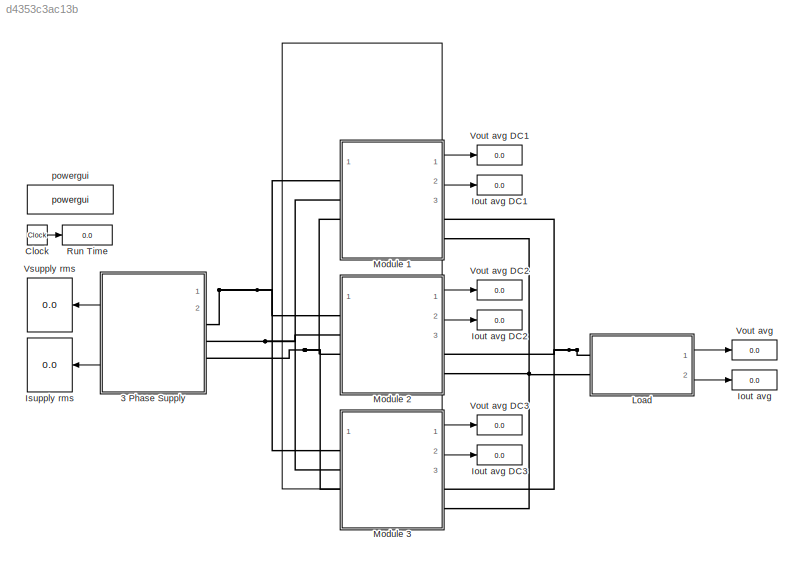
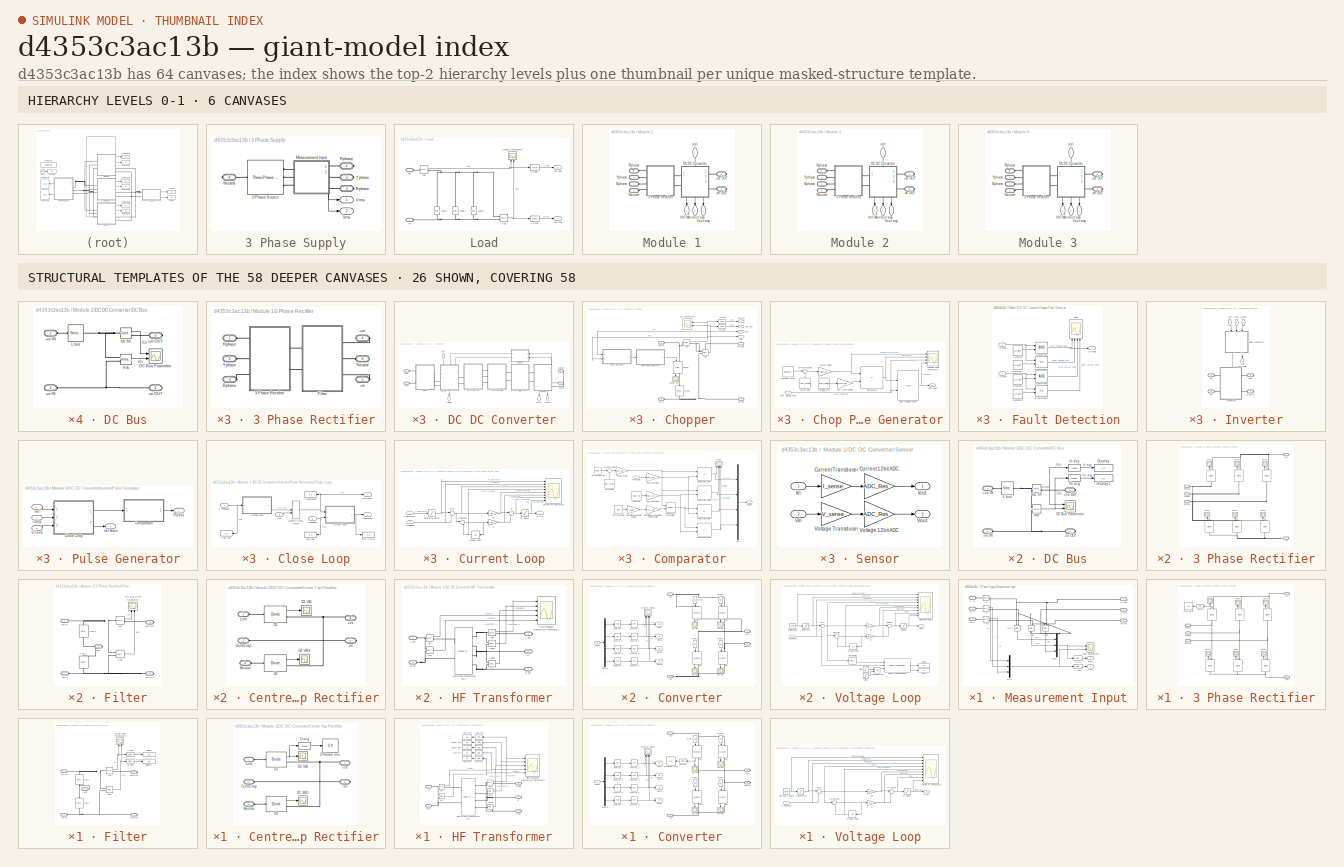
[diagram: thumbnail index - top-2 hierarchy levels (6 canvases) + 26 structural-template representatives of the remaining 58 canvases]
MODEL slx_d4353c3ac13b
KIND model
CONFIG AbsTol = auto
CONFIG EnableMultiTasking = off
CONFIG FixedStep = auto
CONFIG InitFcn = %Supply\nV_supply = 415;\nf_supply = 50;\n\n%DC_Bus\nC_filt = 220e-6\nL_dc = 100e-6;\nC_out = 560e-3;\n\n%Transformer\nP_TX = 10e3;\nV_pri = 36;\nV_sec = 1;\nL_leak = 0;\nR_leak = 0;\nL_mag = inf;\nR_mag = inf;\n\n%Control\nf_sw = 15e3;\ntss_conv = 0.1;\nV_ref = 1480;\nKp_V = 1;\nKi_V = 0.001;\nI_ref = 2920;\nKp_I = 0.025;\nKi_I = 0.000001;\nPS_max = 180;\nCarr_offset = 1;\nCarr_scale = 0.5;\nDuty_scale = 0.01;\nDuty_fix = 50;\n...<+399ch>
CONFIG MaxStep = 1e-5
CONFIG MinStep = 1e-7
CONFIG RelTol = 1e-6
CONFIG SampleTimeConstraint = Unconstrained
CONFIG Solver = ode3
CONFIG SolverName = ode3
CONFIG StartTime = 0.0
CONFIG StopTime = 0.4
BLOCK [SubSystem] 3 Phase Supply
  NameLocation = top
  PortSchema = {"entries":[{"content":{"sides":[{"content":{"connectorIds":["Out1","Out2"]},"type":"ConnectorPlacement.EquallySpacedRectSide","uuid":"0ec2aa27-c625-4e75-9974-9a1c04d8f7d1"},{"content":{"connectorIds":["RConn1","RConn2","RConn3","RConn4"],"side":"RIGHT"},"type":"ConnectorPlacement.EquallySpacedRectSide","uuid":"47308d37-cd5f-48af-b8fb-0231d0d207f3"},{"content":{"connectorIds":[],"side":"TOP"},"typ...<+423ch>
  Ports = [0, 2, 0, 0, 0, 0, 4]
  RequestExecContextInheritance = off
BLOCK [Reference] 3 Phase Supply/3 Phase Source  REF=powerlib/Electrical
Sources/Three-Phase
Programmable
Voltage Source
  NameLocation = top
  Ports = [0, 0, 0, 0, 0, 1, 3]
  SourceBlock = powerlib/Electrical\nSources/Three-Phase\nProgrammable\nVoltage Source
  SourceProductBaseCode = PS
  SourceType = Three-Phase Programmable Voltage Source
BLOCK [PMIOPort] 3 Phase Supply/Bphase
  NameLocation = right
  Port = 3
  Side = Right
BLOCK [Outport] 3 Phase Supply/Irms
  NameLocation = right
  Port = 2
BLOCK [SubSystem] 3 Phase Supply/Measurement Input
  NameLocation = top
  PortSchema = {"entries":[{"content":{"sides":[{"content":{"connectorIds":["LConn1","LConn2","LConn3"]},"type":"ConnectorPlacement.EquallySpacedRectSide","uuid":"3be9e5d9-1b35-404b-9f43-9e3a478b191c"},{"content":{"connectorIds":["RConn1","RConn2","RConn3"],"side":"RIGHT"},"type":"ConnectorPlacement.EquallySpacedRectSide","uuid":"eba31e05-cbe5-4e3c-a514-94f682603724"},{"content":{"connectorIds":[],"side":"TOP"},...<+440ch>
  Ports = [0, 2, 0, 0, 0, 3, 3]
  RequestExecContextInheritance = off
BLOCK [Reference] 3 Phase Supply/Measurement Input/I B  REF=powerlib/Measurements/Current Measurement
  Ports = [0, 1, 0, 0, 0, 1, 1]
  SourceBlock = powerlib/Measurements/Current Measurement
  SourceProductBaseCode = PS
  SourceType = Current Measurement
  UserDataPersistent = on
BLOCK [Reference] 3 Phase Supply/Measurement Input/I R  REF=powerlib/Measurements/Current Measurement
  Ports = [0, 1, 0, 0, 0, 1, 1]
  SourceBlock = powerlib/Measurements/Current Measurement
  SourceProductBaseCode = PS
  SourceType = Current Measurement
  UserDataPersistent = on
BLOCK [Reference] 3 Phase Supply/Measurement Input/I Y  REF=powerlib/Measurements/Current Measurement
  Ports = [0, 1, 0, 0, 0, 1, 1]
  SourceBlock = powerlib/Measurements/Current Measurement
  SourceProductBaseCode = PS
  SourceType = Current Measurement
  UserDataPersistent = on
BLOCK [Reference] 3 Phase Supply/Measurement Input/I rms  REF=powerlib_meascontrol/Measurements/RMS
  Ports = [1, 1]
  SourceBlock = powerlib_meascontrol/Measurements/RMS
  SourceProductBaseCode = PS
  SourceType = RMS
BLOCK [Scope] 3 Phase Supply/Measurement Input/Input Parameters
  Floating = off
  NameLocation = top
  NumInputPorts = 2
  Ports = [2]
  ScopeSpecificationString = Simulink.scopes.TimeScopeBlockCfg('CurrentConfiguration', extmgr.ConfigurationSet(extmgr.Configuration('Core','General UI',true),extmgr.Configuration('Core','Source UI',true),extmgr.Configuration('Sources','WiredSimulink',true,'DataLoggingVariableName','Supply','DataLogging',true,'DataLoggingSaveFormat','StructureWithTime'),extmgr.Configuration('Visuals','Time Domain',true,'SerializedDisplays',{st...<+2935ch>
BLOCK [Outport] 3 Phase Supply/Measurement Input/Irms
BLOCK [Mux] 3 Phase Supply/Measurement Input/Mux1
  DisplayOption = bar
  Inputs = 3
  Ports = [3, 1]
BLOCK [Mux] 3 Phase Supply/Measurement Input/Mux2
  DisplayOption = bar
  Inputs = 3
  Ports = [3, 1]
BLOCK [Reference] 3 Phase Supply/Measurement Input/V BR  REF=powerlib/Measurements/Voltage Measurement
  NameLocation = left
  Ports = [0, 1, 0, 0, 0, 2]
  SourceBlock = powerlib/Measurements/Voltage Measurement
  SourceProductBaseCode = PS
  SourceType = Voltage Measurement
  UserDataPersistent = on
BLOCK [Reference] 3 Phase Supply/Measurement Input/V RY  REF=powerlib/Measurements/Voltage Measurement
  NameLocation = left
  Ports = [0, 1, 0, 0, 0, 2]
  SourceBlock = powerlib/Measurements/Voltage Measurement
  SourceProductBaseCode = PS
  SourceType = Voltage Measurement
  UserDataPersistent = on
BLOCK [Reference] 3 Phase Supply/Measurement Input/V YB  REF=powerlib/Measurements/Voltage Measurement
  NameLocation = left
  Ports = [0, 1, 0, 0, 0, 2]
  SourceBlock = powerlib/Measurements/Voltage Measurement
  SourceProductBaseCode = PS
  SourceType = Voltage Measurement
  UserDataPersistent = on
BLOCK [Reference] 3 Phase Supply/Measurement Input/V rms  REF=powerlib_meascontrol/Measurements/RMS
  NameLocation = top
  Ports = [1, 1]
  SourceBlock = powerlib_meascontrol/Measurements/RMS
  SourceProductBaseCode = PS
  SourceType = RMS
BLOCK [PMIOPort] 3 Phase Supply/Measurement Input/Vb In
  Port = 3
  Side = Left
BLOCK [PMIOPort] 3 Phase Supply/Measurement Input/Vb Out
  Port = 6
  Side = Right
BLOCK [PMIOPort] 3 Phase Supply/Measurement Input/Vr In
  Side = Left
BLOCK [PMIOPort] 3 Phase Supply/Measurement Input/Vr Out
  Port = 4
  Side = Right
BLOCK [Outport] 3 Phase Supply/Measurement Input/Vrms
  Port = 2
BLOCK [PMIOPort] 3 Phase Supply/Measurement Input/Vy In
  Port = 2
  Side = Left
BLOCK [PMIOPort] 3 Phase Supply/Measurement Input/Vy Out
  Port = 5
  Side = Right
BLOCK [PMIOPort] 3 Phase Supply/Neutral
  Port = 4
  Side = Right
BLOCK [PMIOPort] 3 Phase Supply/Rphase
  NameLocation = right
  Side = Right
BLOCK [Outport] 3 Phase Supply/Vrms
  NameLocation = right
BLOCK [PMIOPort] 3 Phase Supply/Yphase
  NameLocation = right
  Port = 2
  Side = Right
BLOCK [Clock] Clock
BLOCK [Display] Iout avg
  Decimation = 1
  Ports = [1]
BLOCK [Display] Iout avg DC1
  Decimation = 1
  Ports = [1]
BLOCK [Display] Iout avg DC2
  Decimation = 1
  Ports = [1]
BLOCK [Display] Iout avg DC3
  Decimation = 1
  Ports = [1]
BLOCK [Display] Isupply rms
  Decimation = 1
  Ports = [1]
BLOCK [SubSystem] Load
  NameLocation = top
  Ports = [0, 2, 0, 0, 0, 2]
  RequestExecContextInheritance = off
BLOCK [PMIOPort] Load/+ve
  Side = Left
BLOCK [PMIOPort] Load/-ve
  Port = 2
  Side = Left
BLOCK [Reference] Load/Io avg  REF=powerlib_meascontrol/Measurements/Mean
  NameLocation = top
  Ports = [1, 1]
  SourceBlock = powerlib_meascontrol/Measurements/Mean
  SourceProductBaseCode = PS
  SourceType = Mean
BLOCK [Reference] Load/Iout  REF=powerlib/Measurements/Current Measurement
  NameLocation = top
  Ports = [0, 1, 0, 0, 0, 1, 1]
  SourceBlock = powerlib/Measurements/Current Measurement
  SourceProductBaseCode = PS
  SourceType = Current Measurement
  UserDataPersistent = on
BLOCK [Outport] Load/Iout avg
  Port = 2
BLOCK [Reference] Load/Load 1  REF=powerlib/Elements/Series RLC Branch
  NameLocation = right
  Ports = [0, 0, 0, 0, 0, 1, 1]
  SourceBlock = powerlib/Elements/Series RLC Branch
  SourceProductBaseCode = PS
  SourceType = Series RLC Branch
BLOCK [Reference] Load/Load 2  REF=powerlib/Elements/Series RLC Branch
  NameLocation = right
  Ports = [0, 0, 0, 0, 0, 1, 1]
  SourceBlock = powerlib/Elements/Series RLC Branch
  SourceProductBaseCode = PS
  SourceType = Series RLC Branch
BLOCK [Reference] Load/Load 3  REF=powerlib/Elements/Series RLC Branch
  NameLocation = right
  Ports = [0, 0, 0, 0, 0, 1, 1]
  SourceBlock = powerlib/Elements/Series RLC Branch
  SourceProductBaseCode = PS
  SourceType = Series RLC Branch
BLOCK [Scope] Load/Output Parameters
  Floating = off
  NameLocation = top
  NumInputPorts = 2
  Ports = [2]
  ScopeSpecificationString = Simulink.scopes.TimeScopeBlockCfg('CurrentConfiguration', extmgr.ConfigurationSet(extmgr.Configuration('Core','General UI',true),extmgr.Configuration('Core','Source UI',true),extmgr.Configuration('Sources','WiredSimulink',true,'DataLoggingVariableName','ScopeData1','DataLoggingSaveFormat','StructureWithTime'),extmgr.Configuration('Visuals','Time Domain',true,'SerializedDisplays',{struct('MinYLimRe...<+2388ch>
BLOCK [Reference] Load/Vo avg  REF=powerlib_meascontrol/Measurements/Mean
  NameLocation = top
  Ports = [1, 1]
  SourceBlock = powerlib_meascontrol/Measurements/Mean
  SourceProductBaseCode = PS
  SourceType = Mean
BLOCK [Reference] Load/Vout  REF=powerlib/Measurements/Voltage Measurement
  Ports = [0, 1, 0, 0, 0, 2]
  SourceBlock = powerlib/Measurements/Voltage Measurement
  SourceProductBaseCode = PS
  SourceType = Voltage Measurement
  UserDataPersistent = on
BLOCK [Outport] Load/Vout avg
BLOCK [SubSystem] Module 1
  NameLocation = top
  PortSchema = {"entries":[{"content":{"sides":[{"content":{"connectorIds":["LConn1","LConn2","LConn3","LConn4"]},"type":"ConnectorPlacement.EquallySpacedRectSide","uuid":"6cae0e2c-353b-4935-ad30-0e7f8192a6e9"},{"content":{"connectorIds":["Out1","Out2","RConn1","RConn2"],"side":"RIGHT"},"type":"ConnectorPlacement.EquallySpacedRectSide","uuid":"f189d0b5-f9e6-4211-8a45-ed2746b7bcfd"},{"content":{"connectorIds":["I...<+452ch>  <repeated x3 — deduplicated; at blocks: Module 1, Module 2, Module 3>
  Ports = [1, 3, 0, 0, 0, 4, 2]
  RequestExecContextInheritance = off
BLOCK [PMIOPort] Module 1/+ve OUT
  NameLocation = right
  Port = 4
  Side = Right
BLOCK [PMIOPort] Module 1/-ve OUT
  NameLocation = right
  Port = 5
  Side = Right
BLOCK [SubSystem] Module 1/3 Phase Rectifier
  NameLocation = top
  Ports = [0, 0, 0, 0, 0, 4, 2]
  RequestExecContextInheritance = off
BLOCK [PMIOPort] Module 1/3 Phase Rectifier/+ve
  Port = 4
  Side = Right
BLOCK [PMIOPort] Module 1/3 Phase Rectifier/-ve
  Port = 5
  Side = Right
BLOCK [SubSystem] Module 1/3 Phase Rectifier/3 Phase Rectifier
  NameLocation = top
  Ports = [0, 0, 0, 0, 0, 3, 2]
  RequestExecContextInheritance = off
BLOCK [PMIOPort] Module 1/3 Phase Rectifier/3 Phase Rectifier/+ve
  Port = 4
  Side = Right
BLOCK [PMIOPort] Module 1/3 Phase Rectifier/3 Phase Rectifier/-ve
  Port = 5
  Side = Right
BLOCK [PMIOPort] Module 1/3 Phase Rectifier/3 Phase Rectifier/B Phase
  Port = 3
  Side = Left
BLOCK [Reference] Module 1/3 Phase Rectifier/3 Phase Rectifier/D1  REF=powerlib/Power
Electronics/Diode
  NameLocation = right
  Ports = [0, 1, 0, 0, 0, 1, 1]
  SourceBlock = powerlib/Power\nElectronics/Diode
  SourceProductBaseCode = PS
  SourceType = Diode
BLOCK [Display] Module 1/3 Phase Rectifier/3 Phase Rectifier/D1 Param rms
  Decimation = 1
  NameLocation = top
  Ports = [1]
BLOCK [Scope] Module 1/3 Phase Rectifier/3 Phase Rectifier/D1 V&I
  Floating = off
  NameLocation = top
  NumInputPorts = 1
  Ports = [1]
  ScopeSpecificationString = Simulink.scopes.TimeScopeBlockCfg('CurrentConfiguration', extmgr.ConfigurationSet(extmgr.Configuration('Core','General UI',true),extmgr.Configuration('Core','Source UI',true),extmgr.Configuration('Sources','WiredSimulink',true,'DataLoggingVariableName','ScopeData7'),extmgr.Configuration('Visuals','Time Domain',true,'SerializedDisplays',{struct('MinYLimReal','-661.13918','MaxYLimReal','89.39128','Y...<+1406ch>  <repeated x3 — deduplicated; at blocks: D1 V&I>
BLOCK [Reference] Module 1/3 Phase Rectifier/3 Phase Rectifier/D1 rms  REF=powerlib_meascontrol/Measurements/RMS
  NameLocation = top
  Ports = [1, 1]
  SourceBlock = powerlib_meascontrol/Measurements/RMS
  SourceProductBaseCode = PS
  SourceType = RMS
BLOCK [Reference] Module 1/3 Phase Rectifier/3 Phase Rectifier/D2  REF=powerlib/Power
Electronics/Diode
  NameLocation = right
  Ports = [0, 1, 0, 0, 0, 1, 1]
  SourceBlock = powerlib/Power\nElectronics/Diode
  SourceProductBaseCode = PS
  SourceType = Diode
BLOCK [Scope] Module 1/3 Phase Rectifier/3 Phase Rectifier/D2 V&I
  Commented = on
  Floating = off
  NameLocation = top
  NumInputPorts = 1
  Ports = [1]
  ScopeSpecificationString = Simulink.scopes.TimeScopeBlockCfg('CurrentConfiguration', extmgr.ConfigurationSet(extmgr.Configuration('Core','General UI',true),extmgr.Configuration('Core','Source UI',true),extmgr.Configuration('Sources','WiredSimulink',true,'DataLoggingVariableName','ScopeData8'),extmgr.Configuration('Visuals','Time Domain',true,'SerializedDisplays',{struct('MinYLimReal','-661.15129','MaxYLimReal','89.39264','Y...<+1406ch>  <repeated x3 — deduplicated; at blocks: D2 V&I>
BLOCK [Reference] Module 1/3 Phase Rectifier/3 Phase Rectifier/D3  REF=powerlib/Power
Electronics/Diode
  NameLocation = right
  Ports = [0, 1, 0, 0, 0, 1, 1]
  SourceBlock = powerlib/Power\nElectronics/Diode
  SourceProductBaseCode = PS
  SourceType = Diode
BLOCK [Scope] Module 1/3 Phase Rectifier/3 Phase Rectifier/D3 V&I
  Commented = on
  Floating = off
  NameLocation = top
  NumInputPorts = 1
  Ports = [1]
  ScopeSpecificationString = Simulink.scopes.TimeScopeBlockCfg('CurrentConfiguration', extmgr.ConfigurationSet(extmgr.Configuration('Core','General UI',true),extmgr.Configuration('Core','Source UI',true),extmgr.Configuration('Sources','WiredSimulink',true,'DataLoggingVariableName','ScopeData9'),extmgr.Configuration('Visuals','Time Domain',true,'SerializedDisplays',{struct('MinYLimReal','-661.1513','MaxYLimReal','89.39265','YL...<+1402ch>  <repeated x3 — deduplicated; at blocks: D3 V&I>
BLOCK [Reference] Module 1/3 Phase Rectifier/3 Phase Rectifier/D4  REF=powerlib/Power
Electronics/Diode
  NameLocation = right
  Ports = [0, 1, 0, 0, 0, 1, 1]
  SourceBlock = powerlib/Power\nElectronics/Diode
  SourceProductBaseCode = PS
  SourceType = Diode
BLOCK [Scope] Module 1/3 Phase Rectifier/3 Phase Rectifier/D4 V&I
  Commented = on
  Floating = off
  NameLocation = top
  NumInputPorts = 1
  Ports = [1]
  ScopeSpecificationString = Simulink.scopes.TimeScopeBlockCfg('CurrentConfiguration', extmgr.ConfigurationSet(extmgr.Configuration('Core','General UI',true),extmgr.Configuration('Core','Source UI',true),extmgr.Configuration('Sources','WiredSimulink',true,'DataLoggingVariableName','ScopeData10'),extmgr.Configuration('Visuals','Time Domain',true),extmgr.Configuration('Tools','Plot Navigation',true),extmgr.Configuration('Tools'...<+41ch>  <repeated x3 — deduplicated; at blocks: D4 V&I>
BLOCK [Reference] Module 1/3 Phase Rectifier/3 Phase Rectifier/D5  REF=powerlib/Power
Electronics/Diode
  NameLocation = right
  Ports = [0, 1, 0, 0, 0, 1, 1]
  SourceBlock = powerlib/Power\nElectronics/Diode
  SourceProductBaseCode = PS
  SourceType = Diode
BLOCK [Scope] Module 1/3 Phase Rectifier/3 Phase Rectifier/D5 V&I
  Commented = on
  Floating = off
  NameLocation = top
  NumInputPorts = 1
  Ports = [1]
  ScopeSpecificationString = Simulink.scopes.TimeScopeBlockCfg('CurrentConfiguration', extmgr.ConfigurationSet(extmgr.Configuration('Core','General UI',true),extmgr.Configuration('Core','Source UI',true),extmgr.Configuration('Sources','WiredSimulink',true,'DataLoggingVariableName','ScopeData11'),extmgr.Configuration('Visuals','Time Domain',true,'SerializedDisplays',{struct('MinYLimReal','-661.13866','MaxYLimReal','89.39123','...<+1407ch>  <repeated x3 — deduplicated; at blocks: D5 V&I>
BLOCK [Reference] Module 1/3 Phase Rectifier/3 Phase Rectifier/D6  REF=powerlib/Power
Electronics/Diode
  NameLocation = right
  Ports = [0, 1, 0, 0, 0, 1, 1]
  SourceBlock = powerlib/Power\nElectronics/Diode
  SourceProductBaseCode = PS
  SourceType = Diode
BLOCK [Scope] Module 1/3 Phase Rectifier/3 Phase Rectifier/D6 V&I
  Commented = on
  Floating = off
  NameLocation = top
  NumInputPorts = 1
  Ports = [1]
  ScopeSpecificationString = Simulink.scopes.TimeScopeBlockCfg('CurrentConfiguration', extmgr.ConfigurationSet(extmgr.Configuration('Core','General UI',true),extmgr.Configuration('Core','Source UI',true),extmgr.Configuration('Sources','WiredSimulink',true,'DataLoggingVariableName','ScopeData12'),extmgr.Configuration('Visuals','Time Domain',true),extmgr.Configuration('Tools','Plot Navigation',true),extmgr.Configuration('Tools'...<+41ch>  <repeated x3 — deduplicated; at blocks: D6 V&I>
BLOCK [PMIOPort] Module 1/3 Phase Rectifier/3 Phase Rectifier/R Phase
  Side = Left
BLOCK [PMIOPort] Module 1/3 Phase Rectifier/3 Phase Rectifier/Y Phase
  Port = 2
  Side = Left
BLOCK [PMIOPort] Module 1/3 Phase Rectifier/Bphase
  Port = 3
  Side = Left
BLOCK [SubSystem] Module 1/3 Phase Rectifier/Filter
  NameLocation = top
  Ports = [0, 0, 0, 0, 0, 2, 3]
  RequestExecContextInheritance = off
BLOCK [PMIOPort] Module 1/3 Phase Rectifier/Filter/+ve IN
  Side = Left
BLOCK [PMIOPort] Module 1/3 Phase Rectifier/Filter/+ve OUT
  Port = 3
  Side = Right
BLOCK [PMIOPort] Module 1/3 Phase Rectifier/Filter/-ve In
  Port = 2
  Side = Left
BLOCK [PMIOPort] Module 1/3 Phase Rectifier/Filter/-ve OUT
  Port = 5
  Side = Right
BLOCK [Reference] Module 1/3 Phase Rectifier/Filter/Cdc 1  REF=powerlib/Elements/Series RLC Branch
  NameLocation = left
  Ports = [0, 0, 0, 0, 0, 1, 1]
  SourceBlock = powerlib/Elements/Series RLC Branch
  SourceProductBaseCode = PS
  SourceType = Series RLC Branch
BLOCK [Reference] Module 1/3 Phase Rectifier/Filter/Cdc 2  REF=powerlib/Elements/Series RLC Branch
  NameLocation = left
  Ports = [0, 0, 0, 0, 0, 1, 1]
  SourceBlock = powerlib/Elements/Series RLC Branch
  SourceProductBaseCode = PS
  SourceType = Series RLC Branch
BLOCK [Scope] Module 1/3 Phase Rectifier/Filter/DC Bus Filter Parameters
  Floating = off
  NameLocation = top
  NumInputPorts = 2
  Ports = [2]
  ScopeSpecificationString = Simulink.scopes.TimeScopeBlockCfg('CurrentConfiguration', extmgr.ConfigurationSet(extmgr.Configuration('Core','General UI',true),extmgr.Configuration('Core','Source UI',true),extmgr.Configuration('Sources','WiredSimulink',true,'DataLoggingVariableName','Output','DataLoggingSaveFormat','StructureWithTime'),extmgr.Configuration('Visuals','Time Domain',true,'SerializedDisplays',{struct('MinYLimReal',...<+2440ch>
BLOCK [Display] Module 1/3 Phase Rectifier/Filter/Display
  Decimation = 1
  NameLocation = top
  Ports = [1]
BLOCK [Display] Module 1/3 Phase Rectifier/Filter/Display1
  Decimation = 1
  Ports = [1]
BLOCK [Reference] Module 1/3 Phase Rectifier/Filter/Io avg  REF=powerlib_meascontrol/Measurements/Mean
  NameLocation = top
  Ports = [1, 1]
  SourceBlock = powerlib_meascontrol/Measurements/Mean
  SourceProductBaseCode = PS
  SourceType = Mean
BLOCK [Reference] Module 1/3 Phase Rectifier/Filter/Iout  REF=powerlib/Measurements/Current Measurement
  Ports = [0, 1, 0, 0, 0, 1, 1]
  SourceBlock = powerlib/Measurements/Current Measurement
  SourceProductBaseCode = PS
  SourceType = Current Measurement
  UserDataPersistent = on
BLOCK [PMIOPort] Module 1/3 Phase Rectifier/Filter/Mid
  Port = 4
  Side = Right
BLOCK [Reference] Module 1/3 Phase Rectifier/Filter/Vo avg  REF=powerlib_meascontrol/Measurements/Mean
  Ports = [1, 1]
  SourceBlock = powerlib_meascontrol/Measurements/Mean
  SourceProductBaseCode = PS
  SourceType = Mean
BLOCK [Reference] Module 1/3 Phase Rectifier/Filter/Vout  REF=powerlib/Measurements/Voltage Measurement
  Ports = [0, 1, 0, 0, 0, 2]
  SourceBlock = powerlib/Measurements/Voltage Measurement
  SourceProductBaseCode = PS
  SourceType = Voltage Measurement
  UserDataPersistent = on
BLOCK [PMIOPort] Module 1/3 Phase Rectifier/Neutral
  Port = 6
  Side = Left
BLOCK [PMIOPort] Module 1/3 Phase Rectifier/Rphase
  Side = Left
BLOCK [PMIOPort] Module 1/3 Phase Rectifier/Yphase
  Port = 2
  Side = Left
BLOCK [PMIOPort] Module 1/Bphase
  NameLocation = left
  Port = 3
  Side = Left
BLOCK [SubSystem] Module 1/DC DC Converter
  NameLocation = top
  PortSchema = {"entries":[{"content":{"sides":[{"content":{"connectorIds":["LConn1","LConn2"]},"type":"ConnectorPlacement.EquallySpacedRectSide","uuid":"37f51f67-5e78-4255-afaf-84866755c3fb"},{"content":{"connectorIds":["RConn1","RConn2"],"side":"RIGHT"},"type":"ConnectorPlacement.EquallySpacedRectSide","uuid":"2b53282d-d294-4b9e-9ae3-da15b818eb82"},{"content":{"connectorIds":["In1"],"side":"TOP"},"type":"Conne...<+434ch>  <repeated x3 — deduplicated; at blocks: DC DC Converter>
  Ports = [1, 3, 0, 0, 0, 2, 2]
  RequestExecContextInheritance = off
BLOCK [PMIOPort] Module 1/DC DC Converter/+ve IN
  NameLocation = top
  Side = Left
BLOCK [PMIOPort] Module 1/DC DC Converter/+ve OUT
  NameLocation = top
  Port = 3
  Side = Right
BLOCK [PMIOPort] Module 1/DC DC Converter/-ve IN
  NameLocation = top
  Port = 2
  Side = Left
BLOCK [PMIOPort] Module 1/DC DC Converter/-ve OUT
  NameLocation = top
  Port = 4
  Side = Right
BLOCK [SubSystem] Module 1/DC DC Converter/Centre Tap Rectifier
  Ports = [0, 0, 0, 0, 0, 3, 2]
  RequestExecContextInheritance = off
BLOCK [PMIOPort] Module 1/DC DC Converter/Centre Tap Rectifier/+ve
  Port = 4
  Side = Right
BLOCK [PMIOPort] Module 1/DC DC Converter/Centre Tap Rectifier/-ve
  Port = 5
  Side = Right
BLOCK [PMIOPort] Module 1/DC DC Converter/Centre Tap Rectifier/Centre-tap
  Port = 2
  Side = Left
BLOCK [Display] Module 1/DC DC Converter/Centre Tap Rectifier/D Param rms
  Decimation = 1
  NameLocation = top
  Ports = [1]
BLOCK [Reference] Module 1/DC DC Converter/Centre Tap Rectifier/D avg  REF=powerlib_meascontrol/Measurements/Mean
  NameLocation = top
  Ports = [1, 1]
  SourceBlock = powerlib_meascontrol/Measurements/Mean
  SourceProductBaseCode = PS
  SourceType = Mean
BLOCK [Reference] Module 1/DC DC Converter/Centre Tap Rectifier/D1  REF=powerlib/Power
Electronics/Diode
  Ports = [0, 1, 0, 0, 0, 1, 1]
  SourceBlock = powerlib/Power\nElectronics/Diode
  SourceProductBaseCode = PS
  SourceType = Diode
BLOCK [Scope] Module 1/DC DC Converter/Centre Tap Rectifier/D1 V&I
  Floating = off
  NameLocation = right
  NumInputPorts = 1
  Ports = [1]
  ScopeSpecificationString = Simulink.scopes.TimeScopeBlockCfg('CurrentConfiguration', extmgr.ConfigurationSet(extmgr.Configuration('Core','General UI',true),extmgr.Configuration('Core','Source UI',true),extmgr.Configuration('Sources','WiredSimulink',true,'DataLoggingVariableName','ScopeData5'),extmgr.Configuration('Visuals','Time Domain',true,'SerializedDisplays',{struct('MinYLimReal','-273.94697','MaxYLimReal','372.07361','...<+1414ch>  <repeated x3 — deduplicated; at blocks: D1 V&I>
BLOCK [Reference] Module 1/DC DC Converter/Centre Tap Rectifier/D2  REF=powerlib/Power
Electronics/Diode
  Ports = [0, 1, 0, 0, 0, 1, 1]
  SourceBlock = powerlib/Power\nElectronics/Diode
  SourceProductBaseCode = PS
  SourceType = Diode
BLOCK [Scope] Module 1/DC DC Converter/Centre Tap Rectifier/D2 V&I1
  Commented = on
  Floating = off
  NameLocation = right
  NumInputPorts = 1
  Ports = [1]
  ScopeSpecificationString = Simulink.scopes.TimeScopeBlockCfg('CurrentConfiguration', extmgr.ConfigurationSet(extmgr.Configuration('Core','General UI',true),extmgr.Configuration('Core','Source UI',true),extmgr.Configuration('Sources','WiredSimulink',true,'DataLoggingVariableName','ScopeData6'),extmgr.Configuration('Visuals','Time Domain',true,'SerializedDisplays',{struct('MinYLimReal','-273.94659','MaxYLimReal','372.07421','...<+1416ch>  <repeated x3 — deduplicated; at blocks: D2 V&I1>
BLOCK [PMIOPort] Module 1/DC DC Converter/Centre Tap Rectifier/Line
  Side = Left
BLOCK [PMIOPort] Module 1/DC DC Converter/Centre Tap Rectifier/Neutral
  Port = 3
  Side = Left
BLOCK [SubSystem] Module 1/DC DC Converter/Chopper
  PortSchema = {"entries":[{"content":{"sides":[{"content":{"connectorIds":["LConn1","LConn2"]},"type":"ConnectorPlacement.EquallySpacedRectSide","uuid":"27b0ffc8-d442-4d0b-b35b-d90ae246715a"},{"content":{"connectorIds":["RConn1","RConn2"],"side":"RIGHT"},"type":"ConnectorPlacement.EquallySpacedRectSide","uuid":"032ddb76-2114-4733-a261-6d5dce4f9c1e"},{"content":{"connectorIds":["Out3","Out4"],"side":"TOP"},"type...<+435ch>  <repeated x3 — deduplicated; at blocks: Chopper>
  Ports = [0, 4, 0, 0, 0, 2, 2]
  RequestExecContextInheritance = off
BLOCK [Outport] Module 1/DC DC Converter/Chopper/ Idc
  NameLocation = right
  Port = 4
BLOCK [PMIOPort] Module 1/DC DC Converter/Chopper/+ve IN
  Side = Left
BLOCK [PMIOPort] Module 1/DC DC Converter/Chopper/+ve OUT
  NameLocation = top
  Port = 3
  Side = Right
BLOCK [PMIOPort] Module 1/DC DC Converter/Chopper/-ve IN
  Port = 2
  Side = Left
BLOCK [PMIOPort] Module 1/DC DC Converter/Chopper/-ve OUT
  NameLocation = top
  Port = 4
  Side = Right
BLOCK [SubSystem] Module 1/DC DC Converter/Chopper/Chop Pulse Generator
  Ports = [1, 1]
  RequestExecContextInheritance = off
BLOCK [Constant] Module 1/DC DC Converter/Chopper/Chop Pulse Generator/Carrier Bias
  Value = Carr_offset
BLOCK [Gain] Module 1/DC DC Converter/Chopper/Chop Pulse Generator/Carrier Scaling
  Gain = Carr_scale
  NameLocation = top
BLOCK [Outport] Module 1/DC DC Converter/Chopper/Chop Pulse Generator/Chop Pulse
  NameLocation = top
BLOCK [Reference] Module 1/DC DC Converter/Chopper/Chop Pulse Generator/Chopping Carrier  REF=powerlib_meascontrol/Pulse & Signal
Generators/Sawtooth
Generator
  NameLocation = top
  Ports = [0, 1]
  SourceBlock = powerlib_meascontrol/Pulse & Signal\nGenerators/Sawtooth\nGenerator
  SourceProductBaseCode = PS
  SourceType = Sawtooth Generator
BLOCK [Constant] Module 1/DC DC Converter/Chopper/Chop Pulse Generator/Chopping Duty Cycle
  Value = Duty_chop
BLOCK [Scope] Module 1/DC DC Converter/Chopper/Chop Pulse Generator/Chopping Pulse Parameters
  Commented = on
  Floating = off
  NameLocation = top
  NumInputPorts = 4
  Ports = [4]
  ScopeSpecificationString = Simulink.scopes.TimeScopeBlockCfg('CurrentConfiguration', extmgr.ConfigurationSet(extmgr.Configuration('Core','General UI',true),extmgr.Configuration('Core','Source UI',true),extmgr.Configuration('Sources','WiredSimulink',true,'DataLoggingVariableName','ScopeData4'),extmgr.Configuration('Visuals','Time Domain',true,'SerializedDisplays',{struct('MinYLimReal','-0.125','MaxYLimReal','1.125','YLabelRe...<+3444ch>  <repeated x3 — deduplicated; at blocks: Chopping Pulse Parameters>
BLOCK [RelationalOperator] Module 1/DC DC Converter/Chopper/Chop Pulse Generator/Comparator
  InputSameDT = off
  NameLocation = top
  Operator = <=
  OutDataTypeStr = boolean
  Ports = [2, 1]
  RndMeth = Simplest
BLOCK [Gain] Module 1/DC DC Converter/Chopper/Chop Pulse Generator/Duty Cycle Scaling
  Gain = Duty_scale
BLOCK [Logic] Module 1/DC DC Converter/Chopper/Chop Pulse Generator/Fault Condition Check
  AllPortsSameDT = off
  IconShape = distinctive
  NameLocation = top
  OutDataTypeStr = boolean
  Ports = [2, 1]
BLOCK [Sum] Module 1/DC DC Converter/Chopper/Chop Pulse Generator/Level Correction
  Inputs = |++
  NameLocation = top
  Ports = [2, 1]
BLOCK [Inport] Module 1/DC DC Converter/Chopper/Chop Pulse Generator/Over Voltage Fault
  NameLocation = top
BLOCK [SubSystem] Module 1/DC DC Converter/Chopper/Fault Detection
  Ports = [2, 1]
  RequestExecContextInheritance = off
BLOCK [Constant] Module 1/DC DC Converter/Chopper/Fault Detection/Constant
  Value = OV_limit
BLOCK [Constant] Module 1/DC DC Converter/Chopper/Fault Detection/Constant1
  Value = UV_limit
BLOCK [Constant] Module 1/DC DC Converter/Chopper/Fault Detection/Constant2
  Value = OC_limit
BLOCK [Constant] Module 1/DC DC Converter/Chopper/Fault Detection/Constant3
  Value = UC_limit
BLOCK [Scope] Module 1/DC DC Converter/Chopper/Fault Detection/Faults
  Commented = on
  Floating = off
  NameLocation = top
  NumInputPorts = 4
  Ports = [4]
  ScopeSpecificationString = Simulink.scopes.TimeScopeBlockCfg('CurrentConfiguration', extmgr.ConfigurationSet(extmgr.Configuration('Core','General UI',true),extmgr.Configuration('Core','Source UI',true),extmgr.Configuration('Sources','WiredSimulink',true,'DataLoggingVariableName','ScopeData2'),extmgr.Configuration('Visuals','Time Domain',true,'SerializedDisplays',{struct('MinYLimReal','-1.00000','MaxYLimReal','1.00000','YLab...<+3662ch>  <repeated x3 — deduplicated; at blocks: Faults>
BLOCK [RelationalOperator] Module 1/DC DC Converter/Chopper/Fault Detection/GreaterThan
  InputSameDT = off
  OutDataTypeStr = boolean
  Ports = [2, 1]
  RndMeth = Simplest
BLOCK [RelationalOperator] Module 1/DC DC Converter/Chopper/Fault Detection/GreaterThan1
  InputSameDT = off
  Operator = <=
  OutDataTypeStr = boolean
  Ports = [2, 1]
  RndMeth = Simplest
BLOCK [RelationalOperator] Module 1/DC DC Converter/Chopper/Fault Detection/GreaterThan2
  InputSameDT = off
  OutDataTypeStr = boolean
  Ports = [2, 1]
  RndMeth = Simplest
BLOCK [RelationalOperator] Module 1/DC DC Converter/Chopper/Fault Detection/GreaterThan3
  InputSameDT = off
  Operator = <=
  OutDataTypeStr = boolean
  Ports = [2, 1]
  RndMeth = Simplest
BLOCK [Inport] Module 1/DC DC Converter/Chopper/Fault Detection/I Output
  Port = 2
BLOCK [Outport] Module 1/DC DC Converter/Chopper/Fault Detection/OV Fault
BLOCK [Inport] Module 1/DC DC Converter/Chopper/Fault Detection/V Output
BLOCK [Outport] Module 1/DC DC Converter/Chopper/Idc avg
  NameLocation = right
BLOCK [Reference] Module 1/DC DC Converter/Chopper/Io avg  REF=powerlib_meascontrol/Measurements/Mean
  NameLocation = top
  Ports = [1, 1]
  SourceBlock = powerlib_meascontrol/Measurements/Mean
  SourceProductBaseCode = PS
  SourceType = Mean
BLOCK [Reference] Module 1/DC DC Converter/Chopper/Iout  REF=powerlib/Measurements/Current Measurement
  Ports = [0, 1, 0, 0, 0, 1, 1]
  SourceBlock = powerlib/Measurements/Current Measurement
  SourceProductBaseCode = PS
  SourceType = Current Measurement
  UserDataPersistent = on
BLOCK [Scope] Module 1/DC DC Converter/Chopper/Out Parameters
  Floating = off
  NameLocation = top
  NumInputPorts = 2
  Ports = [2]
  ScopeSpecificationString = Simulink.scopes.TimeScopeBlockCfg('CurrentConfiguration', extmgr.ConfigurationSet(extmgr.Configuration('Core','General UI',true),extmgr.Configuration('Core','Source UI',true),extmgr.Configuration('Sources','WiredSimulink',true,'DataLoggingVariableName','Output','DataLoggingSaveFormat','StructureWithTime'),extmgr.Configuration('Visuals','Time Domain',true,'SerializedDisplays',{struct('MinYLimReal',...<+2414ch>
BLOCK [Reference] Module 1/DC DC Converter/Chopper/Qchop  REF=powerlib/Power
Electronics/IGBT
  NameLocation = left
  Ports = [1, 1, 0, 0, 0, 1, 1]
  SourceBlock = powerlib/Power\nElectronics/IGBT
  SourceProductBaseCode = PS
  SourceType = IGBT
BLOCK [Scope] Module 1/DC DC Converter/Chopper/Qchop V&I
  Commented = on
  Floating = off
  NumInputPorts = 1
  Ports = [1]
  ScopeSpecificationString = Simulink.scopes.TimeScopeBlockCfg('CurrentConfiguration', extmgr.ConfigurationSet(extmgr.Configuration('Core','General UI',true),extmgr.Configuration('Core','Source UI',true),extmgr.Configuration('Sources','WiredSimulink',true,'DataLoggingVariableName','ScopeData3'),extmgr.Configuration('Visuals','Time Domain',true,'SerializedDisplays',{struct('MinYLimReal','-21.70339','MaxYLimReal','195.33055','Y...<+1510ch>  <repeated x3 — deduplicated; at blocks: Qchop V&I>
BLOCK [Reference] Module 1/DC DC Converter/Chopper/Rchop  REF=powerlib/Elements/Series RLC Branch
  NameLocation = left
  Ports = [0, 0, 0, 0, 0, 1, 1]
  SourceBlock = powerlib/Elements/Series RLC Branch
  SourceProductBaseCode = PS
  SourceType = Series RLC Branch
BLOCK [Outport] Module 1/DC DC Converter/Chopper/Vdc
  NameLocation = right
  Port = 3
BLOCK [Outport] Module 1/DC DC Converter/Chopper/Vdc avg
  NameLocation = right
  Port = 2
BLOCK [Reference] Module 1/DC DC Converter/Chopper/Vo avg  REF=powerlib_meascontrol/Measurements/Mean
  Ports = [1, 1]
  SourceBlock = powerlib_meascontrol/Measurements/Mean
  SourceProductBaseCode = PS
  SourceType = Mean
BLOCK [Reference] Module 1/DC DC Converter/Chopper/Vout  REF=powerlib/Measurements/Voltage Measurement
  Ports = [0, 1, 0, 0, 0, 2]
  SourceBlock = powerlib/Measurements/Voltage Measurement
  SourceProductBaseCode = PS
  SourceType = Voltage Measurement
  UserDataPersistent = on
BLOCK [SubSystem] Module 1/DC DC Converter/DC Bus
  Ports = [0, 0, 0, 0, 0, 2, 2]
  RequestExecContextInheritance = off
BLOCK [PMIOPort] Module 1/DC DC Converter/DC Bus/+ve IN
  Side = Left
BLOCK [PMIOPort] Module 1/DC DC Converter/DC Bus/+ve OUT
  Port = 3
  Side = Right
BLOCK [PMIOPort] Module 1/DC DC Converter/DC Bus/-ve IN
  Port = 2
  Side = Left
BLOCK [PMIOPort] Module 1/DC DC Converter/DC Bus/-ve OUT
  Port = 4
  Side = Right
BLOCK [Scope] Module 1/DC DC Converter/DC Bus/DC Bus Parameter
  Floating = off
  NumInputPorts = 2
  Ports = [2]
  ScopeSpecificationString = Simulink.scopes.TimeScopeBlockCfg('CurrentConfiguration', extmgr.ConfigurationSet(extmgr.Configuration('Core','General UI',true),extmgr.Configuration('Core','Source UI',true),extmgr.Configuration('Sources','WiredSimulink',true,'DataLoggingVariableName','ScopeData2'),extmgr.Configuration('Visuals','Time Domain',true,'SerializedDisplays',{struct('MinYLimReal','-463.93129','MaxYLimReal','4175.38441',...<+1532ch>  <repeated x3 — deduplicated; at blocks: DC Bus Parameter>
BLOCK [Display] Module 1/DC DC Converter/DC Bus/Display
  Decimation = 1
  NameLocation = top
  Ports = [1]
BLOCK [Display] Module 1/DC DC Converter/DC Bus/Display1
  Decimation = 1
  Ports = [1]
BLOCK [Reference] Module 1/DC DC Converter/DC Bus/Idc filt  REF=powerlib/Measurements/Current Measurement
  NameLocation = top
  Ports = [0, 1, 0, 0, 0, 1, 1]
  SourceBlock = powerlib/Measurements/Current Measurement
  SourceProductBaseCode = PS
  SourceType = Current Measurement
  UserDataPersistent = on
BLOCK [Reference] Module 1/DC DC Converter/DC Bus/Io avg  REF=powerlib_meascontrol/Measurements/Mean
  NameLocation = top
  Ports = [1, 1]
  SourceBlock = powerlib_meascontrol/Measurements/Mean
  SourceProductBaseCode = PS
  SourceType = Mean
BLOCK [Reference] Module 1/DC DC Converter/DC Bus/L bus  REF=powerlib/Elements/Series RLC Branch
  Ports = [0, 0, 0, 0, 0, 1, 1]
  SourceBlock = powerlib/Elements/Series RLC Branch
  SourceProductBaseCode = PS
  SourceType = Series RLC Branch
BLOCK [Reference] Module 1/DC DC Converter/DC Bus/Vdc  REF=powerlib/Measurements/Voltage Measurement
  Ports = [0, 1, 0, 0, 0, 2]
  SourceBlock = powerlib/Measurements/Voltage Measurement
  SourceProductBaseCode = PS
  SourceType = Voltage Measurement
  UserDataPersistent = on
BLOCK [Reference] Module 1/DC DC Converter/DC Bus/Vo avg  REF=powerlib_meascontrol/Measurements/Mean
  Ports = [1, 1]
  SourceBlock = powerlib_meascontrol/Measurements/Mean
  SourceProductBaseCode = PS
  SourceType = Mean
BLOCK [SubSystem] Module 1/DC DC Converter/Filter
  Ports = [0, 0, 0, 0, 0, 2, 2]
  RequestExecContextInheritance = off
BLOCK [PMIOPort] Module 1/DC DC Converter/Filter/+ve IN
  Side = Left
BLOCK [PMIOPort] Module 1/DC DC Converter/Filter/+ve OUT
  Port = 3
  Side = Right
BLOCK [PMIOPort] Module 1/DC DC Converter/Filter/-ve IN
  Port = 2
  Side = Left
BLOCK [PMIOPort] Module 1/DC DC Converter/Filter/-ve OUT
  Port = 4
  Side = Right
BLOCK [Reference] Module 1/DC DC Converter/Filter/C out  REF=powerlib/Elements/Series RLC Branch
  NameLocation = right
  Ports = [0, 0, 0, 0, 0, 1, 1]
  SourceBlock = powerlib/Elements/Series RLC Branch
  SourceProductBaseCode = PS
  SourceType = Series RLC Branch
BLOCK [Display] Module 1/DC DC Converter/Filter/Display
  Decimation = 1
  NameLocation = top
  Ports = [1]
BLOCK [Display] Module 1/DC DC Converter/Filter/Display1
  Decimation = 1
  Ports = [1]
BLOCK [Reference] Module 1/DC DC Converter/Filter/I C Filter  REF=powerlib/Measurements/Current Measurement
  NameLocation = left
  Ports = [0, 1, 0, 0, 0, 1, 1]
  SourceBlock = powerlib/Measurements/Current Measurement
  SourceProductBaseCode = PS
  SourceType = Current Measurement
  UserDataPersistent = on
BLOCK [Reference] Module 1/DC DC Converter/Filter/I out  REF=powerlib/Measurements/Current Measurement
  Ports = [0, 1, 0, 0, 0, 1, 1]
  SourceBlock = powerlib/Measurements/Current Measurement
  SourceProductBaseCode = PS
  SourceType = Current Measurement
  UserDataPersistent = on
BLOCK [Reference] Module 1/DC DC Converter/Filter/Io avg  REF=powerlib_meascontrol/Measurements/Mean
  Ports = [1, 1]
  SourceBlock = powerlib_meascontrol/Measurements/Mean
  SourceProductBaseCode = PS
  SourceType = Mean
BLOCK [Scope] Module 1/DC DC Converter/Filter/Output Filter Parameters
  Floating = off
  NumInputPorts = 2
  Ports = [2]
  ScopeSpecificationString = Simulink.scopes.TimeScopeBlockCfg('CurrentConfiguration', extmgr.ConfigurationSet(extmgr.Configuration('Core','General UI',true),extmgr.Configuration('Core','Source UI',true),extmgr.Configuration('Sources','WiredSimulink',true,'DataLoggingVariableName','ScopeData1'),extmgr.Configuration('Visuals','Time Domain',true,'SerializedDisplays',{struct('MinYLimReal','-62.98774','MaxYLimReal','566.8897','YL...<+1980ch>
BLOCK [Reference] Module 1/DC DC Converter/Filter/Vo avg  REF=powerlib_meascontrol/Measurements/Mean
  NameLocation = top
  Ports = [1, 1]
  SourceBlock = powerlib_meascontrol/Measurements/Mean
  SourceProductBaseCode = PS
  SourceType = Mean
BLOCK [SubSystem] Module 1/DC DC Converter/HF Transformer
  Ports = [0, 0, 0, 0, 0, 2, 3]
  RequestExecContextInheritance = off
BLOCK [PMIOPort] Module 1/DC DC Converter/HF Transformer/CT
  Port = 4
  Side = Right
BLOCK [Reference] Module 1/DC DC Converter/HF Transformer/Centre-Tap Transformer 40:1  REF=powerlib/Elements/Linear Transformer
  Ports = [0, 0, 0, 0, 0, 2, 4]
  SourceBlock = powerlib/Elements/Linear Transformer
  SourceProductBaseCode = PS
  SourceType = Linear Transformer
BLOCK [Scope] Module 1/DC DC Converter/HF Transformer/High Frequency Transformer Parameters
  Floating = off
  NumInputPorts = 5
  Ports = [5]
  ScopeSpecificationString = Simulink.scopes.TimeScopeBlockCfg('CurrentConfiguration', extmgr.ConfigurationSet(extmgr.Configuration('Core','General UI',true),extmgr.Configuration('Core','Source UI',true),extmgr.Configuration('Sources','WiredSimulink',true,'DataLoggingVariableName','ScopeData1'),extmgr.Configuration('Visuals','Time Domain',true),extmgr.Configuration('Tools','Plot Navigation',true),extmgr.Configuration('Tools',...<+40ch>  <repeated x3 — deduplicated; at blocks: High Frequency Transformer Parameters>
BLOCK [Reference] Module 1/DC DC Converter/HF Transformer/I pri rms  REF=powerlib_meascontrol/Measurements/RMS
  NameLocation = right
  Ports = [1, 1]
  SourceBlock = powerlib_meascontrol/Measurements/RMS
  SourceProductBaseCode = PS
  SourceType = RMS
BLOCK [Reference] Module 1/DC DC Converter/HF Transformer/I sec rms  REF=powerlib_meascontrol/Measurements/RMS
  NameLocation = right
  Ports = [1, 1]
  SourceBlock = powerlib_meascontrol/Measurements/RMS
  SourceProductBaseCode = PS
  SourceType = RMS
BLOCK [Reference] Module 1/DC DC Converter/HF Transformer/Ipri  REF=powerlib/Measurements/Current Measurement
  NameLocation = top
  Ports = [0, 1, 0, 0, 0, 1, 1]
  SourceBlock = powerlib/Measurements/Current Measurement
  SourceProductBaseCode = PS
  SourceType = Current Measurement
  UserDataPersistent = on
BLOCK [Display] Module 1/DC DC Converter/HF Transformer/Ipri rms
  Decimation = 1
  NameLocation = left
  Ports = [1]
BLOCK [Reference] Module 1/DC DC Converter/HF Transformer/Isec  REF=powerlib/Measurements/Current Measurement
  NameLocation = top
  Ports = [0, 1, 0, 0, 0, 1, 1]
  SourceBlock = powerlib/Measurements/Current Measurement
  SourceProductBaseCode = PS
  SourceType = Current Measurement
  UserDataPersistent = on
BLOCK [Display] Module 1/DC DC Converter/HF Transformer/Isec rms
  Decimation = 1
  NameLocation = left
  Ports = [1]
BLOCK [PMIOPort] Module 1/DC DC Converter/HF Transformer/L pri
  Side = Left
BLOCK [PMIOPort] Module 1/DC DC Converter/HF Transformer/L sec
  Port = 3
  Side = Right
BLOCK [PMIOPort] Module 1/DC DC Converter/HF Transformer/N pri
  Port = 2
  Side = Left
BLOCK [PMIOPort] Module 1/DC DC Converter/HF Transformer/N sec
  Port = 5
  Side = Right
BLOCK [Reference] Module 1/DC DC Converter/HF Transformer/V pri rms  REF=powerlib_meascontrol/Measurements/RMS
  NameLocation = right
  Ports = [1, 1]
  SourceBlock = powerlib_meascontrol/Measurements/RMS
  SourceProductBaseCode = PS
  SourceType = RMS
BLOCK [Reference] Module 1/DC DC Converter/HF Transformer/V sec1 rms  REF=powerlib_meascontrol/Measurements/RMS
  NameLocation = right
  Ports = [1, 1]
  SourceBlock = powerlib_meascontrol/Measurements/RMS
  SourceProductBaseCode = PS
  SourceType = RMS
BLOCK [Reference] Module 1/DC DC Converter/HF Transformer/V sec2 rms  REF=powerlib_meascontrol/Measurements/RMS
  NameLocation = right
  Ports = [1, 1]
  SourceBlock = powerlib_meascontrol/Measurements/RMS
  SourceProductBaseCode = PS
  SourceType = RMS
BLOCK [Reference] Module 1/DC DC Converter/HF Transformer/Vpri  REF=powerlib/Measurements/Voltage Measurement
  NameLocation = top
  Ports = [0, 1, 0, 0, 0, 2]
  SourceBlock = powerlib/Measurements/Voltage Measurement
  SourceProductBaseCode = PS
  SourceType = Voltage Measurement
  UserDataPersistent = on
BLOCK [Display] Module 1/DC DC Converter/HF Transformer/Vpri rms
  Decimation = 1
  NameLocation = left
  Ports = [1]
BLOCK [Reference] Module 1/DC DC Converter/HF Transformer/Vsec1  REF=powerlib/Measurements/Voltage Measurement
  NameLocation = top
  Ports = [0, 1, 0, 0, 0, 2]
  SourceBlock = powerlib/Measurements/Voltage Measurement
  SourceProductBaseCode = PS
  SourceType = Voltage Measurement
  UserDataPersistent = on
BLOCK [Display] Module 1/DC DC Converter/HF Transformer/Vsec1 rms
  Decimation = 1
  NameLocation = left
  Ports = [1]
BLOCK [Reference] Module 1/DC DC Converter/HF Transformer/Vsec2  REF=powerlib/Measurements/Voltage Measurement
  NameLocation = top
  Ports = [0, 1, 0, 0, 0, 2]
  SourceBlock = powerlib/Measurements/Voltage Measurement
  SourceProductBaseCode = PS
  SourceType = Voltage Measurement
  UserDataPersistent = on
BLOCK [Display] Module 1/DC DC Converter/HF Transformer/Vsec2 rms
  Decimation = 1
  NameLocation = left
  Ports = [1]
BLOCK [Outport] Module 1/DC DC Converter/Idc avg
  Port = 2
BLOCK [SubSystem] Module 1/DC DC Converter/Inverter
  PortSchema = {"entries":[{"content":{"sides":[{"content":{"connectorIds":["LConn1","LConn2"]},"type":"ConnectorPlacement.EquallySpacedRectSide","uuid":"f6e7bef4-cb5f-453b-95e0-57d178fdcdab"},{"content":{"connectorIds":["RConn1","RConn2"],"side":"RIGHT"},"type":"ConnectorPlacement.EquallySpacedRectSide","uuid":"145c04da-1f90-4c9a-a0a3-45235f26f3c1"},{"content":{"connectorIds":["In1","In2","In3"],"side":"TOP"},"...<+432ch>  <repeated x3 — deduplicated; at blocks: Inverter>
  Ports = [3, 1, 0, 0, 0, 2, 2]
  RequestExecContextInheritance = off
BLOCK [PMIOPort] Module 1/DC DC Converter/Inverter/+ve
  NameLocation = top
  Side = Left
BLOCK [PMIOPort] Module 1/DC DC Converter/Inverter/-ve
  NameLocation = top
  Port = 2
  Side = Left
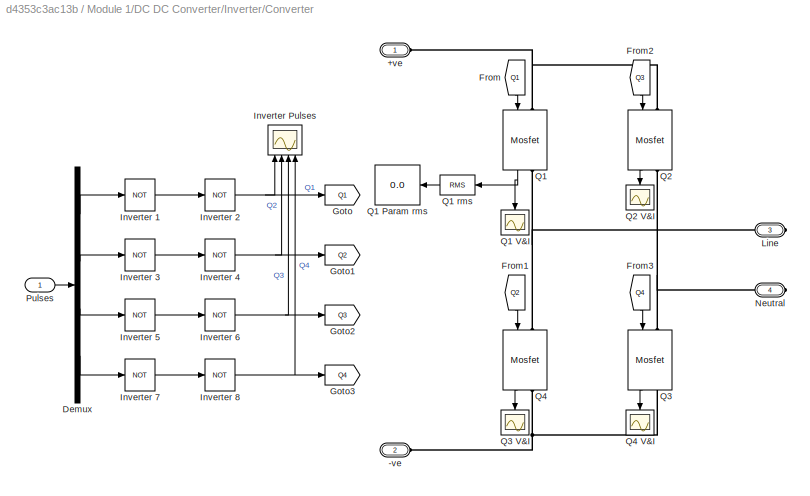
BLOCK [SubSystem] Module 1/DC DC Converter/Inverter/Converter
  PortSchema = {"entries":[{"content":{"sides":[{"content":{"connectorIds":["LConn1","LConn2"]},"type":"ConnectorPlacement.EquallySpacedRectSide","uuid":"0645cdc9-e655-49ab-a1d8-1293a5a1d66e"},{"content":{"connectorIds":["RConn1","RConn2"],"side":"RIGHT"},"type":"ConnectorPlacement.EquallySpacedRectSide","uuid":"2ef7d2b0-2c84-4192-a188-141ae61cdfda"},{"content":{"connectorIds":["In1"],"side":"TOP"},"type":"Conne...<+270ch>  <repeated x3 — deduplicated; at blocks: Converter>
  Ports = [1, 0, 0, 0, 0, 2, 2]
  RequestExecContextInheritance = off
BLOCK [PMIOPort] Module 1/DC DC Converter/Inverter/Converter/+ve
  Side = Left
BLOCK [PMIOPort] Module 1/DC DC Converter/Inverter/Converter/-ve
  Port = 2
  Side = Left
BLOCK [Demux] Module 1/DC DC Converter/Inverter/Converter/Demux
  Ports = [1, 4]
BLOCK [From] Module 1/DC DC Converter/Inverter/Converter/From
  GotoTag = Q1
  NameLocation = left
BLOCK [From] Module 1/DC DC Converter/Inverter/Converter/From1
  GotoTag = Q2
  NameLocation = left
BLOCK [From] Module 1/DC DC Converter/Inverter/Converter/From2
  GotoTag = Q3
  NameLocation = left
BLOCK [From] Module 1/DC DC Converter/Inverter/Converter/From3
  GotoTag = Q4
  NameLocation = left
BLOCK [Goto] Module 1/DC DC Converter/Inverter/Converter/Goto
  GotoTag = Q1
BLOCK [Goto] Module 1/DC DC Converter/Inverter/Converter/Goto1
  GotoTag = Q2
BLOCK [Goto] Module 1/DC DC Converter/Inverter/Converter/Goto2
  GotoTag = Q3
BLOCK [Goto] Module 1/DC DC Converter/Inverter/Converter/Goto3
  GotoTag = Q4
BLOCK [Logic] Module 1/DC DC Converter/Inverter/Converter/Inverter 1
  AllPortsSameDT = off
  IconShape = distinctive
  NameLocation = top
  Operator = NOT
  OutDataTypeStr = boolean
  Ports = [1, 1]
BLOCK [Logic] Module 1/DC DC Converter/Inverter/Converter/Inverter 2
  AllPortsSameDT = off
  IconShape = distinctive
  NameLocation = top
  Operator = NOT
  OutDataTypeStr = boolean
  Ports = [1, 1]
BLOCK [Logic] Module 1/DC DC Converter/Inverter/Converter/Inverter 3
  AllPortsSameDT = off
  IconShape = distinctive
  NameLocation = top
  Operator = NOT
  OutDataTypeStr = boolean
  Ports = [1, 1]
BLOCK [Logic] Module 1/DC DC Converter/Inverter/Converter/Inverter 4
  AllPortsSameDT = off
  IconShape = distinctive
  NameLocation = top
  Operator = NOT
  OutDataTypeStr = boolean
  Ports = [1, 1]
BLOCK [Logic] Module 1/DC DC Converter/Inverter/Converter/Inverter 5
  AllPortsSameDT = off
  IconShape = distinctive
  NameLocation = top
  Operator = NOT
  OutDataTypeStr = boolean
  Ports = [1, 1]
BLOCK [Logic] Module 1/DC DC Converter/Inverter/Converter/Inverter 6
  AllPortsSameDT = off
  IconShape = distinctive
  NameLocation = top
  Operator = NOT
  OutDataTypeStr = boolean
  Ports = [1, 1]
BLOCK [Logic] Module 1/DC DC Converter/Inverter/Converter/Inverter 7
  AllPortsSameDT = off
  IconShape = distinctive
  NameLocation = top
  Operator = NOT
  OutDataTypeStr = boolean
  Ports = [1, 1]
BLOCK [Logic] Module 1/DC DC Converter/Inverter/Converter/Inverter 8
  AllPortsSameDT = off
  IconShape = distinctive
  NameLocation = top
  Operator = NOT
  OutDataTypeStr = boolean
  Ports = [1, 1]
BLOCK [Scope] Module 1/DC DC Converter/Inverter/Converter/Inverter Pulses
  Floating = off
  NameLocation = top
  NumInputPorts = 4
  Ports = [4]
  ScopeSpecificationString = Simulink.scopes.TimeScopeBlockCfg('CurrentConfiguration', extmgr.ConfigurationSet(extmgr.Configuration('Core','General UI',true),extmgr.Configuration('Core','Source UI',true),extmgr.Configuration('Sources','WiredSimulink',true,'DataLoggingVariableName','ScopeData14'),extmgr.Configuration('Visuals','Time Domain',true,'SerializedDisplays',{struct('MinYLimReal','-0.125','MaxYLimReal','1.125','YLabelR...<+3405ch>  <repeated x3 — deduplicated; at blocks: Inverter Pulses>
BLOCK [PMIOPort] Module 1/DC DC Converter/Inverter/Converter/Line
  Port = 3
  Side = Right
BLOCK [PMIOPort] Module 1/DC DC Converter/Inverter/Converter/Neutral
  Port = 4
  Side = Right
BLOCK [Inport] Module 1/DC DC Converter/Inverter/Converter/Pulses
BLOCK [Reference] Module 1/DC DC Converter/Inverter/Converter/Q1  REF=powerlib/Power
Electronics/Mosfet
  NameLocation = left
  Ports = [1, 1, 0, 0, 0, 1, 1]
  SourceBlock = powerlib/Power\nElectronics/Mosfet
  SourceProductBaseCode = PS
  SourceType = Mosfet
BLOCK [Display] Module 1/DC DC Converter/Inverter/Converter/Q1 Param rms
  Decimation = 1
  NameLocation = top
  Ports = [1]
BLOCK [Scope] Module 1/DC DC Converter/Inverter/Converter/Q1 V&I
  Floating = off
  NameLocation = left
  NumInputPorts = 1
  Ports = [1]
  ScopeSpecificationString = Simulink.scopes.TimeScopeBlockCfg('CurrentConfiguration', extmgr.ConfigurationSet(extmgr.Configuration('Core','General UI',true),extmgr.Configuration('Core','Source UI',true),extmgr.Configuration('Sources','WiredSimulink',true,'DataLoggingVariableName','ScopeData1'),extmgr.Configuration('Visuals','Time Domain',true,'SerializedDisplays',{struct('MinYLimReal','-73.14054','MaxYLimReal','1164.89388','...<+1525ch>  <repeated x3 — deduplicated; at blocks: Q1 V&I>
BLOCK [Reference] Module 1/DC DC Converter/Inverter/Converter/Q1 rms  REF=powerlib_meascontrol/Measurements/RMS
  NameLocation = top
  Ports = [1, 1]
  SourceBlock = powerlib_meascontrol/Measurements/RMS
  SourceProductBaseCode = PS
  SourceType = RMS
BLOCK [Reference] Module 1/DC DC Converter/Inverter/Converter/Q2  REF=powerlib/Power
Electronics/Mosfet
  NameLocation = left
  Ports = [1, 1, 0, 0, 0, 1, 1]
  SourceBlock = powerlib/Power\nElectronics/Mosfet
  SourceProductBaseCode = PS
  SourceType = Mosfet
BLOCK [Scope] Module 1/DC DC Converter/Inverter/Converter/Q2 V&I
  Commented = on
  Floating = off
  NameLocation = left
  NumInputPorts = 1
  Ports = [1]
  ScopeSpecificationString = Simulink.scopes.TimeScopeBlockCfg('CurrentConfiguration', extmgr.ConfigurationSet(extmgr.Configuration('Core','General UI',true),extmgr.Configuration('Core','Source UI',true),extmgr.Configuration('Sources','WiredSimulink',true,'DataLoggingVariableName','ScopeData2'),extmgr.Configuration('Visuals','Time Domain',true),extmgr.Configuration('Tools','Plot Navigation',true),extmgr.Configuration('Tools',...<+40ch>  <repeated x3 — deduplicated; at blocks: Q2 V&I>
BLOCK [Reference] Module 1/DC DC Converter/Inverter/Converter/Q3  REF=powerlib/Power
Electronics/Mosfet
  NameLocation = left
  Ports = [1, 1, 0, 0, 0, 1, 1]
  SourceBlock = powerlib/Power\nElectronics/Mosfet
  SourceProductBaseCode = PS
  SourceType = Mosfet
BLOCK [Scope] Module 1/DC DC Converter/Inverter/Converter/Q3 V&I
  Commented = on
  Floating = off
  NameLocation = left
  NumInputPorts = 1
  Ports = [1]
  ScopeSpecificationString = Simulink.scopes.TimeScopeBlockCfg('CurrentConfiguration', extmgr.ConfigurationSet(extmgr.Configuration('Core','General UI',true),extmgr.Configuration('Core','Source UI',true),extmgr.Configuration('Sources','WiredSimulink',true,'DataLoggingVariableName','ScopeData4'),extmgr.Configuration('Visuals','Time Domain',true),extmgr.Configuration('Tools','Plot Navigation',true),extmgr.Configuration('Tools',...<+40ch>  <repeated x3 — deduplicated; at blocks: Q3 V&I>
BLOCK [Reference] Module 1/DC DC Converter/Inverter/Converter/Q4  REF=powerlib/Power
Electronics/Mosfet
  NameLocation = left
  Ports = [1, 1, 0, 0, 0, 1, 1]
  SourceBlock = powerlib/Power\nElectronics/Mosfet
  SourceProductBaseCode = PS
  SourceType = Mosfet
BLOCK [Scope] Module 1/DC DC Converter/Inverter/Converter/Q4 V&I
  Commented = on
  Floating = off
  NameLocation = left
  NumInputPorts = 1
  Ports = [1]
  ScopeSpecificationString = Simulink.scopes.TimeScopeBlockCfg('CurrentConfiguration', extmgr.ConfigurationSet(extmgr.Configuration('Core','General UI',true),extmgr.Configuration('Core','Source UI',true),extmgr.Configuration('Sources','WiredSimulink',true,'DataLoggingVariableName','ScopeData3'),extmgr.Configuration('Visuals','Time Domain',true),extmgr.Configuration('Tools','Plot Navigation',true),extmgr.Configuration('Tools',...<+40ch>  <repeated x3 — deduplicated; at blocks: Q4 V&I>
BLOCK [Inport] Module 1/DC DC Converter/Inverter/Ifeed
  NameLocation = top
  Port = 2
BLOCK [Inport] Module 1/DC DC Converter/Inverter/Iref
  NameLocation = top
BLOCK [Outport] Module 1/DC DC Converter/Inverter/Iref Main
  NameLocation = right
BLOCK [PMIOPort] Module 1/DC DC Converter/Inverter/Line
  NameLocation = top
  Port = 3
  Side = Right
BLOCK [PMIOPort] Module 1/DC DC Converter/Inverter/Neutral
  NameLocation = top
  Port = 4
  Side = Right
BLOCK [SubSystem] Module 1/DC DC Converter/Inverter/Pulse Generator
  NameLocation = right
  Ports = [3, 2]
  RequestExecContextInheritance = off
BLOCK [SubSystem] Module 1/DC DC Converter/Inverter/Pulse Generator/Close Loop
  NameLocation = top
  Ports = [3, 2]
  RequestExecContextInheritance = off
BLOCK [SubSystem] Module 1/DC DC Converter/Inverter/Pulse Generator/Close Loop/Current Loop
  NameLocation = top
  Ports = [2, 1]
  RequestExecContextInheritance = off
BLOCK [Scope] Module 1/DC DC Converter/Inverter/Pulse Generator/Close Loop/Current Loop/Current PI Parmaters
  Floating = off
  NumInputPorts = 8
  Ports = [8]
  ScopeSpecificationString = Simulink.scopes.TimeScopeBlockCfg('CurrentConfiguration', extmgr.ConfigurationSet(extmgr.Configuration('Core','General UI',true),extmgr.Configuration('Core','Source UI',true),extmgr.Configuration('Sources','WiredSimulink',true),extmgr.Configuration('Visuals','Time Domain',true,'SerializedDisplays',{struct('MinYLimReal','-62.5','MaxYLimReal','562.5','YLabelReal','','MinYLimMag','0.00000','MaxYLimMa...<+6906ch>  <repeated x3 — deduplicated; at blocks: Current PI Parmaters>
BLOCK [Sum] Module 1/DC DC Converter/Inverter/Pulse Generator/Close Loop/Current Loop/Error
  Inputs = |+-
  NameLocation = top
  Ports = [2, 1]
BLOCK [Inport] Module 1/DC DC Converter/Inverter/Pulse Generator/Close Loop/Current Loop/I Feedback
  NameLocation = top
  Port = 2
BLOCK [Inport] Module 1/DC DC Converter/Inverter/Pulse Generator/Close Loop/Current Loop/I Reference
  NameLocation = top
BLOCK [Sum] Module 1/DC DC Converter/Inverter/Pulse Generator/Close Loop/Current Loop/Integrate
  Inputs = |++
  NameLocation = top
  Ports = [2, 1]
BLOCK [Gain] Module 1/DC DC Converter/Inverter/Pulse Generator/Close Loop/Current Loop/Ki
  Gain = Ki_I
  NameLocation = top
BLOCK [Gain] Module 1/DC DC Converter/Inverter/Pulse Generator/Close Loop/Current Loop/Kp
  Gain = Kp_I
  NameLocation = top
BLOCK [Sum] Module 1/DC DC Converter/Inverter/Pulse Generator/Close Loop/Current Loop/PI
  Inputs = |++
  NameLocation = top
  Ports = [2, 1]
BLOCK [Saturate] Module 1/DC DC Converter/Inverter/Pulse Generator/Close Loop/Current Loop/PI Clamp
  LowerLimit = Duty_min
  NameLocation = top
  UpperLimit = Duty_max
BLOCK [Outport] Module 1/DC DC Converter/Inverter/Pulse Generator/Close Loop/Current Loop/PI Out
  NameLocation = top
BLOCK [UnitDelay] Module 1/DC DC Converter/Inverter/Pulse Generator/Close Loop/Current Loop/Previous Value
  HasFrameUpgradeWarning = on
  NameLocation = top
  SampleTime = -1
BLOCK [Saturate] Module 1/DC DC Converter/Inverter/Pulse Generator/Close Loop/Current Loop/Reference Clamp
  LowerLimit = 0
  NameLocation = top
  UpperLimit = I_ref
BLOCK [Display] Module 1/DC DC Converter/Inverter/Pulse Generator/Close Loop/Duty Cycle
  Decimation = 1
  NameLocation = top
  Ports = [1]
BLOCK [Inport] Module 1/DC DC Converter/Inverter/Pulse Generator/Close Loop/I Feedback
  Port = 2
BLOCK [Display] Module 1/DC DC Converter/Inverter/Pulse Generator/Close Loop/I Reference
  Decimation = 1
  Ports = [1]
BLOCK [Display] Module 1/DC DC Converter/Inverter/Pulse Generator/Close Loop/Iout avg
  Decimation = 1
  NameLocation = top
  Ports = [1]
BLOCK [Inport] Module 1/DC DC Converter/Inverter/Pulse Generator/Close Loop/Iref
  NameLocation = top
BLOCK [Outport] Module 1/DC DC Converter/Inverter/Pulse Generator/Close Loop/Iref Main
  Port = 2
BLOCK [ManualSwitch] Module 1/DC DC Converter/Inverter/Pulse Generator/Close Loop/Master//Slave Select
BLOCK [Outport] Module 1/DC DC Converter/Inverter/Pulse Generator/Close Loop/Phaseshift
  NameLocation = top
BLOCK [Inport] Module 1/DC DC Converter/Inverter/Pulse Generator/Close Loop/V Feedback
  NameLocation = top
  Port = 3
BLOCK [SubSystem] Module 1/DC DC Converter/Inverter/Pulse Generator/Close Loop/Voltage Loop
  NameLocation = top
  Ports = [1, 1]
  RequestExecContextInheritance = off
BLOCK [Sum] Module 1/DC DC Converter/Inverter/Pulse Generator/Close Loop/Voltage Loop/Error
  Inputs = |+-
  NameLocation = top
  Ports = [2, 1]
BLOCK [Sum] Module 1/DC DC Converter/Inverter/Pulse Generator/Close Loop/Voltage Loop/Integration
  Inputs = |++
  NameLocation = top
  Ports = [2, 1]
BLOCK [Gain] Module 1/DC DC Converter/Inverter/Pulse Generator/Close Loop/Voltage Loop/Ki
  Gain = Ki_V
  NameLocation = top
BLOCK [Gain] Module 1/DC DC Converter/Inverter/Pulse Generator/Close Loop/Voltage Loop/Kp
  Gain = Kp_V
  NameLocation = top
BLOCK [Saturate] Module 1/DC DC Converter/Inverter/Pulse Generator/Close Loop/Voltage Loop/PI Clamp
  LowerLimit = 0
  NameLocation = top
  UpperLimit = I_ref
BLOCK [Outport] Module 1/DC DC Converter/Inverter/Pulse Generator/Close Loop/Voltage Loop/PI Out
  NameLocation = top
BLOCK [Sum] Module 1/DC DC Converter/Inverter/Pulse Generator/Close Loop/Voltage Loop/PI Output
  Inputs = |++
  NameLocation = top
  Ports = [2, 1]
BLOCK [UnitDelay] Module 1/DC DC Converter/Inverter/Pulse Generator/Close Loop/Voltage Loop/Previous Value
  HasFrameUpgradeWarning = on
  NameLocation = top
  SampleTime = -1
BLOCK [Reference] Module 1/DC DC Converter/Inverter/Pulse Generator/Close Loop/Voltage Loop/SoftStart Ramp  REF=simulink/Sources/Ramp
  NameLocation = top
  Ports = [0, 1]
  SourceBlock = simulink/Sources/Ramp
  SourceProductBaseCode = SL
  SourceType = Ramp
BLOCK [Inport] Module 1/DC DC Converter/Inverter/Pulse Generator/Close Loop/Voltage Loop/V Feedback
BLOCK [Saturate] Module 1/DC DC Converter/Inverter/Pulse Generator/Close Loop/Voltage Loop/V Reference
  LowerLimit = 0
  NameLocation = top
  UpperLimit = V_ref
BLOCK [Scope] Module 1/DC DC Converter/Inverter/Pulse Generator/Close Loop/Voltage Loop/Voltage PI Parmaters
  Floating = off
  NumInputPorts = 9
  Ports = [9]
  ScopeSpecificationString = Simulink.scopes.TimeScopeBlockCfg('CurrentConfiguration', extmgr.ConfigurationSet(extmgr.Configuration('Core','General UI',true),extmgr.Configuration('Core','Source UI',true),extmgr.Configuration('Sources','WiredSimulink',true,'DataLoggingVariableName','ScopeData3'),extmgr.Configuration('Visuals','Time Domain',true,'SerializedDisplays',{struct('MinYLimReal','-216.1392','MaxYLimReal','1945.2528','Y...<+7304ch>  <repeated x3 — deduplicated; at blocks: Voltage PI Parmaters>
BLOCK [Display] Module 1/DC DC Converter/Inverter/Pulse Generator/Close Loop/Vout avg
  Decimation = 1
  NameLocation = top
  Ports = [1]
BLOCK [SubSystem] Module 1/DC DC Converter/Inverter/Pulse Generator/Comparator
  NameLocation = top
  Ports = [1, 1]
  RequestExecContextInheritance = off
BLOCK [Constant] Module 1/DC DC Converter/Inverter/Pulse Generator/Comparator/180* Phaseshift
  Value = 180
BLOCK [Constant] Module 1/DC DC Converter/Inverter/Pulse Generator/Comparator/Carrier Bias
  Value = Carr_offset
BLOCK [Reference] Module 1/DC DC Converter/Inverter/Pulse Generator/Comparator/Carrier Generate  REF=powerlib_meascontrol/Pulse & Signal
Generators/Sawtooth
Generator
  Ports = [0, 1]
  SourceBlock = powerlib_meascontrol/Pulse & Signal\nGenerators/Sawtooth\nGenerator
  SourceProductBaseCode = PS
  SourceType = Sawtooth Generator
BLOCK [Gain] Module 1/DC DC Converter/Inverter/Pulse Generator/Comparator/Carrier Scaling
  Gain = Carr_scale
BLOCK [RelationalOperator] Module 1/DC DC Converter/Inverter/Pulse Generator/Comparator/Comparator 1 CMPA
  InputSameDT = off
  Operator = <=
  OutDataTypeStr = boolean
  Ports = [2, 1]
  RndMeth = Simplest
BLOCK [RelationalOperator] Module 1/DC DC Converter/Inverter/Pulse Generator/Comparator/Comparator 1 CMPB
  InputSameDT = off
  Operator = >
  OutDataTypeStr = boolean
  Ports = [2, 1]
  RndMeth = Simplest
BLOCK [RelationalOperator] Module 1/DC DC Converter/Inverter/Pulse Generator/Comparator/Comparator 2 CMPA
  InputSameDT = off
  Operator = <=
  OutDataTypeStr = boolean
  Ports = [2, 1]
  RndMeth = Simplest
BLOCK [RelationalOperator] Module 1/DC DC Converter/Inverter/Pulse Generator/Comparator/Comparator 2 CMPB
  InputSameDT = off
  Operator = >
  OutDataTypeStr = boolean
  Ports = [2, 1]
  RndMeth = Simplest
BLOCK [Constant] Module 1/DC DC Converter/Inverter/Pulse Generator/Comparator/Duty Cycle
  Value = Duty_fix
BLOCK [Gain] Module 1/DC DC Converter/Inverter/Pulse Generator/Comparator/Duty Cycle Scaling 1
  Gain = Duty_scale
BLOCK [Gain] Module 1/DC DC Converter/Inverter/Pulse Generator/Comparator/Duty Cycle Scaling 2
  Gain = Duty_scale
BLOCK [Sum] Module 1/DC DC Converter/Inverter/Pulse Generator/Comparator/Level Correction
  Inputs = |++
  NameLocation = top
  Ports = [2, 1]
BLOCK [Gain] Module 1/DC DC Converter/Inverter/Pulse Generator/Comparator/Modulating Wave Switching Period Scaling
  Gain = 1/f_sw
BLOCK [Gain] Module 1/DC DC Converter/Inverter/Pulse Generator/Comparator/Modulating Wave Unity Scaling
  Gain = 1/360
BLOCK [Mux] Module 1/DC DC Converter/Inverter/Pulse Generator/Comparator/Mux
  DisplayOption = bar
  Ports = [4, 1]
BLOCK [VariableTransportDelay] Module 1/DC DC Converter/Inverter/Pulse Generator/Comparator/Ninety Degree Phase Offset
  MaximumDelay = (PS_max/360)*(1/f_sw)
  MaximumPoints = 131072
  Ports = [2, 1]
BLOCK [Inport] Module 1/DC DC Converter/Inverter/Pulse Generator/Comparator/Phaseshift
BLOCK [Scope] Module 1/DC DC Converter/Inverter/Pulse Generator/Comparator/Pulse
  Floating = off
  NameLocation = top
  NumInputPorts = 4
  Ports = [4]
  ScopeSpecificationString = Simulink.scopes.TimeScopeBlockCfg('CurrentConfiguration', extmgr.ConfigurationSet(extmgr.Configuration('Core','General UI',true),extmgr.Configuration('Core','Source UI',true),extmgr.Configuration('Sources','WiredSimulink',true,'DataLoggingVariableName','ScopeData13'),extmgr.Configuration('Visuals','Time Domain',true,'SerializedDisplays',{struct('MinYLimReal','-0.125','MaxYLimReal','1.125','YLabelR...<+3439ch>  <repeated x3 — deduplicated; at blocks: Pulse>
BLOCK [Outport] Module 1/DC DC Converter/Inverter/Pulse Generator/Comparator/Pulses
BLOCK [Inport] Module 1/DC DC Converter/Inverter/Pulse Generator/I feed
  NameLocation = top
  Port = 2
BLOCK [Inport] Module 1/DC DC Converter/Inverter/Pulse Generator/Iref
  NameLocation = top
BLOCK [Outport] Module 1/DC DC Converter/Inverter/Pulse Generator/Iref Main
  Port = 2
BLOCK [Outport] Module 1/DC DC Converter/Inverter/Pulse Generator/Pulses
  NameLocation = top
BLOCK [Inport] Module 1/DC DC Converter/Inverter/Pulse Generator/V Feed
  NameLocation = top
  Port = 3
BLOCK [Inport] Module 1/DC DC Converter/Inverter/Vfeed
  NameLocation = top
  Port = 3
BLOCK [Inport] Module 1/DC DC Converter/Iref
  NameLocation = top
BLOCK [Outport] Module 1/DC DC Converter/Iref Main
BLOCK [SubSystem] Module 1/DC DC Converter/Sensor
  NameLocation = top
  Ports = [2, 2]
  RequestExecContextInheritance = off
BLOCK [Gain] Module 1/DC DC Converter/Sensor/Current 12bit ADC
  Gain = ADC_Res
  NameLocation = top
BLOCK [Gain] Module 1/DC DC Converter/Sensor/Current Transducer
  Gain = I_sense
  NameLocation = top
BLOCK [Inport] Module 1/DC DC Converter/Sensor/Iin
BLOCK [Outport] Module 1/DC DC Converter/Sensor/Iout
BLOCK [Inport] Module 1/DC DC Converter/Sensor/Vin
  Port = 2
BLOCK [Gain] Module 1/DC DC Converter/Sensor/Voltage 12bit ADC
  Gain = ADC_Res
BLOCK [Gain] Module 1/DC DC Converter/Sensor/Voltage Transducer
  Gain = V_sense
BLOCK [Outport] Module 1/DC DC Converter/Sensor/Vout
  Port = 2
BLOCK [Outport] Module 1/DC DC Converter/Vdc avg
  Port = 3
BLOCK [Outport] Module 1/Iout avg
  Port = 2
BLOCK [Inport] Module 1/Iref
  NameLocation = top
BLOCK [Outport] Module 1/Iref Main
  Port = 3
BLOCK [PMIOPort] Module 1/Neutral
  NameLocation = left
  Port = 6
  Side = Left
BLOCK [PMIOPort] Module 1/Rphase
  NameLocation = left
  Side = Left
BLOCK [Outport] Module 1/Vout avg
BLOCK [PMIOPort] Module 1/Yphase
  NameLocation = left
  Port = 2
  Side = Left
BLOCK [SubSystem] Module 2
  NameLocation = top
  Ports = [1, 3, 0, 0, 0, 4, 2]
  RequestExecContextInheritance = off
BLOCK [PMIOPort] Module 2/+ve OUT
  NameLocation = right
  Port = 4
  Side = Right
BLOCK [PMIOPort] Module 2/-ve OUT
  NameLocation = right
  Port = 5
  Side = Right
BLOCK [SubSystem] Module 2/3 Phase Rectifier
  NameLocation = top
  Ports = [0, 0, 0, 0, 0, 4, 2]
  RequestExecContextInheritance = off
BLOCK [PMIOPort] Module 2/3 Phase Rectifier/+ve
  Port = 4
  Side = Right
BLOCK [PMIOPort] Module 2/3 Phase Rectifier/-ve
  Port = 5
  Side = Right
BLOCK [SubSystem] Module 2/3 Phase Rectifier/3 Phase Rectifier
  NameLocation = top
  Ports = [0, 0, 0, 0, 0, 3, 2]
  RequestExecContextInheritance = off
BLOCK [PMIOPort] Module 2/3 Phase Rectifier/3 Phase Rectifier/+ve
  Port = 4
  Side = Right
BLOCK [PMIOPort] Module 2/3 Phase Rectifier/3 Phase Rectifier/-ve
  Port = 5
  Side = Right
BLOCK [PMIOPort] Module 2/3 Phase Rectifier/3 Phase Rectifier/B Phase
  Port = 3
  Side = Left
BLOCK [Reference] Module 2/3 Phase Rectifier/3 Phase Rectifier/D1  REF=powerlib/Power
Electronics/Diode
  NameLocation = right
  Ports = [0, 1, 0, 0, 0, 1, 1]
  SourceBlock = powerlib/Power\nElectronics/Diode
  SourceProductBaseCode = PS
  SourceType = Diode
BLOCK [Scope] Module 2/3 Phase Rectifier/3 Phase Rectifier/D1 V&I
  Commented = on
  Floating = off
  NameLocation = top
  NumInputPorts = 1
  Ports = [1]
BLOCK [Reference] Module 2/3 Phase Rectifier/3 Phase Rectifier/D2  REF=powerlib/Power
Electronics/Diode
  NameLocation = right
  Ports = [0, 1, 0, 0, 0, 1, 1]
  SourceBlock = powerlib/Power\nElectronics/Diode
  SourceProductBaseCode = PS
  SourceType = Diode
BLOCK [Scope] Module 2/3 Phase Rectifier/3 Phase Rectifier/D2 V&I
  Commented = on
  Floating = off
  NameLocation = top
  NumInputPorts = 1
  Ports = [1]
BLOCK [Reference] Module 2/3 Phase Rectifier/3 Phase Rectifier/D3  REF=powerlib/Power
Electronics/Diode
  NameLocation = right
  Ports = [0, 1, 0, 0, 0, 1, 1]
  SourceBlock = powerlib/Power\nElectronics/Diode
  SourceProductBaseCode = PS
  SourceType = Diode
BLOCK [Scope] Module 2/3 Phase Rectifier/3 Phase Rectifier/D3 V&I
  Commented = on
  Floating = off
  NameLocation = top
  NumInputPorts = 1
  Ports = [1]
BLOCK [Reference] Module 2/3 Phase Rectifier/3 Phase Rectifier/D4  REF=powerlib/Power
Electronics/Diode
  NameLocation = right
  Ports = [0, 1, 0, 0, 0, 1, 1]
  SourceBlock = powerlib/Power\nElectronics/Diode
  SourceProductBaseCode = PS
  SourceType = Diode
BLOCK [Scope] Module 2/3 Phase Rectifier/3 Phase Rectifier/D4 V&I
  Commented = on
  Floating = off
  NameLocation = top
  NumInputPorts = 1
  Ports = [1]
BLOCK [Reference] Module 2/3 Phase Rectifier/3 Phase Rectifier/D5  REF=powerlib/Power
Electronics/Diode
  NameLocation = right
  Ports = [0, 1, 0, 0, 0, 1, 1]
  SourceBlock = powerlib/Power\nElectronics/Diode
  SourceProductBaseCode = PS
  SourceType = Diode
BLOCK [Scope] Module 2/3 Phase Rectifier/3 Phase Rectifier/D5 V&I
  Commented = on
  Floating = off
  NameLocation = top
  NumInputPorts = 1
  Ports = [1]
BLOCK [Reference] Module 2/3 Phase Rectifier/3 Phase Rectifier/D6  REF=powerlib/Power
Electronics/Diode
  NameLocation = right
  Ports = [0, 1, 0, 0, 0, 1, 1]
  SourceBlock = powerlib/Power\nElectronics/Diode
  SourceProductBaseCode = PS
  SourceType = Diode
BLOCK [Scope] Module 2/3 Phase Rectifier/3 Phase Rectifier/D6 V&I
  Commented = on
  Floating = off
  NameLocation = top
  NumInputPorts = 1
  Ports = [1]
BLOCK [PMIOPort] Module 2/3 Phase Rectifier/3 Phase Rectifier/R Phase
  Side = Left
BLOCK [PMIOPort] Module 2/3 Phase Rectifier/3 Phase Rectifier/Y Phase
  Port = 2
  Side = Left
BLOCK [PMIOPort] Module 2/3 Phase Rectifier/Bphase
  Port = 3
  Side = Left
BLOCK [SubSystem] Module 2/3 Phase Rectifier/Filter
  NameLocation = top
  Ports = [0, 0, 0, 0, 0, 2, 3]
  RequestExecContextInheritance = off
BLOCK [PMIOPort] Module 2/3 Phase Rectifier/Filter/+ve IN
  Side = Left
BLOCK [PMIOPort] Module 2/3 Phase Rectifier/Filter/+ve OUT
  Port = 3
  Side = Right
BLOCK [PMIOPort] Module 2/3 Phase Rectifier/Filter/-ve In
  Port = 2
  Side = Left
BLOCK [PMIOPort] Module 2/3 Phase Rectifier/Filter/-ve OUT
  Port = 5
  Side = Right
BLOCK [Reference] Module 2/3 Phase Rectifier/Filter/Cdc 1  REF=powerlib/Elements/Series RLC Branch
  NameLocation = left
  Ports = [0, 0, 0, 0, 0, 1, 1]
  SourceBlock = powerlib/Elements/Series RLC Branch
  SourceProductBaseCode = PS
  SourceType = Series RLC Branch
BLOCK [Reference] Module 2/3 Phase Rectifier/Filter/Cdc 2  REF=powerlib/Elements/Series RLC Branch
  NameLocation = left
  Ports = [0, 0, 0, 0, 0, 1, 1]
  SourceBlock = powerlib/Elements/Series RLC Branch
  SourceProductBaseCode = PS
  SourceType = Series RLC Branch
BLOCK [Scope] Module 2/3 Phase Rectifier/Filter/DC Bus Filter Parameters
  Floating = off
  NameLocation = top
  NumInputPorts = 2
  Ports = [2]
  ScopeSpecificationString = Simulink.scopes.TimeScopeBlockCfg('CurrentConfiguration', extmgr.ConfigurationSet(extmgr.Configuration('Core','General UI',true),extmgr.Configuration('Core','Source UI',true),extmgr.Configuration('Sources','WiredSimulink',true,'DataLoggingVariableName','Output','DataLoggingSaveFormat','StructureWithTime'),extmgr.Configuration('Visuals','Time Domain',true,'SerializedDisplays',{struct('MinYLimReal',...<+2076ch>
BLOCK [Reference] Module 2/3 Phase Rectifier/Filter/Iout  REF=powerlib/Measurements/Current Measurement
  Ports = [0, 1, 0, 0, 0, 1, 1]
  SourceBlock = powerlib/Measurements/Current Measurement
  SourceProductBaseCode = PS
  SourceType = Current Measurement
  UserDataPersistent = on
BLOCK [PMIOPort] Module 2/3 Phase Rectifier/Filter/Mid
  Port = 4
  Side = Right
BLOCK [Reference] Module 2/3 Phase Rectifier/Filter/Vout  REF=powerlib/Measurements/Voltage Measurement
  Ports = [0, 1, 0, 0, 0, 2]
  SourceBlock = powerlib/Measurements/Voltage Measurement
  SourceProductBaseCode = PS
  SourceType = Voltage Measurement
  UserDataPersistent = on
BLOCK [PMIOPort] Module 2/3 Phase Rectifier/Neutral
  Port = 6
  Side = Left
BLOCK [PMIOPort] Module 2/3 Phase Rectifier/Rphase
  Side = Left
BLOCK [PMIOPort] Module 2/3 Phase Rectifier/Yphase
  Port = 2
  Side = Left
BLOCK [PMIOPort] Module 2/Bphase
  NameLocation = left
  Port = 3
  Side = Left
BLOCK [SubSystem] Module 2/DC DC Converter
  NameLocation = top
  Ports = [1, 3, 0, 0, 0, 2, 2]
  RequestExecContextInheritance = off
BLOCK [PMIOPort] Module 2/DC DC Converter/+ve IN
  NameLocation = top
  Side = Left
BLOCK [PMIOPort] Module 2/DC DC Converter/+ve OUT
  NameLocation = top
  Port = 3
  Side = Right
BLOCK [PMIOPort] Module 2/DC DC Converter/-ve IN
  NameLocation = top
  Port = 2
  Side = Left
BLOCK [PMIOPort] Module 2/DC DC Converter/-ve OUT
  NameLocation = top
  Port = 4
  Side = Right
BLOCK [SubSystem] Module 2/DC DC Converter/Centre Tap Rectifier
  Ports = [0, 0, 0, 0, 0, 3, 2]
  RequestExecContextInheritance = off
BLOCK [PMIOPort] Module 2/DC DC Converter/Centre Tap Rectifier/+ve
  Port = 4
  Side = Right
BLOCK [PMIOPort] Module 2/DC DC Converter/Centre Tap Rectifier/-ve
  Port = 5
  Side = Right
BLOCK [PMIOPort] Module 2/DC DC Converter/Centre Tap Rectifier/Centre-tap
  Port = 2
  Side = Left
BLOCK [Reference] Module 2/DC DC Converter/Centre Tap Rectifier/D1  REF=powerlib/Power
Electronics/Diode
  Ports = [0, 1, 0, 0, 0, 1, 1]
  SourceBlock = powerlib/Power\nElectronics/Diode
  SourceProductBaseCode = PS
  SourceType = Diode
BLOCK [Scope] Module 2/DC DC Converter/Centre Tap Rectifier/D1 V&I
  Commented = on
  Floating = off
  NameLocation = right
  NumInputPorts = 1
  Ports = [1]
BLOCK [Reference] Module 2/DC DC Converter/Centre Tap Rectifier/D2  REF=powerlib/Power
Electronics/Diode
  Ports = [0, 1, 0, 0, 0, 1, 1]
  SourceBlock = powerlib/Power\nElectronics/Diode
  SourceProductBaseCode = PS
  SourceType = Diode
BLOCK [Scope] Module 2/DC DC Converter/Centre Tap Rectifier/D2 V&I1
  Commented = on
  Floating = off
  NameLocation = right
  NumInputPorts = 1
  Ports = [1]
BLOCK [PMIOPort] Module 2/DC DC Converter/Centre Tap Rectifier/Line
  Side = Left
BLOCK [PMIOPort] Module 2/DC DC Converter/Centre Tap Rectifier/Neutral
  Port = 3
  Side = Left
BLOCK [SubSystem] Module 2/DC DC Converter/Chopper
  Ports = [0, 4, 0, 0, 0, 2, 2]
  RequestExecContextInheritance = off
BLOCK [Outport] Module 2/DC DC Converter/Chopper/ Idc
  NameLocation = right
  Port = 4
BLOCK [PMIOPort] Module 2/DC DC Converter/Chopper/+ve IN
  Side = Left
BLOCK [PMIOPort] Module 2/DC DC Converter/Chopper/+ve OUT
  NameLocation = top
  Port = 3
  Side = Right
BLOCK [PMIOPort] Module 2/DC DC Converter/Chopper/-ve IN
  Port = 2
  Side = Left
BLOCK [PMIOPort] Module 2/DC DC Converter/Chopper/-ve OUT
  NameLocation = top
  Port = 4
  Side = Right
BLOCK [SubSystem] Module 2/DC DC Converter/Chopper/Chop Pulse Generator
  Ports = [1, 1]
  RequestExecContextInheritance = off
BLOCK [Constant] Module 2/DC DC Converter/Chopper/Chop Pulse Generator/Carrier Bias
  Value = Carr_offset
BLOCK [Gain] Module 2/DC DC Converter/Chopper/Chop Pulse Generator/Carrier Scaling
  Gain = Carr_scale
  NameLocation = top
BLOCK [Outport] Module 2/DC DC Converter/Chopper/Chop Pulse Generator/Chop Pulse
  NameLocation = top
BLOCK [Reference] Module 2/DC DC Converter/Chopper/Chop Pulse Generator/Chopping Carrier  REF=powerlib_meascontrol/Pulse & Signal
Generators/Sawtooth
Generator
  NameLocation = top
  Ports = [0, 1]
  SourceBlock = powerlib_meascontrol/Pulse & Signal\nGenerators/Sawtooth\nGenerator
  SourceProductBaseCode = PS
  SourceType = Sawtooth Generator
BLOCK [Constant] Module 2/DC DC Converter/Chopper/Chop Pulse Generator/Chopping Duty Cycle
  Value = Duty_chop
BLOCK [Scope] Module 2/DC DC Converter/Chopper/Chop Pulse Generator/Chopping Pulse Parameters
  Commented = on
  Floating = off
  NameLocation = top
  NumInputPorts = 4
  Ports = [4]
BLOCK [RelationalOperator] Module 2/DC DC Converter/Chopper/Chop Pulse Generator/Comparator
  InputSameDT = off
  NameLocation = top
  Operator = <=
  OutDataTypeStr = boolean
  Ports = [2, 1]
  RndMeth = Simplest
BLOCK [Gain] Module 2/DC DC Converter/Chopper/Chop Pulse Generator/Duty Cycle Scaling
  Gain = Duty_scale
BLOCK [Logic] Module 2/DC DC Converter/Chopper/Chop Pulse Generator/Fault Condition Check
  AllPortsSameDT = off
  IconShape = distinctive
  NameLocation = top
  OutDataTypeStr = boolean
  Ports = [2, 1]
BLOCK [Sum] Module 2/DC DC Converter/Chopper/Chop Pulse Generator/Level Correction
  Inputs = |++
  NameLocation = top
  Ports = [2, 1]
BLOCK [Inport] Module 2/DC DC Converter/Chopper/Chop Pulse Generator/Over Voltage Fault
  NameLocation = top
BLOCK [SubSystem] Module 2/DC DC Converter/Chopper/Fault Detection
  Ports = [2, 1]
  RequestExecContextInheritance = off
BLOCK [Constant] Module 2/DC DC Converter/Chopper/Fault Detection/Constant
  Value = OV_limit
BLOCK [Constant] Module 2/DC DC Converter/Chopper/Fault Detection/Constant1
  Value = UV_limit
BLOCK [Constant] Module 2/DC DC Converter/Chopper/Fault Detection/Constant2
  Value = OC_limit
BLOCK [Constant] Module 2/DC DC Converter/Chopper/Fault Detection/Constant3
  Value = UC_limit
BLOCK [Scope] Module 2/DC DC Converter/Chopper/Fault Detection/Faults
  Commented = on
  Floating = off
  NameLocation = top
  NumInputPorts = 4
  Ports = [4]
BLOCK [RelationalOperator] Module 2/DC DC Converter/Chopper/Fault Detection/GreaterThan
  InputSameDT = off
  OutDataTypeStr = boolean
  Ports = [2, 1]
  RndMeth = Simplest
BLOCK [RelationalOperator] Module 2/DC DC Converter/Chopper/Fault Detection/GreaterThan1
  InputSameDT = off
  Operator = <=
  OutDataTypeStr = boolean
  Ports = [2, 1]
  RndMeth = Simplest
BLOCK [RelationalOperator] Module 2/DC DC Converter/Chopper/Fault Detection/GreaterThan2
  InputSameDT = off
  OutDataTypeStr = boolean
  Ports = [2, 1]
  RndMeth = Simplest
BLOCK [RelationalOperator] Module 2/DC DC Converter/Chopper/Fault Detection/GreaterThan3
  InputSameDT = off
  Operator = <=
  OutDataTypeStr = boolean
  Ports = [2, 1]
  RndMeth = Simplest
BLOCK [Inport] Module 2/DC DC Converter/Chopper/Fault Detection/I Output
  Port = 2
BLOCK [Outport] Module 2/DC DC Converter/Chopper/Fault Detection/OV Fault
BLOCK [Inport] Module 2/DC DC Converter/Chopper/Fault Detection/V Output
BLOCK [Outport] Module 2/DC DC Converter/Chopper/Idc avg
  NameLocation = right
BLOCK [Reference] Module 2/DC DC Converter/Chopper/Io avg  REF=powerlib_meascontrol/Measurements/Mean
  NameLocation = top
  Ports = [1, 1]
  SourceBlock = powerlib_meascontrol/Measurements/Mean
  SourceProductBaseCode = PS
  SourceType = Mean
BLOCK [Reference] Module 2/DC DC Converter/Chopper/Iout  REF=powerlib/Measurements/Current Measurement
  Ports = [0, 1, 0, 0, 0, 1, 1]
  SourceBlock = powerlib/Measurements/Current Measurement
  SourceProductBaseCode = PS
  SourceType = Current Measurement
  UserDataPersistent = on
BLOCK [Scope] Module 2/DC DC Converter/Chopper/Out Parameters
  Floating = off
  NameLocation = top
  NumInputPorts = 2
  Ports = [2]
  ScopeSpecificationString = Simulink.scopes.TimeScopeBlockCfg('CurrentConfiguration', extmgr.ConfigurationSet(extmgr.Configuration('Core','General UI',true),extmgr.Configuration('Core','Source UI',true),extmgr.Configuration('Sources','WiredSimulink',true,'DataLoggingVariableName','Output','DataLoggingSaveFormat','StructureWithTime'),extmgr.Configuration('Visuals','Time Domain',true,'SerializedDisplays',{struct('MinYLimReal',...<+2081ch>
BLOCK [Reference] Module 2/DC DC Converter/Chopper/Qchop  REF=powerlib/Power
Electronics/IGBT
  NameLocation = left
  Ports = [1, 1, 0, 0, 0, 1, 1]
  SourceBlock = powerlib/Power\nElectronics/IGBT
  SourceProductBaseCode = PS
  SourceType = IGBT
BLOCK [Scope] Module 2/DC DC Converter/Chopper/Qchop V&I
  Commented = on
  Floating = off
  NumInputPorts = 1
  Ports = [1]
BLOCK [Reference] Module 2/DC DC Converter/Chopper/Rchop  REF=powerlib/Elements/Series RLC Branch
  NameLocation = left
  Ports = [0, 0, 0, 0, 0, 1, 1]
  SourceBlock = powerlib/Elements/Series RLC Branch
  SourceProductBaseCode = PS
  SourceType = Series RLC Branch
BLOCK [Outport] Module 2/DC DC Converter/Chopper/Vdc
  NameLocation = right
  Port = 3
BLOCK [Outport] Module 2/DC DC Converter/Chopper/Vdc avg
  NameLocation = right
  Port = 2
BLOCK [Reference] Module 2/DC DC Converter/Chopper/Vo avg  REF=powerlib_meascontrol/Measurements/Mean
  Ports = [1, 1]
  SourceBlock = powerlib_meascontrol/Measurements/Mean
  SourceProductBaseCode = PS
  SourceType = Mean
BLOCK [Reference] Module 2/DC DC Converter/Chopper/Vout  REF=powerlib/Measurements/Voltage Measurement
  Ports = [0, 1, 0, 0, 0, 2]
  SourceBlock = powerlib/Measurements/Voltage Measurement
  SourceProductBaseCode = PS
  SourceType = Voltage Measurement
  UserDataPersistent = on
BLOCK [SubSystem] Module 2/DC DC Converter/DC Bus
  Ports = [0, 0, 0, 0, 0, 2, 2]
  RequestExecContextInheritance = off
BLOCK [PMIOPort] Module 2/DC DC Converter/DC Bus/+ve IN
  Side = Left
BLOCK [PMIOPort] Module 2/DC DC Converter/DC Bus/+ve OUT
  Port = 3
  Side = Right
BLOCK [PMIOPort] Module 2/DC DC Converter/DC Bus/-ve IN
  Port = 2
  Side = Left
BLOCK [PMIOPort] Module 2/DC DC Converter/DC Bus/-ve OUT
  Port = 4
  Side = Right
BLOCK [Scope] Module 2/DC DC Converter/DC Bus/DC Bus Parameter
  Commented = on
  Floating = off
  NumInputPorts = 2
  Ports = [2]
BLOCK [Reference] Module 2/DC DC Converter/DC Bus/Idc filt  REF=powerlib/Measurements/Current Measurement
  NameLocation = top
  Ports = [0, 1, 0, 0, 0, 1, 1]
  SourceBlock = powerlib/Measurements/Current Measurement
  SourceProductBaseCode = PS
  SourceType = Current Measurement
  UserDataPersistent = on
BLOCK [Reference] Module 2/DC DC Converter/DC Bus/L bus  REF=powerlib/Elements/Series RLC Branch
  Ports = [0, 0, 0, 0, 0, 1, 1]
  SourceBlock = powerlib/Elements/Series RLC Branch
  SourceProductBaseCode = PS
  SourceType = Series RLC Branch
BLOCK [Reference] Module 2/DC DC Converter/DC Bus/Vdc  REF=powerlib/Measurements/Voltage Measurement
  Ports = [0, 1, 0, 0, 0, 2]
  SourceBlock = powerlib/Measurements/Voltage Measurement
  SourceProductBaseCode = PS
  SourceType = Voltage Measurement
  UserDataPersistent = on
BLOCK [SubSystem] Module 2/DC DC Converter/Filter
  Ports = [0, 0, 0, 0, 0, 2, 2]
  RequestExecContextInheritance = off
BLOCK [PMIOPort] Module 2/DC DC Converter/Filter/+ve IN
  Side = Left
BLOCK [PMIOPort] Module 2/DC DC Converter/Filter/+ve OUT
  Port = 3
  Side = Right
BLOCK [PMIOPort] Module 2/DC DC Converter/Filter/-ve IN
  Port = 2
  Side = Left
BLOCK [PMIOPort] Module 2/DC DC Converter/Filter/-ve OUT
  Port = 4
  Side = Right
BLOCK [Reference] Module 2/DC DC Converter/Filter/C out  REF=powerlib/Elements/Series RLC Branch
  NameLocation = right
  Ports = [0, 0, 0, 0, 0, 1, 1]
  SourceBlock = powerlib/Elements/Series RLC Branch
  SourceProductBaseCode = PS
  SourceType = Series RLC Branch
BLOCK [Reference] Module 2/DC DC Converter/Filter/I C Filter  REF=powerlib/Measurements/Current Measurement
  NameLocation = left
  Ports = [0, 1, 0, 0, 0, 1, 1]
  SourceBlock = powerlib/Measurements/Current Measurement
  SourceProductBaseCode = PS
  SourceType = Current Measurement
  UserDataPersistent = on
BLOCK [Reference] Module 2/DC DC Converter/Filter/I out  REF=powerlib/Measurements/Current Measurement
  Ports = [0, 1, 0, 0, 0, 1, 1]
  SourceBlock = powerlib/Measurements/Current Measurement
  SourceProductBaseCode = PS
  SourceType = Current Measurement
  UserDataPersistent = on
BLOCK [Scope] Module 2/DC DC Converter/Filter/Output Filter Parameters
  Commented = on
  Floating = off
  NumInputPorts = 2
  Ports = [2]
  ScopeSpecificationString = Simulink.scopes.TimeScopeBlockCfg('CurrentConfiguration', extmgr.ConfigurationSet(extmgr.Configuration('Core','General UI',true),extmgr.Configuration('Core','Source UI',true),extmgr.Configuration('Sources','WiredSimulink',true,'DataLoggingVariableName','ScopeData1'),extmgr.Configuration('Visuals','Time Domain',true,'SerializedDisplays',{struct('MinYLimReal','-275.03133','MaxYLimReal','737.14072','...<+1416ch>
BLOCK [SubSystem] Module 2/DC DC Converter/HF Transformer
  Ports = [0, 0, 0, 0, 0, 2, 3]
  RequestExecContextInheritance = off
BLOCK [PMIOPort] Module 2/DC DC Converter/HF Transformer/CT
  Port = 4
  Side = Right
BLOCK [Reference] Module 2/DC DC Converter/HF Transformer/Centre-Tap Transformer 40:1  REF=powerlib/Elements/Linear Transformer
  Ports = [0, 0, 0, 0, 0, 2, 4]
  SourceBlock = powerlib/Elements/Linear Transformer
  SourceProductBaseCode = PS
  SourceType = Linear Transformer
BLOCK [Scope] Module 2/DC DC Converter/HF Transformer/High Frequency Transformer Parameters
  Commented = on
  Floating = off
  NumInputPorts = 5
  Ports = [5]
BLOCK [Reference] Module 2/DC DC Converter/HF Transformer/Ipri  REF=powerlib/Measurements/Current Measurement
  NameLocation = top
  Ports = [0, 1, 0, 0, 0, 1, 1]
  SourceBlock = powerlib/Measurements/Current Measurement
  SourceProductBaseCode = PS
  SourceType = Current Measurement
  UserDataPersistent = on
BLOCK [Reference] Module 2/DC DC Converter/HF Transformer/Isec  REF=powerlib/Measurements/Current Measurement
  NameLocation = top
  Ports = [0, 1, 0, 0, 0, 1, 1]
  SourceBlock = powerlib/Measurements/Current Measurement
  SourceProductBaseCode = PS
  SourceType = Current Measurement
  UserDataPersistent = on
BLOCK [PMIOPort] Module 2/DC DC Converter/HF Transformer/L pri
  Side = Left
BLOCK [PMIOPort] Module 2/DC DC Converter/HF Transformer/L sec
  Port = 3
  Side = Right
BLOCK [PMIOPort] Module 2/DC DC Converter/HF Transformer/N pri
  Port = 2
  Side = Left
BLOCK [PMIOPort] Module 2/DC DC Converter/HF Transformer/N sec
  Port = 5
  Side = Right
BLOCK [Reference] Module 2/DC DC Converter/HF Transformer/Vpri  REF=powerlib/Measurements/Voltage Measurement
  NameLocation = top
  Ports = [0, 1, 0, 0, 0, 2]
  SourceBlock = powerlib/Measurements/Voltage Measurement
  SourceProductBaseCode = PS
  SourceType = Voltage Measurement
  UserDataPersistent = on
BLOCK [Reference] Module 2/DC DC Converter/HF Transformer/Vsec1  REF=powerlib/Measurements/Voltage Measurement
  NameLocation = top
  Ports = [0, 1, 0, 0, 0, 2]
  SourceBlock = powerlib/Measurements/Voltage Measurement
  SourceProductBaseCode = PS
  SourceType = Voltage Measurement
  UserDataPersistent = on
BLOCK [Reference] Module 2/DC DC Converter/HF Transformer/Vsec2  REF=powerlib/Measurements/Voltage Measurement
  NameLocation = top
  Ports = [0, 1, 0, 0, 0, 2]
  SourceBlock = powerlib/Measurements/Voltage Measurement
  SourceProductBaseCode = PS
  SourceType = Voltage Measurement
  UserDataPersistent = on
BLOCK [Outport] Module 2/DC DC Converter/Idc avg
  Port = 2
BLOCK [SubSystem] Module 2/DC DC Converter/Inverter
  Ports = [3, 1, 0, 0, 0, 2, 2]
  RequestExecContextInheritance = off
BLOCK [PMIOPort] Module 2/DC DC Converter/Inverter/+ve
  NameLocation = top
  Side = Left
BLOCK [PMIOPort] Module 2/DC DC Converter/Inverter/-ve
  NameLocation = top
  Port = 2
  Side = Left
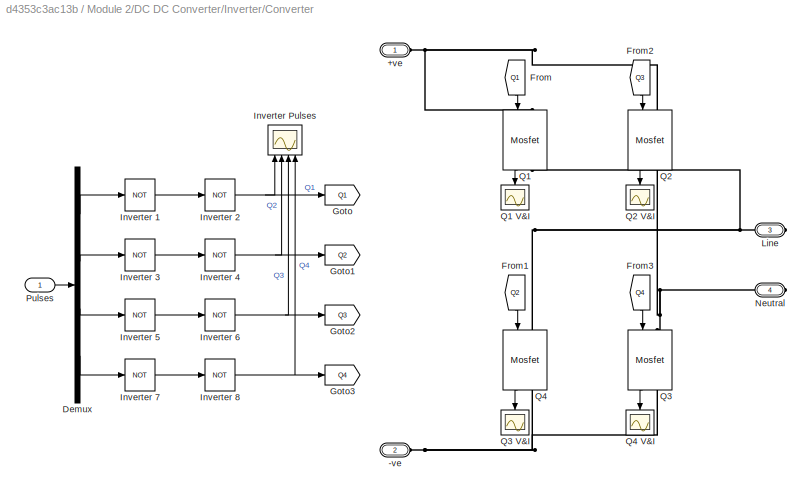
BLOCK [SubSystem] Module 2/DC DC Converter/Inverter/Converter
  Ports = [1, 0, 0, 0, 0, 2, 2]
  RequestExecContextInheritance = off
BLOCK [PMIOPort] Module 2/DC DC Converter/Inverter/Converter/+ve
  Side = Left
BLOCK [PMIOPort] Module 2/DC DC Converter/Inverter/Converter/-ve
  Port = 2
  Side = Left
BLOCK [Demux] Module 2/DC DC Converter/Inverter/Converter/Demux
  Ports = [1, 4]
BLOCK [From] Module 2/DC DC Converter/Inverter/Converter/From
  GotoTag = Q1
  NameLocation = left
BLOCK [From] Module 2/DC DC Converter/Inverter/Converter/From1
  GotoTag = Q2
  NameLocation = left
BLOCK [From] Module 2/DC DC Converter/Inverter/Converter/From2
  GotoTag = Q3
  NameLocation = left
BLOCK [From] Module 2/DC DC Converter/Inverter/Converter/From3
  GotoTag = Q4
  NameLocation = left
BLOCK [Goto] Module 2/DC DC Converter/Inverter/Converter/Goto
  GotoTag = Q1
BLOCK [Goto] Module 2/DC DC Converter/Inverter/Converter/Goto1
  GotoTag = Q2
BLOCK [Goto] Module 2/DC DC Converter/Inverter/Converter/Goto2
  GotoTag = Q3
BLOCK [Goto] Module 2/DC DC Converter/Inverter/Converter/Goto3
  GotoTag = Q4
BLOCK [Logic] Module 2/DC DC Converter/Inverter/Converter/Inverter 1
  AllPortsSameDT = off
  IconShape = distinctive
  NameLocation = top
  Operator = NOT
  OutDataTypeStr = boolean
  Ports = [1, 1]
BLOCK [Logic] Module 2/DC DC Converter/Inverter/Converter/Inverter 2
  AllPortsSameDT = off
  IconShape = distinctive
  NameLocation = top
  Operator = NOT
  OutDataTypeStr = boolean
  Ports = [1, 1]
BLOCK [Logic] Module 2/DC DC Converter/Inverter/Converter/Inverter 3
  AllPortsSameDT = off
  IconShape = distinctive
  NameLocation = top
  Operator = NOT
  OutDataTypeStr = boolean
  Ports = [1, 1]
BLOCK [Logic] Module 2/DC DC Converter/Inverter/Converter/Inverter 4
  AllPortsSameDT = off
  IconShape = distinctive
  NameLocation = top
  Operator = NOT
  OutDataTypeStr = boolean
  Ports = [1, 1]
BLOCK [Logic] Module 2/DC DC Converter/Inverter/Converter/Inverter 5
  AllPortsSameDT = off
  IconShape = distinctive
  NameLocation = top
  Operator = NOT
  OutDataTypeStr = boolean
  Ports = [1, 1]
BLOCK [Logic] Module 2/DC DC Converter/Inverter/Converter/Inverter 6
  AllPortsSameDT = off
  IconShape = distinctive
  NameLocation = top
  Operator = NOT
  OutDataTypeStr = boolean
  Ports = [1, 1]
BLOCK [Logic] Module 2/DC DC Converter/Inverter/Converter/Inverter 7
  AllPortsSameDT = off
  IconShape = distinctive
  NameLocation = top
  Operator = NOT
  OutDataTypeStr = boolean
  Ports = [1, 1]
BLOCK [Logic] Module 2/DC DC Converter/Inverter/Converter/Inverter 8
  AllPortsSameDT = off
  IconShape = distinctive
  NameLocation = top
  Operator = NOT
  OutDataTypeStr = boolean
  Ports = [1, 1]
BLOCK [Scope] Module 2/DC DC Converter/Inverter/Converter/Inverter Pulses
  Floating = off
  NameLocation = top
  NumInputPorts = 4
  Ports = [4]
BLOCK [PMIOPort] Module 2/DC DC Converter/Inverter/Converter/Line
  Port = 3
  Side = Right
BLOCK [PMIOPort] Module 2/DC DC Converter/Inverter/Converter/Neutral
  Port = 4
  Side = Right
BLOCK [Inport] Module 2/DC DC Converter/Inverter/Converter/Pulses
BLOCK [Reference] Module 2/DC DC Converter/Inverter/Converter/Q1  REF=powerlib/Power
Electronics/Mosfet
  NameLocation = left
  Ports = [1, 1, 0, 0, 0, 1, 1]
  SourceBlock = powerlib/Power\nElectronics/Mosfet
  SourceProductBaseCode = PS
  SourceType = Mosfet
BLOCK [Scope] Module 2/DC DC Converter/Inverter/Converter/Q1 V&I
  Commented = on
  Floating = off
  NameLocation = left
  NumInputPorts = 1
  Ports = [1]
BLOCK [Reference] Module 2/DC DC Converter/Inverter/Converter/Q2  REF=powerlib/Power
Electronics/Mosfet
  NameLocation = left
  Ports = [1, 1, 0, 0, 0, 1, 1]
  SourceBlock = powerlib/Power\nElectronics/Mosfet
  SourceProductBaseCode = PS
  SourceType = Mosfet
BLOCK [Scope] Module 2/DC DC Converter/Inverter/Converter/Q2 V&I
  Commented = on
  Floating = off
  NameLocation = left
  NumInputPorts = 1
  Ports = [1]
BLOCK [Reference] Module 2/DC DC Converter/Inverter/Converter/Q3  REF=powerlib/Power
Electronics/Mosfet
  NameLocation = left
  Ports = [1, 1, 0, 0, 0, 1, 1]
  SourceBlock = powerlib/Power\nElectronics/Mosfet
  SourceProductBaseCode = PS
  SourceType = Mosfet
BLOCK [Scope] Module 2/DC DC Converter/Inverter/Converter/Q3 V&I
  Commented = on
  Floating = off
  NameLocation = left
  NumInputPorts = 1
  Ports = [1]
BLOCK [Reference] Module 2/DC DC Converter/Inverter/Converter/Q4  REF=powerlib/Power
Electronics/Mosfet
  NameLocation = left
  Ports = [1, 1, 0, 0, 0, 1, 1]
  SourceBlock = powerlib/Power\nElectronics/Mosfet
  SourceProductBaseCode = PS
  SourceType = Mosfet
BLOCK [Scope] Module 2/DC DC Converter/Inverter/Converter/Q4 V&I
  Commented = on
  Floating = off
  NameLocation = left
  NumInputPorts = 1
  Ports = [1]
BLOCK [Inport] Module 2/DC DC Converter/Inverter/Ifeed
  NameLocation = top
  Port = 2
BLOCK [Inport] Module 2/DC DC Converter/Inverter/Iref
  NameLocation = top
BLOCK [Outport] Module 2/DC DC Converter/Inverter/Iref Main
  NameLocation = right
BLOCK [PMIOPort] Module 2/DC DC Converter/Inverter/Line
  NameLocation = top
  Port = 3
  Side = Right
BLOCK [PMIOPort] Module 2/DC DC Converter/Inverter/Neutral
  NameLocation = top
  Port = 4
  Side = Right
BLOCK [SubSystem] Module 2/DC DC Converter/Inverter/Pulse Generator
  NameLocation = right
  Ports = [3, 2]
  RequestExecContextInheritance = off
BLOCK [SubSystem] Module 2/DC DC Converter/Inverter/Pulse Generator/Close Loop
  NameLocation = top
  Ports = [3, 2]
  RequestExecContextInheritance = off
BLOCK [SubSystem] Module 2/DC DC Converter/Inverter/Pulse Generator/Close Loop/Current Loop
  NameLocation = top
  Ports = [2, 1]
  RequestExecContextInheritance = off
BLOCK [Scope] Module 2/DC DC Converter/Inverter/Pulse Generator/Close Loop/Current Loop/Current PI Parmaters
  Floating = off
  NumInputPorts = 8
  Ports = [8]
BLOCK [Sum] Module 2/DC DC Converter/Inverter/Pulse Generator/Close Loop/Current Loop/Error
  Inputs = |+-
  NameLocation = top
  Ports = [2, 1]
BLOCK [Inport] Module 2/DC DC Converter/Inverter/Pulse Generator/Close Loop/Current Loop/I Feedback
  NameLocation = top
  Port = 2
BLOCK [Inport] Module 2/DC DC Converter/Inverter/Pulse Generator/Close Loop/Current Loop/I Reference
  NameLocation = top
BLOCK [Sum] Module 2/DC DC Converter/Inverter/Pulse Generator/Close Loop/Current Loop/Integrate
  Inputs = |++
  NameLocation = top
  Ports = [2, 1]
BLOCK [Gain] Module 2/DC DC Converter/Inverter/Pulse Generator/Close Loop/Current Loop/Ki
  Gain = Ki_I
  NameLocation = top
BLOCK [Gain] Module 2/DC DC Converter/Inverter/Pulse Generator/Close Loop/Current Loop/Kp
  Gain = Kp_I
  NameLocation = top
BLOCK [Sum] Module 2/DC DC Converter/Inverter/Pulse Generator/Close Loop/Current Loop/PI
  Inputs = |++
  NameLocation = top
  Ports = [2, 1]
BLOCK [Saturate] Module 2/DC DC Converter/Inverter/Pulse Generator/Close Loop/Current Loop/PI Clamp
  LowerLimit = Duty_min
  NameLocation = top
  UpperLimit = Duty_max
BLOCK [Outport] Module 2/DC DC Converter/Inverter/Pulse Generator/Close Loop/Current Loop/PI Out
  NameLocation = top
BLOCK [UnitDelay] Module 2/DC DC Converter/Inverter/Pulse Generator/Close Loop/Current Loop/Previous Value
  HasFrameUpgradeWarning = on
  NameLocation = top
  SampleTime = -1
BLOCK [Saturate] Module 2/DC DC Converter/Inverter/Pulse Generator/Close Loop/Current Loop/Reference Clamp
  LowerLimit = 0
  NameLocation = top
  UpperLimit = I_ref
BLOCK [Display] Module 2/DC DC Converter/Inverter/Pulse Generator/Close Loop/Duty Cycle
  Decimation = 1
  NameLocation = top
  Ports = [1]
BLOCK [Inport] Module 2/DC DC Converter/Inverter/Pulse Generator/Close Loop/I Feedback
  Port = 2
BLOCK [Display] Module 2/DC DC Converter/Inverter/Pulse Generator/Close Loop/I Reference
  Decimation = 1
  Ports = [1]
BLOCK [Display] Module 2/DC DC Converter/Inverter/Pulse Generator/Close Loop/Iout avg
  Decimation = 1
  NameLocation = top
  Ports = [1]
BLOCK [Inport] Module 2/DC DC Converter/Inverter/Pulse Generator/Close Loop/Iref
  NameLocation = top
BLOCK [Outport] Module 2/DC DC Converter/Inverter/Pulse Generator/Close Loop/Iref Main
  Port = 2
BLOCK [ManualSwitch] Module 2/DC DC Converter/Inverter/Pulse Generator/Close Loop/Master//Slave Select
  CurrentSetting = 0
BLOCK [Outport] Module 2/DC DC Converter/Inverter/Pulse Generator/Close Loop/Phaseshift
  NameLocation = top
BLOCK [Inport] Module 2/DC DC Converter/Inverter/Pulse Generator/Close Loop/V Feedback
  NameLocation = top
  Port = 3
BLOCK [SubSystem] Module 2/DC DC Converter/Inverter/Pulse Generator/Close Loop/Voltage Loop
  NameLocation = top
  Ports = [1, 1]
  RequestExecContextInheritance = off
BLOCK [Reference] Module 2/DC DC Converter/Inverter/Pulse Generator/Close Loop/Voltage Loop/Closed-Loop PID Autotuner  REF=slctrlblks/Closed-Loop PID Autotuner
  Commented = on
  Ports = [3, 3]
  SourceBlock = slctrlblks/Closed-Loop PID Autotuner
  SourceProductBaseCode = SD
  SourceType = ClosedLoopOnlinePIDTuner
BLOCK [Display] Module 2/DC DC Converter/Inverter/Pulse Generator/Close Loop/Voltage Loop/Display
  Commented = on
  Decimation = 1
  Ports = [1]
BLOCK [Display] Module 2/DC DC Converter/Inverter/Pulse Generator/Close Loop/Voltage Loop/Display1
  Commented = on
  Decimation = 1
  Ports = [1]
BLOCK [Sum] Module 2/DC DC Converter/Inverter/Pulse Generator/Close Loop/Voltage Loop/Error
  Inputs = |+-
  NameLocation = top
  Ports = [2, 1]
BLOCK [Sum] Module 2/DC DC Converter/Inverter/Pulse Generator/Close Loop/Voltage Loop/Integration
  Inputs = |++
  NameLocation = top
  Ports = [2, 1]
BLOCK [Gain] Module 2/DC DC Converter/Inverter/Pulse Generator/Close Loop/Voltage Loop/Ki
  Gain = Ki_V
  NameLocation = top
BLOCK [Gain] Module 2/DC DC Converter/Inverter/Pulse Generator/Close Loop/Voltage Loop/Kp
  Gain = Kp_V
  NameLocation = top
BLOCK [Logic] Module 2/DC DC Converter/Inverter/Pulse Generator/Close Loop/Voltage Loop/Logical Operator
  AllPortsSameDT = off
  Commented = on
  IconShape = distinctive
  Operator = XOR
  OutDataTypeStr = boolean
  Ports = [2, 1]
BLOCK [Saturate] Module 2/DC DC Converter/Inverter/Pulse Generator/Close Loop/Voltage Loop/PI Clamp
  LowerLimit = 0
  NameLocation = top
  UpperLimit = I_ref
BLOCK [Outport] Module 2/DC DC Converter/Inverter/Pulse Generator/Close Loop/Voltage Loop/PI Out
  NameLocation = top
BLOCK [Sum] Module 2/DC DC Converter/Inverter/Pulse Generator/Close Loop/Voltage Loop/PI Output
  Inputs = |++
  NameLocation = top
  Ports = [2, 1]
BLOCK [Reference] Module 2/DC DC Converter/Inverter/Pulse Generator/Close Loop/Voltage Loop/PID Controller  REF=simulink/Continuous/PID Controller
  Commented = on
  Ports = [1, 1]
  SourceBlock = simulink/Continuous/PID Controller
  SourceProductBaseCode = SL
  SourceType = PID 1dof
BLOCK [UnitDelay] Module 2/DC DC Converter/Inverter/Pulse Generator/Close Loop/Voltage Loop/Previous Value
  HasFrameUpgradeWarning = on
  NameLocation = top
  SampleTime = -1
BLOCK [Reference] Module 2/DC DC Converter/Inverter/Pulse Generator/Close Loop/Voltage Loop/SoftStart Ramp  REF=simulink/Sources/Ramp
  NameLocation = top
  Ports = [0, 1]
  SourceBlock = simulink/Sources/Ramp
  SourceProductBaseCode = SL
  SourceType = Ramp
BLOCK [Step] Module 2/DC DC Converter/Inverter/Pulse Generator/Close Loop/Voltage Loop/Step
  Commented = on
  SampleTime = 0
  Time = 0
BLOCK [Step] Module 2/DC DC Converter/Inverter/Pulse Generator/Close Loop/Voltage Loop/Step1
  Commented = on
  SampleTime = 0
BLOCK [Inport] Module 2/DC DC Converter/Inverter/Pulse Generator/Close Loop/Voltage Loop/V Feedback
BLOCK [Saturate] Module 2/DC DC Converter/Inverter/Pulse Generator/Close Loop/Voltage Loop/V Reference
  LowerLimit = 0
  NameLocation = top
  UpperLimit = V_ref
BLOCK [Scope] Module 2/DC DC Converter/Inverter/Pulse Generator/Close Loop/Voltage Loop/Voltage PI Parmaters
  Floating = off
  NumInputPorts = 9
  Ports = [9]
BLOCK [Display] Module 2/DC DC Converter/Inverter/Pulse Generator/Close Loop/Vout avg
  Decimation = 1
  NameLocation = top
  Ports = [1]
BLOCK [SubSystem] Module 2/DC DC Converter/Inverter/Pulse Generator/Comparator
  NameLocation = top
  Ports = [1, 1]
  RequestExecContextInheritance = off
BLOCK [Constant] Module 2/DC DC Converter/Inverter/Pulse Generator/Comparator/180* Phaseshift
  Value = 180
BLOCK [Constant] Module 2/DC DC Converter/Inverter/Pulse Generator/Comparator/Carrier Bias
  Value = Carr_offset
BLOCK [Reference] Module 2/DC DC Converter/Inverter/Pulse Generator/Comparator/Carrier Generate  REF=powerlib_meascontrol/Pulse & Signal
Generators/Sawtooth
Generator
  Ports = [0, 1]
  SourceBlock = powerlib_meascontrol/Pulse & Signal\nGenerators/Sawtooth\nGenerator
  SourceProductBaseCode = PS
  SourceType = Sawtooth Generator
BLOCK [Gain] Module 2/DC DC Converter/Inverter/Pulse Generator/Comparator/Carrier Scaling
  Gain = Carr_scale
BLOCK [RelationalOperator] Module 2/DC DC Converter/Inverter/Pulse Generator/Comparator/Comparator 1 CMPA
  InputSameDT = off
  Operator = <=
  OutDataTypeStr = boolean
  Ports = [2, 1]
  RndMeth = Simplest
BLOCK [RelationalOperator] Module 2/DC DC Converter/Inverter/Pulse Generator/Comparator/Comparator 1 CMPB
  InputSameDT = off
  Operator = >
  OutDataTypeStr = boolean
  Ports = [2, 1]
  RndMeth = Simplest
BLOCK [RelationalOperator] Module 2/DC DC Converter/Inverter/Pulse Generator/Comparator/Comparator 2 CMPA
  InputSameDT = off
  Operator = <=
  OutDataTypeStr = boolean
  Ports = [2, 1]
  RndMeth = Simplest
BLOCK [RelationalOperator] Module 2/DC DC Converter/Inverter/Pulse Generator/Comparator/Comparator 2 CMPB
  InputSameDT = off
  Operator = >
  OutDataTypeStr = boolean
  Ports = [2, 1]
  RndMeth = Simplest
BLOCK [Constant] Module 2/DC DC Converter/Inverter/Pulse Generator/Comparator/Duty Cycle
  Value = Duty_fix
BLOCK [Gain] Module 2/DC DC Converter/Inverter/Pulse Generator/Comparator/Duty Cycle Scaling 1
  Gain = Duty_scale
BLOCK [Gain] Module 2/DC DC Converter/Inverter/Pulse Generator/Comparator/Duty Cycle Scaling 2
  Gain = Duty_scale
BLOCK [Sum] Module 2/DC DC Converter/Inverter/Pulse Generator/Comparator/Level Correction
  Inputs = |++
  NameLocation = top
  Ports = [2, 1]
BLOCK [Gain] Module 2/DC DC Converter/Inverter/Pulse Generator/Comparator/Modulating Wave Switching Period Scaling
  Gain = 1/f_sw
BLOCK [Gain] Module 2/DC DC Converter/Inverter/Pulse Generator/Comparator/Modulating Wave Unity Scaling
  Gain = 1/360
BLOCK [Mux] Module 2/DC DC Converter/Inverter/Pulse Generator/Comparator/Mux
  DisplayOption = bar
  Ports = [4, 1]
BLOCK [VariableTransportDelay] Module 2/DC DC Converter/Inverter/Pulse Generator/Comparator/Ninety Degree Phase Offset
  MaximumDelay = (PS_max/360)*(1/f_sw)
  MaximumPoints = 131072
  Ports = [2, 1]
BLOCK [Inport] Module 2/DC DC Converter/Inverter/Pulse Generator/Comparator/Phaseshift
BLOCK [Scope] Module 2/DC DC Converter/Inverter/Pulse Generator/Comparator/Pulse
  Floating = off
  NameLocation = top
  NumInputPorts = 4
  Ports = [4]
BLOCK [Outport] Module 2/DC DC Converter/Inverter/Pulse Generator/Comparator/Pulses
BLOCK [Inport] Module 2/DC DC Converter/Inverter/Pulse Generator/I feed
  NameLocation = top
  Port = 2
BLOCK [Inport] Module 2/DC DC Converter/Inverter/Pulse Generator/Iref
  NameLocation = top
BLOCK [Outport] Module 2/DC DC Converter/Inverter/Pulse Generator/Iref Main
  Port = 2
BLOCK [Outport] Module 2/DC DC Converter/Inverter/Pulse Generator/Pulses
  NameLocation = top
BLOCK [Inport] Module 2/DC DC Converter/Inverter/Pulse Generator/V Feed
  NameLocation = top
  Port = 3
BLOCK [Inport] Module 2/DC DC Converter/Inverter/Vfeed
  NameLocation = top
  Port = 3
BLOCK [Inport] Module 2/DC DC Converter/Iref
  NameLocation = top
BLOCK [Outport] Module 2/DC DC Converter/Iref Main
BLOCK [SubSystem] Module 2/DC DC Converter/Sensor
  Ports = [2, 2]
  RequestExecContextInheritance = off
BLOCK [Gain] Module 2/DC DC Converter/Sensor/Current 12bit ADC
  Gain = ADC_Res
  NameLocation = top
BLOCK [Gain] Module 2/DC DC Converter/Sensor/Current Transducer
  Gain = I_sense
  NameLocation = top
BLOCK [Inport] Module 2/DC DC Converter/Sensor/Iin
BLOCK [Outport] Module 2/DC DC Converter/Sensor/Iout
BLOCK [Inport] Module 2/DC DC Converter/Sensor/Vin
  Port = 2
BLOCK [Gain] Module 2/DC DC Converter/Sensor/Voltage 12bit ADC
  Gain = ADC_Res
BLOCK [Gain] Module 2/DC DC Converter/Sensor/Voltage Transducer
  Gain = V_sense
BLOCK [Outport] Module 2/DC DC Converter/Sensor/Vout
  Port = 2
BLOCK [Outport] Module 2/DC DC Converter/Vdc avg
  Port = 3
BLOCK [Outport] Module 2/Iout avg
  Port = 2
BLOCK [Inport] Module 2/Iref
  NameLocation = top
BLOCK [Outport] Module 2/Iref Main
  Port = 3
BLOCK [PMIOPort] Module 2/Neutral
  NameLocation = left
  Port = 6
  Side = Left
BLOCK [PMIOPort] Module 2/Rphase
  NameLocation = left
  Side = Left
BLOCK [Outport] Module 2/Vout avg
BLOCK [PMIOPort] Module 2/Yphase
  NameLocation = left
  Port = 2
  Side = Left
BLOCK [SubSystem] Module 3
  NameLocation = top
  Ports = [1, 3, 0, 0, 0, 4, 2]
  RequestExecContextInheritance = off
BLOCK [PMIOPort] Module 3/+ve OUT
  NameLocation = right
  Port = 4
  Side = Right
BLOCK [PMIOPort] Module 3/-ve OUT
  NameLocation = right
  Port = 5
  Side = Right
BLOCK [SubSystem] Module 3/3 Phase Rectifier
  NameLocation = top
  Ports = [0, 0, 0, 0, 0, 4, 2]
  RequestExecContextInheritance = off
BLOCK [PMIOPort] Module 3/3 Phase Rectifier/+ve
  Port = 4
  Side = Right
BLOCK [PMIOPort] Module 3/3 Phase Rectifier/-ve
  Port = 5
  Side = Right
BLOCK [SubSystem] Module 3/3 Phase Rectifier/3 Phase Rectifier
  NameLocation = top
  Ports = [0, 0, 0, 0, 0, 3, 2]
  RequestExecContextInheritance = off
BLOCK [PMIOPort] Module 3/3 Phase Rectifier/3 Phase Rectifier/+ve
  Port = 4
  Side = Right
BLOCK [PMIOPort] Module 3/3 Phase Rectifier/3 Phase Rectifier/-ve
  Port = 5
  Side = Right
BLOCK [PMIOPort] Module 3/3 Phase Rectifier/3 Phase Rectifier/B Phase
  Port = 3
  Side = Left
BLOCK [Reference] Module 3/3 Phase Rectifier/3 Phase Rectifier/D1  REF=powerlib/Power
Electronics/Diode
  NameLocation = right
  Ports = [0, 1, 0, 0, 0, 1, 1]
  SourceBlock = powerlib/Power\nElectronics/Diode
  SourceProductBaseCode = PS
  SourceType = Diode
BLOCK [Scope] Module 3/3 Phase Rectifier/3 Phase Rectifier/D1 V&I
  Commented = on
  Floating = off
  NameLocation = top
  NumInputPorts = 1
  Ports = [1]
BLOCK [Reference] Module 3/3 Phase Rectifier/3 Phase Rectifier/D2  REF=powerlib/Power
Electronics/Diode
  NameLocation = right
  Ports = [0, 1, 0, 0, 0, 1, 1]
  SourceBlock = powerlib/Power\nElectronics/Diode
  SourceProductBaseCode = PS
  SourceType = Diode
BLOCK [Scope] Module 3/3 Phase Rectifier/3 Phase Rectifier/D2 V&I
  Commented = on
  Floating = off
  NameLocation = top
  NumInputPorts = 1
  Ports = [1]
BLOCK [Reference] Module 3/3 Phase Rectifier/3 Phase Rectifier/D3  REF=powerlib/Power
Electronics/Diode
  NameLocation = right
  Ports = [0, 1, 0, 0, 0, 1, 1]
  SourceBlock = powerlib/Power\nElectronics/Diode
  SourceProductBaseCode = PS
  SourceType = Diode
BLOCK [Scope] Module 3/3 Phase Rectifier/3 Phase Rectifier/D3 V&I
  Commented = on
  Floating = off
  NameLocation = top
  NumInputPorts = 1
  Ports = [1]
BLOCK [Reference] Module 3/3 Phase Rectifier/3 Phase Rectifier/D4  REF=powerlib/Power
Electronics/Diode
  NameLocation = right
  Ports = [0, 1, 0, 0, 0, 1, 1]
  SourceBlock = powerlib/Power\nElectronics/Diode
  SourceProductBaseCode = PS
  SourceType = Diode
BLOCK [Scope] Module 3/3 Phase Rectifier/3 Phase Rectifier/D4 V&I
  Commented = on
  Floating = off
  NameLocation = top
  NumInputPorts = 1
  Ports = [1]
BLOCK [Reference] Module 3/3 Phase Rectifier/3 Phase Rectifier/D5  REF=powerlib/Power
Electronics/Diode
  NameLocation = right
  Ports = [0, 1, 0, 0, 0, 1, 1]
  SourceBlock = powerlib/Power\nElectronics/Diode
  SourceProductBaseCode = PS
  SourceType = Diode
BLOCK [Scope] Module 3/3 Phase Rectifier/3 Phase Rectifier/D5 V&I
  Commented = on
  Floating = off
  NameLocation = top
  NumInputPorts = 1
  Ports = [1]
BLOCK [Reference] Module 3/3 Phase Rectifier/3 Phase Rectifier/D6  REF=powerlib/Power
Electronics/Diode
  NameLocation = right
  Ports = [0, 1, 0, 0, 0, 1, 1]
  SourceBlock = powerlib/Power\nElectronics/Diode
  SourceProductBaseCode = PS
  SourceType = Diode
BLOCK [Scope] Module 3/3 Phase Rectifier/3 Phase Rectifier/D6 V&I
  Commented = on
  Floating = off
  NameLocation = top
  NumInputPorts = 1
  Ports = [1]
BLOCK [PMIOPort] Module 3/3 Phase Rectifier/3 Phase Rectifier/R Phase
  Side = Left
BLOCK [PMIOPort] Module 3/3 Phase Rectifier/3 Phase Rectifier/Y Phase
  Port = 2
  Side = Left
BLOCK [PMIOPort] Module 3/3 Phase Rectifier/Bphase
  Port = 3
  Side = Left
BLOCK [SubSystem] Module 3/3 Phase Rectifier/Filter
  NameLocation = top
  Ports = [0, 0, 0, 0, 0, 2, 3]
  RequestExecContextInheritance = off
BLOCK [PMIOPort] Module 3/3 Phase Rectifier/Filter/+ve IN
  Side = Left
BLOCK [PMIOPort] Module 3/3 Phase Rectifier/Filter/+ve OUT
  Port = 3
  Side = Right
BLOCK [PMIOPort] Module 3/3 Phase Rectifier/Filter/-ve In
  Port = 2
  Side = Left
BLOCK [PMIOPort] Module 3/3 Phase Rectifier/Filter/-ve OUT
  Port = 5
  Side = Right
BLOCK [Reference] Module 3/3 Phase Rectifier/Filter/Cdc 1  REF=powerlib/Elements/Series RLC Branch
  NameLocation = left
  Ports = [0, 0, 0, 0, 0, 1, 1]
  SourceBlock = powerlib/Elements/Series RLC Branch
  SourceProductBaseCode = PS
  SourceType = Series RLC Branch
BLOCK [Reference] Module 3/3 Phase Rectifier/Filter/Cdc 2  REF=powerlib/Elements/Series RLC Branch
  NameLocation = left
  Ports = [0, 0, 0, 0, 0, 1, 1]
  SourceBlock = powerlib/Elements/Series RLC Branch
  SourceProductBaseCode = PS
  SourceType = Series RLC Branch
BLOCK [Scope] Module 3/3 Phase Rectifier/Filter/DC Bus Filter Parameters
  Floating = off
  NameLocation = top
  NumInputPorts = 2
  Ports = [2]
  ScopeSpecificationString = Simulink.scopes.TimeScopeBlockCfg('CurrentConfiguration', extmgr.ConfigurationSet(extmgr.Configuration('Core','General UI',true),extmgr.Configuration('Core','Source UI',true),extmgr.Configuration('Sources','WiredSimulink',true,'DataLoggingVariableName','Output','DataLoggingSaveFormat','StructureWithTime'),extmgr.Configuration('Visuals','Time Domain',true,'SerializedDisplays',{struct('MinYLimReal',...<+2076ch>
BLOCK [Reference] Module 3/3 Phase Rectifier/Filter/Iout  REF=powerlib/Measurements/Current Measurement
  Ports = [0, 1, 0, 0, 0, 1, 1]
  SourceBlock = powerlib/Measurements/Current Measurement
  SourceProductBaseCode = PS
  SourceType = Current Measurement
  UserDataPersistent = on
BLOCK [PMIOPort] Module 3/3 Phase Rectifier/Filter/Mid
  Port = 4
  Side = Right
BLOCK [Reference] Module 3/3 Phase Rectifier/Filter/Vout  REF=powerlib/Measurements/Voltage Measurement
  Ports = [0, 1, 0, 0, 0, 2]
  SourceBlock = powerlib/Measurements/Voltage Measurement
  SourceProductBaseCode = PS
  SourceType = Voltage Measurement
  UserDataPersistent = on
BLOCK [PMIOPort] Module 3/3 Phase Rectifier/Neutral
  Port = 6
  Side = Left
BLOCK [PMIOPort] Module 3/3 Phase Rectifier/Rphase
  Side = Left
BLOCK [PMIOPort] Module 3/3 Phase Rectifier/Yphase
  Port = 2
  Side = Left
BLOCK [PMIOPort] Module 3/Bphase
  NameLocation = left
  Port = 3
  Side = Left
BLOCK [SubSystem] Module 3/DC DC Converter
  NameLocation = top
  Ports = [1, 3, 0, 0, 0, 2, 2]
  RequestExecContextInheritance = off
BLOCK [PMIOPort] Module 3/DC DC Converter/+ve IN
  NameLocation = top
  Side = Left
BLOCK [PMIOPort] Module 3/DC DC Converter/+ve OUT
  NameLocation = top
  Port = 3
  Side = Right
BLOCK [PMIOPort] Module 3/DC DC Converter/-ve IN
  NameLocation = top
  Port = 2
  Side = Left
BLOCK [PMIOPort] Module 3/DC DC Converter/-ve OUT
  NameLocation = top
  Port = 4
  Side = Right
BLOCK [SubSystem] Module 3/DC DC Converter/Centre Tap Rectifier
  Ports = [0, 0, 0, 0, 0, 3, 2]
  RequestExecContextInheritance = off
BLOCK [PMIOPort] Module 3/DC DC Converter/Centre Tap Rectifier/+ve
  Port = 4
  Side = Right
BLOCK [PMIOPort] Module 3/DC DC Converter/Centre Tap Rectifier/-ve
  Port = 5
  Side = Right
BLOCK [PMIOPort] Module 3/DC DC Converter/Centre Tap Rectifier/Centre-tap
  Port = 2
  Side = Left
BLOCK [Reference] Module 3/DC DC Converter/Centre Tap Rectifier/D1  REF=powerlib/Power
Electronics/Diode
  Ports = [0, 1, 0, 0, 0, 1, 1]
  SourceBlock = powerlib/Power\nElectronics/Diode
  SourceProductBaseCode = PS
  SourceType = Diode
BLOCK [Scope] Module 3/DC DC Converter/Centre Tap Rectifier/D1 V&I
  Commented = on
  Floating = off
  NameLocation = right
  NumInputPorts = 1
  Ports = [1]
BLOCK [Reference] Module 3/DC DC Converter/Centre Tap Rectifier/D2  REF=powerlib/Power
Electronics/Diode
  Ports = [0, 1, 0, 0, 0, 1, 1]
  SourceBlock = powerlib/Power\nElectronics/Diode
  SourceProductBaseCode = PS
  SourceType = Diode
BLOCK [Scope] Module 3/DC DC Converter/Centre Tap Rectifier/D2 V&I1
  Commented = on
  Floating = off
  NameLocation = right
  NumInputPorts = 1
  Ports = [1]
BLOCK [PMIOPort] Module 3/DC DC Converter/Centre Tap Rectifier/Line
  Side = Left
BLOCK [PMIOPort] Module 3/DC DC Converter/Centre Tap Rectifier/Neutral
  Port = 3
  Side = Left
BLOCK [SubSystem] Module 3/DC DC Converter/Chopper
  Ports = [0, 4, 0, 0, 0, 2, 2]
  RequestExecContextInheritance = off
BLOCK [Outport] Module 3/DC DC Converter/Chopper/ Idc
  NameLocation = right
  Port = 4
BLOCK [PMIOPort] Module 3/DC DC Converter/Chopper/+ve IN
  Side = Left
BLOCK [PMIOPort] Module 3/DC DC Converter/Chopper/+ve OUT
  NameLocation = top
  Port = 3
  Side = Right
BLOCK [PMIOPort] Module 3/DC DC Converter/Chopper/-ve IN
  Port = 2
  Side = Left
BLOCK [PMIOPort] Module 3/DC DC Converter/Chopper/-ve OUT
  NameLocation = top
  Port = 4
  Side = Right
BLOCK [SubSystem] Module 3/DC DC Converter/Chopper/Chop Pulse Generator
  Ports = [1, 1]
  RequestExecContextInheritance = off
BLOCK [Constant] Module 3/DC DC Converter/Chopper/Chop Pulse Generator/Carrier Bias
  Value = Carr_offset
BLOCK [Gain] Module 3/DC DC Converter/Chopper/Chop Pulse Generator/Carrier Scaling
  Gain = Carr_scale
  NameLocation = top
BLOCK [Outport] Module 3/DC DC Converter/Chopper/Chop Pulse Generator/Chop Pulse
  NameLocation = top
BLOCK [Reference] Module 3/DC DC Converter/Chopper/Chop Pulse Generator/Chopping Carrier  REF=powerlib_meascontrol/Pulse & Signal
Generators/Sawtooth
Generator
  NameLocation = top
  Ports = [0, 1]
  SourceBlock = powerlib_meascontrol/Pulse & Signal\nGenerators/Sawtooth\nGenerator
  SourceProductBaseCode = PS
  SourceType = Sawtooth Generator
BLOCK [Constant] Module 3/DC DC Converter/Chopper/Chop Pulse Generator/Chopping Duty Cycle
  Value = Duty_chop
BLOCK [Scope] Module 3/DC DC Converter/Chopper/Chop Pulse Generator/Chopping Pulse Parameters
  Commented = on
  Floating = off
  NameLocation = top
  NumInputPorts = 4
  Ports = [4]
BLOCK [RelationalOperator] Module 3/DC DC Converter/Chopper/Chop Pulse Generator/Comparator
  InputSameDT = off
  NameLocation = top
  Operator = <=
  OutDataTypeStr = boolean
  Ports = [2, 1]
  RndMeth = Simplest
BLOCK [Gain] Module 3/DC DC Converter/Chopper/Chop Pulse Generator/Duty Cycle Scaling
  Gain = Duty_scale
BLOCK [Logic] Module 3/DC DC Converter/Chopper/Chop Pulse Generator/Fault Condition Check
  AllPortsSameDT = off
  IconShape = distinctive
  NameLocation = top
  OutDataTypeStr = boolean
  Ports = [2, 1]
BLOCK [Sum] Module 3/DC DC Converter/Chopper/Chop Pulse Generator/Level Correction
  Inputs = |++
  NameLocation = top
  Ports = [2, 1]
BLOCK [Inport] Module 3/DC DC Converter/Chopper/Chop Pulse Generator/Over Voltage Fault
  NameLocation = top
BLOCK [SubSystem] Module 3/DC DC Converter/Chopper/Fault Detection
  Ports = [2, 1]
  RequestExecContextInheritance = off
BLOCK [Constant] Module 3/DC DC Converter/Chopper/Fault Detection/Constant
  Value = OV_limit
BLOCK [Constant] Module 3/DC DC Converter/Chopper/Fault Detection/Constant1
  Value = UV_limit
BLOCK [Constant] Module 3/DC DC Converter/Chopper/Fault Detection/Constant2
  Value = OC_limit
BLOCK [Constant] Module 3/DC DC Converter/Chopper/Fault Detection/Constant3
  Value = UC_limit
BLOCK [Scope] Module 3/DC DC Converter/Chopper/Fault Detection/Faults
  Commented = on
  Floating = off
  NameLocation = top
  NumInputPorts = 4
  Ports = [4]
BLOCK [RelationalOperator] Module 3/DC DC Converter/Chopper/Fault Detection/GreaterThan
  InputSameDT = off
  OutDataTypeStr = boolean
  Ports = [2, 1]
  RndMeth = Simplest
BLOCK [RelationalOperator] Module 3/DC DC Converter/Chopper/Fault Detection/GreaterThan1
  InputSameDT = off
  Operator = <=
  OutDataTypeStr = boolean
  Ports = [2, 1]
  RndMeth = Simplest
BLOCK [RelationalOperator] Module 3/DC DC Converter/Chopper/Fault Detection/GreaterThan2
  InputSameDT = off
  OutDataTypeStr = boolean
  Ports = [2, 1]
  RndMeth = Simplest
BLOCK [RelationalOperator] Module 3/DC DC Converter/Chopper/Fault Detection/GreaterThan3
  InputSameDT = off
  Operator = <=
  OutDataTypeStr = boolean
  Ports = [2, 1]
  RndMeth = Simplest
BLOCK [Inport] Module 3/DC DC Converter/Chopper/Fault Detection/I Output
  Port = 2
BLOCK [Outport] Module 3/DC DC Converter/Chopper/Fault Detection/OV Fault
BLOCK [Inport] Module 3/DC DC Converter/Chopper/Fault Detection/V Output
BLOCK [Outport] Module 3/DC DC Converter/Chopper/Idc avg
  NameLocation = right
BLOCK [Reference] Module 3/DC DC Converter/Chopper/Io avg  REF=powerlib_meascontrol/Measurements/Mean
  NameLocation = top
  Ports = [1, 1]
  SourceBlock = powerlib_meascontrol/Measurements/Mean
  SourceProductBaseCode = PS
  SourceType = Mean
BLOCK [Reference] Module 3/DC DC Converter/Chopper/Iout  REF=powerlib/Measurements/Current Measurement
  Ports = [0, 1, 0, 0, 0, 1, 1]
  SourceBlock = powerlib/Measurements/Current Measurement
  SourceProductBaseCode = PS
  SourceType = Current Measurement
  UserDataPersistent = on
BLOCK [Scope] Module 3/DC DC Converter/Chopper/Out Parameters
  Floating = off
  NameLocation = top
  NumInputPorts = 2
  Ports = [2]
  ScopeSpecificationString = Simulink.scopes.TimeScopeBlockCfg('CurrentConfiguration', extmgr.ConfigurationSet(extmgr.Configuration('Core','General UI',true),extmgr.Configuration('Core','Source UI',true),extmgr.Configuration('Sources','WiredSimulink',true,'DataLoggingVariableName','Output','DataLoggingSaveFormat','StructureWithTime'),extmgr.Configuration('Visuals','Time Domain',true,'SerializedDisplays',{struct('MinYLimReal',...<+2081ch>
BLOCK [Reference] Module 3/DC DC Converter/Chopper/Qchop  REF=powerlib/Power
Electronics/IGBT
  NameLocation = left
  Ports = [1, 1, 0, 0, 0, 1, 1]
  SourceBlock = powerlib/Power\nElectronics/IGBT
  SourceProductBaseCode = PS
  SourceType = IGBT
BLOCK [Scope] Module 3/DC DC Converter/Chopper/Qchop V&I
  Commented = on
  Floating = off
  NumInputPorts = 1
  Ports = [1]
BLOCK [Reference] Module 3/DC DC Converter/Chopper/Rchop  REF=powerlib/Elements/Series RLC Branch
  NameLocation = left
  Ports = [0, 0, 0, 0, 0, 1, 1]
  SourceBlock = powerlib/Elements/Series RLC Branch
  SourceProductBaseCode = PS
  SourceType = Series RLC Branch
BLOCK [Outport] Module 3/DC DC Converter/Chopper/Vdc
  NameLocation = right
  Port = 3
BLOCK [Outport] Module 3/DC DC Converter/Chopper/Vdc avg
  NameLocation = right
  Port = 2
BLOCK [Reference] Module 3/DC DC Converter/Chopper/Vo avg  REF=powerlib_meascontrol/Measurements/Mean
  Ports = [1, 1]
  SourceBlock = powerlib_meascontrol/Measurements/Mean
  SourceProductBaseCode = PS
  SourceType = Mean
BLOCK [Reference] Module 3/DC DC Converter/Chopper/Vout  REF=powerlib/Measurements/Voltage Measurement
  Ports = [0, 1, 0, 0, 0, 2]
  SourceBlock = powerlib/Measurements/Voltage Measurement
  SourceProductBaseCode = PS
  SourceType = Voltage Measurement
  UserDataPersistent = on
BLOCK [SubSystem] Module 3/DC DC Converter/DC Bus
  Ports = [0, 0, 0, 0, 0, 2, 2]
  RequestExecContextInheritance = off
BLOCK [PMIOPort] Module 3/DC DC Converter/DC Bus/+ve IN
  Side = Left
BLOCK [PMIOPort] Module 3/DC DC Converter/DC Bus/+ve OUT
  Port = 3
  Side = Right
BLOCK [PMIOPort] Module 3/DC DC Converter/DC Bus/-ve IN
  Port = 2
  Side = Left
BLOCK [PMIOPort] Module 3/DC DC Converter/DC Bus/-ve OUT
  Port = 4
  Side = Right
BLOCK [Scope] Module 3/DC DC Converter/DC Bus/DC Bus Parameter
  Commented = on
  Floating = off
  NumInputPorts = 2
  Ports = [2]
BLOCK [Reference] Module 3/DC DC Converter/DC Bus/Idc filt  REF=powerlib/Measurements/Current Measurement
  NameLocation = top
  Ports = [0, 1, 0, 0, 0, 1, 1]
  SourceBlock = powerlib/Measurements/Current Measurement
  SourceProductBaseCode = PS
  SourceType = Current Measurement
  UserDataPersistent = on
BLOCK [Reference] Module 3/DC DC Converter/DC Bus/L bus  REF=powerlib/Elements/Series RLC Branch
  Ports = [0, 0, 0, 0, 0, 1, 1]
  SourceBlock = powerlib/Elements/Series RLC Branch
  SourceProductBaseCode = PS
  SourceType = Series RLC Branch
BLOCK [Reference] Module 3/DC DC Converter/DC Bus/Vdc  REF=powerlib/Measurements/Voltage Measurement
  Ports = [0, 1, 0, 0, 0, 2]
  SourceBlock = powerlib/Measurements/Voltage Measurement
  SourceProductBaseCode = PS
  SourceType = Voltage Measurement
  UserDataPersistent = on
BLOCK [SubSystem] Module 3/DC DC Converter/Filter
  Ports = [0, 0, 0, 0, 0, 2, 2]
  RequestExecContextInheritance = off
BLOCK [PMIOPort] Module 3/DC DC Converter/Filter/+ve IN
  Side = Left
BLOCK [PMIOPort] Module 3/DC DC Converter/Filter/+ve OUT
  Port = 3
  Side = Right
BLOCK [PMIOPort] Module 3/DC DC Converter/Filter/-ve IN
  Port = 2
  Side = Left
BLOCK [PMIOPort] Module 3/DC DC Converter/Filter/-ve OUT
  Port = 4
  Side = Right
BLOCK [Reference] Module 3/DC DC Converter/Filter/C out  REF=powerlib/Elements/Series RLC Branch
  NameLocation = right
  Ports = [0, 0, 0, 0, 0, 1, 1]
  SourceBlock = powerlib/Elements/Series RLC Branch
  SourceProductBaseCode = PS
  SourceType = Series RLC Branch
BLOCK [Reference] Module 3/DC DC Converter/Filter/I C Filter  REF=powerlib/Measurements/Current Measurement
  NameLocation = left
  Ports = [0, 1, 0, 0, 0, 1, 1]
  SourceBlock = powerlib/Measurements/Current Measurement
  SourceProductBaseCode = PS
  SourceType = Current Measurement
  UserDataPersistent = on
BLOCK [Reference] Module 3/DC DC Converter/Filter/I out  REF=powerlib/Measurements/Current Measurement
  Ports = [0, 1, 0, 0, 0, 1, 1]
  SourceBlock = powerlib/Measurements/Current Measurement
  SourceProductBaseCode = PS
  SourceType = Current Measurement
  UserDataPersistent = on
BLOCK [Scope] Module 3/DC DC Converter/Filter/Output Filter Parameters
  Commented = on
  Floating = off
  NumInputPorts = 2
  Ports = [2]
  ScopeSpecificationString = Simulink.scopes.TimeScopeBlockCfg('CurrentConfiguration', extmgr.ConfigurationSet(extmgr.Configuration('Core','General UI',true),extmgr.Configuration('Core','Source UI',true),extmgr.Configuration('Sources','WiredSimulink',true,'DataLoggingVariableName','ScopeData1'),extmgr.Configuration('Visuals','Time Domain',true,'SerializedDisplays',{struct('MinYLimReal','-275.03133','MaxYLimReal','737.14072','...<+1416ch>
BLOCK [SubSystem] Module 3/DC DC Converter/HF Transformer
  Ports = [0, 0, 0, 0, 0, 2, 3]
  RequestExecContextInheritance = off
BLOCK [PMIOPort] Module 3/DC DC Converter/HF Transformer/CT
  Port = 4
  Side = Right
BLOCK [Reference] Module 3/DC DC Converter/HF Transformer/Centre-Tap Transformer 40:1  REF=powerlib/Elements/Linear Transformer
  Ports = [0, 0, 0, 0, 0, 2, 4]
  SourceBlock = powerlib/Elements/Linear Transformer
  SourceProductBaseCode = PS
  SourceType = Linear Transformer
BLOCK [Scope] Module 3/DC DC Converter/HF Transformer/High Frequency Transformer Parameters
  Commented = on
  Floating = off
  NumInputPorts = 5
  Ports = [5]
BLOCK [Reference] Module 3/DC DC Converter/HF Transformer/Ipri  REF=powerlib/Measurements/Current Measurement
  NameLocation = top
  Ports = [0, 1, 0, 0, 0, 1, 1]
  SourceBlock = powerlib/Measurements/Current Measurement
  SourceProductBaseCode = PS
  SourceType = Current Measurement
  UserDataPersistent = on
BLOCK [Reference] Module 3/DC DC Converter/HF Transformer/Isec  REF=powerlib/Measurements/Current Measurement
  NameLocation = top
  Ports = [0, 1, 0, 0, 0, 1, 1]
  SourceBlock = powerlib/Measurements/Current Measurement
  SourceProductBaseCode = PS
  SourceType = Current Measurement
  UserDataPersistent = on
BLOCK [PMIOPort] Module 3/DC DC Converter/HF Transformer/L pri
  Side = Left
BLOCK [PMIOPort] Module 3/DC DC Converter/HF Transformer/L sec
  Port = 3
  Side = Right
BLOCK [PMIOPort] Module 3/DC DC Converter/HF Transformer/N pri
  Port = 2
  Side = Left
BLOCK [PMIOPort] Module 3/DC DC Converter/HF Transformer/N sec
  Port = 5
  Side = Right
BLOCK [Reference] Module 3/DC DC Converter/HF Transformer/Vpri  REF=powerlib/Measurements/Voltage Measurement
  NameLocation = top
  Ports = [0, 1, 0, 0, 0, 2]
  SourceBlock = powerlib/Measurements/Voltage Measurement
  SourceProductBaseCode = PS
  SourceType = Voltage Measurement
  UserDataPersistent = on
BLOCK [Reference] Module 3/DC DC Converter/HF Transformer/Vsec1  REF=powerlib/Measurements/Voltage Measurement
  NameLocation = top
  Ports = [0, 1, 0, 0, 0, 2]
  SourceBlock = powerlib/Measurements/Voltage Measurement
  SourceProductBaseCode = PS
  SourceType = Voltage Measurement
  UserDataPersistent = on
BLOCK [Reference] Module 3/DC DC Converter/HF Transformer/Vsec2  REF=powerlib/Measurements/Voltage Measurement
  NameLocation = top
  Ports = [0, 1, 0, 0, 0, 2]
  SourceBlock = powerlib/Measurements/Voltage Measurement
  SourceProductBaseCode = PS
  SourceType = Voltage Measurement
  UserDataPersistent = on
BLOCK [Outport] Module 3/DC DC Converter/Idc avg
  Port = 2
BLOCK [SubSystem] Module 3/DC DC Converter/Inverter
  Ports = [3, 1, 0, 0, 0, 2, 2]
  RequestExecContextInheritance = off
BLOCK [PMIOPort] Module 3/DC DC Converter/Inverter/+ve
  NameLocation = top
  Side = Left
BLOCK [PMIOPort] Module 3/DC DC Converter/Inverter/-ve
  NameLocation = top
  Port = 2
  Side = Left
BLOCK [SubSystem] Module 3/DC DC Converter/Inverter/Converter
  Ports = [1, 0, 0, 0, 0, 2, 2]
  RequestExecContextInheritance = off
BLOCK [PMIOPort] Module 3/DC DC Converter/Inverter/Converter/+ve
  Side = Left
BLOCK [PMIOPort] Module 3/DC DC Converter/Inverter/Converter/-ve
  Port = 2
  Side = Left
BLOCK [Demux] Module 3/DC DC Converter/Inverter/Converter/Demux
  Ports = [1, 4]
BLOCK [From] Module 3/DC DC Converter/Inverter/Converter/From
  GotoTag = Q1
  NameLocation = left
BLOCK [From] Module 3/DC DC Converter/Inverter/Converter/From1
  GotoTag = Q2
  NameLocation = left
BLOCK [From] Module 3/DC DC Converter/Inverter/Converter/From2
  GotoTag = Q3
  NameLocation = left
BLOCK [From] Module 3/DC DC Converter/Inverter/Converter/From3
  GotoTag = Q4
  NameLocation = left
BLOCK [Goto] Module 3/DC DC Converter/Inverter/Converter/Goto
  GotoTag = Q1
BLOCK [Goto] Module 3/DC DC Converter/Inverter/Converter/Goto1
  GotoTag = Q2
BLOCK [Goto] Module 3/DC DC Converter/Inverter/Converter/Goto2
  GotoTag = Q3
BLOCK [Goto] Module 3/DC DC Converter/Inverter/Converter/Goto3
  GotoTag = Q4
BLOCK [Logic] Module 3/DC DC Converter/Inverter/Converter/Inverter 1
  AllPortsSameDT = off
  IconShape = distinctive
  NameLocation = top
  Operator = NOT
  OutDataTypeStr = boolean
  Ports = [1, 1]
BLOCK [Logic] Module 3/DC DC Converter/Inverter/Converter/Inverter 2
  AllPortsSameDT = off
  IconShape = distinctive
  NameLocation = top
  Operator = NOT
  OutDataTypeStr = boolean
  Ports = [1, 1]
BLOCK [Logic] Module 3/DC DC Converter/Inverter/Converter/Inverter 3
  AllPortsSameDT = off
  IconShape = distinctive
  NameLocation = top
  Operator = NOT
  OutDataTypeStr = boolean
  Ports = [1, 1]
BLOCK [Logic] Module 3/DC DC Converter/Inverter/Converter/Inverter 4
  AllPortsSameDT = off
  IconShape = distinctive
  NameLocation = top
  Operator = NOT
  OutDataTypeStr = boolean
  Ports = [1, 1]
BLOCK [Logic] Module 3/DC DC Converter/Inverter/Converter/Inverter 5
  AllPortsSameDT = off
  IconShape = distinctive
  NameLocation = top
  Operator = NOT
  OutDataTypeStr = boolean
  Ports = [1, 1]
BLOCK [Logic] Module 3/DC DC Converter/Inverter/Converter/Inverter 6
  AllPortsSameDT = off
  IconShape = distinctive
  NameLocation = top
  Operator = NOT
  OutDataTypeStr = boolean
  Ports = [1, 1]
BLOCK [Logic] Module 3/DC DC Converter/Inverter/Converter/Inverter 7
  AllPortsSameDT = off
  IconShape = distinctive
  NameLocation = top
  Operator = NOT
  OutDataTypeStr = boolean
  Ports = [1, 1]
BLOCK [Logic] Module 3/DC DC Converter/Inverter/Converter/Inverter 8
  AllPortsSameDT = off
  IconShape = distinctive
  NameLocation = top
  Operator = NOT
  OutDataTypeStr = boolean
  Ports = [1, 1]
BLOCK [Scope] Module 3/DC DC Converter/Inverter/Converter/Inverter Pulses
  Floating = off
  NameLocation = top
  NumInputPorts = 4
  Ports = [4]
BLOCK [PMIOPort] Module 3/DC DC Converter/Inverter/Converter/Line
  Port = 3
  Side = Right
BLOCK [PMIOPort] Module 3/DC DC Converter/Inverter/Converter/Neutral
  Port = 4
  Side = Right
BLOCK [Inport] Module 3/DC DC Converter/Inverter/Converter/Pulses
BLOCK [Reference] Module 3/DC DC Converter/Inverter/Converter/Q1  REF=powerlib/Power
Electronics/Mosfet
  NameLocation = left
  Ports = [1, 1, 0, 0, 0, 1, 1]
  SourceBlock = powerlib/Power\nElectronics/Mosfet
  SourceProductBaseCode = PS
  SourceType = Mosfet
BLOCK [Scope] Module 3/DC DC Converter/Inverter/Converter/Q1 V&I
  Commented = on
  Floating = off
  NameLocation = left
  NumInputPorts = 1
  Ports = [1]
BLOCK [Reference] Module 3/DC DC Converter/Inverter/Converter/Q2  REF=powerlib/Power
Electronics/Mosfet
  NameLocation = left
  Ports = [1, 1, 0, 0, 0, 1, 1]
  SourceBlock = powerlib/Power\nElectronics/Mosfet
  SourceProductBaseCode = PS
  SourceType = Mosfet
BLOCK [Scope] Module 3/DC DC Converter/Inverter/Converter/Q2 V&I
  Commented = on
  Floating = off
  NameLocation = left
  NumInputPorts = 1
  Ports = [1]
BLOCK [Reference] Module 3/DC DC Converter/Inverter/Converter/Q3  REF=powerlib/Power
Electronics/Mosfet
  NameLocation = left
  Ports = [1, 1, 0, 0, 0, 1, 1]
  SourceBlock = powerlib/Power\nElectronics/Mosfet
  SourceProductBaseCode = PS
  SourceType = Mosfet
BLOCK [Scope] Module 3/DC DC Converter/Inverter/Converter/Q3 V&I
  Commented = on
  Floating = off
  NameLocation = left
  NumInputPorts = 1
  Ports = [1]
BLOCK [Reference] Module 3/DC DC Converter/Inverter/Converter/Q4  REF=powerlib/Power
Electronics/Mosfet
  NameLocation = left
  Ports = [1, 1, 0, 0, 0, 1, 1]
  SourceBlock = powerlib/Power\nElectronics/Mosfet
  SourceProductBaseCode = PS
  SourceType = Mosfet
BLOCK [Scope] Module 3/DC DC Converter/Inverter/Converter/Q4 V&I
  Commented = on
  Floating = off
  NameLocation = left
  NumInputPorts = 1
  Ports = [1]
BLOCK [Inport] Module 3/DC DC Converter/Inverter/Ifeed
  NameLocation = top
  Port = 2
BLOCK [Inport] Module 3/DC DC Converter/Inverter/Iref
  NameLocation = top
BLOCK [Outport] Module 3/DC DC Converter/Inverter/Iref Main
  NameLocation = right
BLOCK [PMIOPort] Module 3/DC DC Converter/Inverter/Line
  NameLocation = top
  Port = 3
  Side = Right
BLOCK [PMIOPort] Module 3/DC DC Converter/Inverter/Neutral
  NameLocation = top
  Port = 4
  Side = Right
BLOCK [SubSystem] Module 3/DC DC Converter/Inverter/Pulse Generator
  NameLocation = right
  Ports = [3, 2]
  RequestExecContextInheritance = off
BLOCK [SubSystem] Module 3/DC DC Converter/Inverter/Pulse Generator/Close Loop
  NameLocation = top
  Ports = [3, 2]
  RequestExecContextInheritance = off
BLOCK [SubSystem] Module 3/DC DC Converter/Inverter/Pulse Generator/Close Loop/Current Loop
  NameLocation = top
  Ports = [2, 1]
  RequestExecContextInheritance = off
BLOCK [Scope] Module 3/DC DC Converter/Inverter/Pulse Generator/Close Loop/Current Loop/Current PI Parmaters
  Floating = off
  NumInputPorts = 8
  Ports = [8]
BLOCK [Sum] Module 3/DC DC Converter/Inverter/Pulse Generator/Close Loop/Current Loop/Error
  Inputs = |+-
  NameLocation = top
  Ports = [2, 1]
BLOCK [Inport] Module 3/DC DC Converter/Inverter/Pulse Generator/Close Loop/Current Loop/I Feedback
  NameLocation = top
  Port = 2
BLOCK [Inport] Module 3/DC DC Converter/Inverter/Pulse Generator/Close Loop/Current Loop/I Reference
  NameLocation = top
BLOCK [Sum] Module 3/DC DC Converter/Inverter/Pulse Generator/Close Loop/Current Loop/Integrate
  Inputs = |++
  NameLocation = top
  Ports = [2, 1]
BLOCK [Gain] Module 3/DC DC Converter/Inverter/Pulse Generator/Close Loop/Current Loop/Ki
  Gain = Ki_I
  NameLocation = top
BLOCK [Gain] Module 3/DC DC Converter/Inverter/Pulse Generator/Close Loop/Current Loop/Kp
  Gain = Kp_I
  NameLocation = top
BLOCK [Sum] Module 3/DC DC Converter/Inverter/Pulse Generator/Close Loop/Current Loop/PI
  Inputs = |++
  NameLocation = top
  Ports = [2, 1]
BLOCK [Saturate] Module 3/DC DC Converter/Inverter/Pulse Generator/Close Loop/Current Loop/PI Clamp
  LowerLimit = Duty_min
  NameLocation = top
  UpperLimit = Duty_max
BLOCK [Outport] Module 3/DC DC Converter/Inverter/Pulse Generator/Close Loop/Current Loop/PI Out
  NameLocation = top
BLOCK [UnitDelay] Module 3/DC DC Converter/Inverter/Pulse Generator/Close Loop/Current Loop/Previous Value
  HasFrameUpgradeWarning = on
  NameLocation = top
  SampleTime = -1
BLOCK [Saturate] Module 3/DC DC Converter/Inverter/Pulse Generator/Close Loop/Current Loop/Reference Clamp
  LowerLimit = 0
  NameLocation = top
  UpperLimit = I_ref
BLOCK [Display] Module 3/DC DC Converter/Inverter/Pulse Generator/Close Loop/Duty Cycle
  Decimation = 1
  NameLocation = top
  Ports = [1]
BLOCK [Inport] Module 3/DC DC Converter/Inverter/Pulse Generator/Close Loop/I Feedback
  Port = 2
BLOCK [Display] Module 3/DC DC Converter/Inverter/Pulse Generator/Close Loop/I Reference
  Decimation = 1
  Ports = [1]
BLOCK [Display] Module 3/DC DC Converter/Inverter/Pulse Generator/Close Loop/Iout avg
  Decimation = 1
  NameLocation = top
  Ports = [1]
BLOCK [Inport] Module 3/DC DC Converter/Inverter/Pulse Generator/Close Loop/Iref
  NameLocation = top
BLOCK [Outport] Module 3/DC DC Converter/Inverter/Pulse Generator/Close Loop/Iref Main
  Port = 2
BLOCK [ManualSwitch] Module 3/DC DC Converter/Inverter/Pulse Generator/Close Loop/Master//Slave Select
  CurrentSetting = 0
BLOCK [Outport] Module 3/DC DC Converter/Inverter/Pulse Generator/Close Loop/Phaseshift
  NameLocation = top
BLOCK [Inport] Module 3/DC DC Converter/Inverter/Pulse Generator/Close Loop/V Feedback
  NameLocation = top
  Port = 3
BLOCK [SubSystem] Module 3/DC DC Converter/Inverter/Pulse Generator/Close Loop/Voltage Loop
  NameLocation = top
  Ports = [1, 1]
  RequestExecContextInheritance = off
BLOCK [Reference] Module 3/DC DC Converter/Inverter/Pulse Generator/Close Loop/Voltage Loop/Closed-Loop PID Autotuner  REF=slctrlblks/Closed-Loop PID Autotuner
  Commented = on
  Ports = [3, 3]
  SourceBlock = slctrlblks/Closed-Loop PID Autotuner
  SourceProductBaseCode = SD
  SourceType = ClosedLoopOnlinePIDTuner
BLOCK [Display] Module 3/DC DC Converter/Inverter/Pulse Generator/Close Loop/Voltage Loop/Display
  Commented = on
  Decimation = 1
  Ports = [1]
BLOCK [Display] Module 3/DC DC Converter/Inverter/Pulse Generator/Close Loop/Voltage Loop/Display1
  Commented = on
  Decimation = 1
  Ports = [1]
BLOCK [Sum] Module 3/DC DC Converter/Inverter/Pulse Generator/Close Loop/Voltage Loop/Error
  Inputs = |+-
  NameLocation = top
  Ports = [2, 1]
BLOCK [Sum] Module 3/DC DC Converter/Inverter/Pulse Generator/Close Loop/Voltage Loop/Integration
  Inputs = |++
  NameLocation = top
  Ports = [2, 1]
BLOCK [Gain] Module 3/DC DC Converter/Inverter/Pulse Generator/Close Loop/Voltage Loop/Ki
  Gain = Ki_V
  NameLocation = top
BLOCK [Gain] Module 3/DC DC Converter/Inverter/Pulse Generator/Close Loop/Voltage Loop/Kp
  Gain = Kp_V
  NameLocation = top
BLOCK [Logic] Module 3/DC DC Converter/Inverter/Pulse Generator/Close Loop/Voltage Loop/Logical Operator
  AllPortsSameDT = off
  Commented = on
  IconShape = distinctive
  Operator = XOR
  OutDataTypeStr = boolean
  Ports = [2, 1]
BLOCK [Saturate] Module 3/DC DC Converter/Inverter/Pulse Generator/Close Loop/Voltage Loop/PI Clamp
  LowerLimit = 0
  NameLocation = top
  UpperLimit = I_ref
BLOCK [Outport] Module 3/DC DC Converter/Inverter/Pulse Generator/Close Loop/Voltage Loop/PI Out
  NameLocation = top
BLOCK [Sum] Module 3/DC DC Converter/Inverter/Pulse Generator/Close Loop/Voltage Loop/PI Output
  Inputs = |++
  NameLocation = top
  Ports = [2, 1]
BLOCK [Reference] Module 3/DC DC Converter/Inverter/Pulse Generator/Close Loop/Voltage Loop/PID Controller  REF=simulink/Continuous/PID Controller
  Commented = on
  Ports = [1, 1]
  SourceBlock = simulink/Continuous/PID Controller
  SourceProductBaseCode = SL
  SourceType = PID 1dof
BLOCK [UnitDelay] Module 3/DC DC Converter/Inverter/Pulse Generator/Close Loop/Voltage Loop/Previous Value
  HasFrameUpgradeWarning = on
  NameLocation = top
  SampleTime = -1
BLOCK [Reference] Module 3/DC DC Converter/Inverter/Pulse Generator/Close Loop/Voltage Loop/SoftStart Ramp  REF=simulink/Sources/Ramp
  NameLocation = top
  Ports = [0, 1]
  SourceBlock = simulink/Sources/Ramp
  SourceProductBaseCode = SL
  SourceType = Ramp
BLOCK [Step] Module 3/DC DC Converter/Inverter/Pulse Generator/Close Loop/Voltage Loop/Step
  Commented = on
  SampleTime = 0
  Time = 0
BLOCK [Step] Module 3/DC DC Converter/Inverter/Pulse Generator/Close Loop/Voltage Loop/Step1
  Commented = on
  SampleTime = 0
BLOCK [Inport] Module 3/DC DC Converter/Inverter/Pulse Generator/Close Loop/Voltage Loop/V Feedback
BLOCK [Saturate] Module 3/DC DC Converter/Inverter/Pulse Generator/Close Loop/Voltage Loop/V Reference
  LowerLimit = 0
  NameLocation = top
  UpperLimit = V_ref
BLOCK [Scope] Module 3/DC DC Converter/Inverter/Pulse Generator/Close Loop/Voltage Loop/Voltage PI Parmaters
  Floating = off
  NumInputPorts = 9
  Ports = [9]
BLOCK [Display] Module 3/DC DC Converter/Inverter/Pulse Generator/Close Loop/Vout avg
  Decimation = 1
  NameLocation = top
  Ports = [1]
BLOCK [SubSystem] Module 3/DC DC Converter/Inverter/Pulse Generator/Comparator
  NameLocation = top
  Ports = [1, 1]
  RequestExecContextInheritance = off
BLOCK [Constant] Module 3/DC DC Converter/Inverter/Pulse Generator/Comparator/180* Phaseshift
  Value = 180
BLOCK [Constant] Module 3/DC DC Converter/Inverter/Pulse Generator/Comparator/Carrier Bias
  Value = Carr_offset
BLOCK [Reference] Module 3/DC DC Converter/Inverter/Pulse Generator/Comparator/Carrier Generate  REF=powerlib_meascontrol/Pulse & Signal
Generators/Sawtooth
Generator
  Ports = [0, 1]
  SourceBlock = powerlib_meascontrol/Pulse & Signal\nGenerators/Sawtooth\nGenerator
  SourceProductBaseCode = PS
  SourceType = Sawtooth Generator
BLOCK [Gain] Module 3/DC DC Converter/Inverter/Pulse Generator/Comparator/Carrier Scaling
  Gain = Carr_scale
BLOCK [RelationalOperator] Module 3/DC DC Converter/Inverter/Pulse Generator/Comparator/Comparator 1 CMPA
  InputSameDT = off
  Operator = <=
  OutDataTypeStr = boolean
  Ports = [2, 1]
  RndMeth = Simplest
BLOCK [RelationalOperator] Module 3/DC DC Converter/Inverter/Pulse Generator/Comparator/Comparator 1 CMPB
  InputSameDT = off
  Operator = >
  OutDataTypeStr = boolean
  Ports = [2, 1]
  RndMeth = Simplest
BLOCK [RelationalOperator] Module 3/DC DC Converter/Inverter/Pulse Generator/Comparator/Comparator 2 CMPA
  InputSameDT = off
  Operator = <=
  OutDataTypeStr = boolean
  Ports = [2, 1]
  RndMeth = Simplest
BLOCK [RelationalOperator] Module 3/DC DC Converter/Inverter/Pulse Generator/Comparator/Comparator 2 CMPB
  InputSameDT = off
  Operator = >
  OutDataTypeStr = boolean
  Ports = [2, 1]
  RndMeth = Simplest
BLOCK [Constant] Module 3/DC DC Converter/Inverter/Pulse Generator/Comparator/Duty Cycle
  Value = Duty_fix
BLOCK [Gain] Module 3/DC DC Converter/Inverter/Pulse Generator/Comparator/Duty Cycle Scaling 1
  Gain = Duty_scale
BLOCK [Gain] Module 3/DC DC Converter/Inverter/Pulse Generator/Comparator/Duty Cycle Scaling 2
  Gain = Duty_scale
BLOCK [Sum] Module 3/DC DC Converter/Inverter/Pulse Generator/Comparator/Level Correction
  Inputs = |++
  NameLocation = top
  Ports = [2, 1]
BLOCK [Gain] Module 3/DC DC Converter/Inverter/Pulse Generator/Comparator/Modulating Wave Switching Period Scaling
  Gain = 1/f_sw
BLOCK [Gain] Module 3/DC DC Converter/Inverter/Pulse Generator/Comparator/Modulating Wave Unity Scaling
  Gain = 1/360
BLOCK [Mux] Module 3/DC DC Converter/Inverter/Pulse Generator/Comparator/Mux
  DisplayOption = bar
  Ports = [4, 1]
BLOCK [VariableTransportDelay] Module 3/DC DC Converter/Inverter/Pulse Generator/Comparator/Ninety Degree Phase Offset
  MaximumDelay = (PS_max/360)*(1/f_sw)
  MaximumPoints = 131072
  Ports = [2, 1]
BLOCK [Inport] Module 3/DC DC Converter/Inverter/Pulse Generator/Comparator/Phaseshift
BLOCK [Scope] Module 3/DC DC Converter/Inverter/Pulse Generator/Comparator/Pulse
  Floating = off
  NameLocation = top
  NumInputPorts = 4
  Ports = [4]
BLOCK [Outport] Module 3/DC DC Converter/Inverter/Pulse Generator/Comparator/Pulses
BLOCK [Inport] Module 3/DC DC Converter/Inverter/Pulse Generator/I feed
  NameLocation = top
  Port = 2
BLOCK [Inport] Module 3/DC DC Converter/Inverter/Pulse Generator/Iref
  NameLocation = top
BLOCK [Outport] Module 3/DC DC Converter/Inverter/Pulse Generator/Iref Main
  Port = 2
BLOCK [Outport] Module 3/DC DC Converter/Inverter/Pulse Generator/Pulses
  NameLocation = top
BLOCK [Inport] Module 3/DC DC Converter/Inverter/Pulse Generator/V Feed
  NameLocation = top
  Port = 3
BLOCK [Inport] Module 3/DC DC Converter/Inverter/Vfeed
  NameLocation = top
  Port = 3
BLOCK [Inport] Module 3/DC DC Converter/Iref
  NameLocation = top
BLOCK [Outport] Module 3/DC DC Converter/Iref Main
BLOCK [SubSystem] Module 3/DC DC Converter/Sensor
  Ports = [2, 2]
  RequestExecContextInheritance = off
BLOCK [Gain] Module 3/DC DC Converter/Sensor/Current 12bit ADC
  Gain = ADC_Res
  NameLocation = top
BLOCK [Gain] Module 3/DC DC Converter/Sensor/Current Transducer
  Gain = I_sense
  NameLocation = top
BLOCK [Inport] Module 3/DC DC Converter/Sensor/Iin
BLOCK [Outport] Module 3/DC DC Converter/Sensor/Iout
BLOCK [Inport] Module 3/DC DC Converter/Sensor/Vin
  Port = 2
BLOCK [Gain] Module 3/DC DC Converter/Sensor/Voltage 12bit ADC
  Gain = ADC_Res
BLOCK [Gain] Module 3/DC DC Converter/Sensor/Voltage Transducer
  Gain = V_sense
BLOCK [Outport] Module 3/DC DC Converter/Sensor/Vout
  Port = 2
BLOCK [Outport] Module 3/DC DC Converter/Vdc avg
  Port = 3
BLOCK [Outport] Module 3/Iout avg
  Port = 2
BLOCK [Inport] Module 3/Iref
  NameLocation = top
BLOCK [Outport] Module 3/Iref Main
  Port = 3
BLOCK [PMIOPort] Module 3/Neutral
  NameLocation = left
  Port = 6
  Side = Left
BLOCK [PMIOPort] Module 3/Rphase
  NameLocation = left
  Side = Left
BLOCK [Outport] Module 3/Vout avg
BLOCK [PMIOPort] Module 3/Yphase
  NameLocation = left
  Port = 2
  Side = Left
BLOCK [Display] Run Time
  Decimation = 1
  Ports = [1]
BLOCK [Display] Vout avg
  Decimation = 1
  NameLocation = top
  Ports = [1]
BLOCK [Display] Vout avg DC1
  Decimation = 1
  NameLocation = top
  Ports = [1]
BLOCK [Display] Vout avg DC2
  Decimation = 1
  NameLocation = top
  Ports = [1]
BLOCK [Display] Vout avg DC3
  Decimation = 1
  NameLocation = top
  Ports = [1]
BLOCK [Display] Vsupply rms
  Decimation = 1
  NameLocation = top
  Ports = [1]
BLOCK [Reference] powergui  REF=powerlib/powergui
  NameLocation = top
  Ports = []
  Priority = 1
  SourceBlock = powerlib/powergui
  SourceProductBaseCode = PS
  SourceType = PSB option menu block
LINE 3 Phase Supply/Measurement Input/I B:1 -> 3 Phase Supply/Measurement Input/Mux2:3
LINE 3 Phase Supply/Measurement Input/I R:1 -> 3 Phase Supply/Measurement Input/Mux2:1
LINE 3 Phase Supply/Measurement Input/I Y:1 -> 3 Phase Supply/Measurement Input/Mux2:2
LINE 3 Phase Supply/Measurement Input/I rms:1 -> 3 Phase Supply/Measurement Input/Irms:1
NET 3 Phase Supply/Measurement Input/Mux1:1 -> 3 Phase Supply/Measurement Input/Input Parameters:1, 3 Phase Supply/Measurement Input/V rms:1
NET 3 Phase Supply/Measurement Input/Mux2:1 -> 3 Phase Supply/Measurement Input/I rms:1, 3 Phase Supply/Measurement Input/Input Parameters:2
LINE 3 Phase Supply/Measurement Input/V BR:1 -> 3 Phase Supply/Measurement Input/Mux1:3
LINE 3 Phase Supply/Measurement Input/V RY:1 -> 3 Phase Supply/Measurement Input/Mux1:1
LINE 3 Phase Supply/Measurement Input/V YB:1 -> 3 Phase Supply/Measurement Input/Mux1:2
LINE 3 Phase Supply/Measurement Input/V rms:1 -> 3 Phase Supply/Measurement Input/Vrms:1
LINE 3 Phase Supply/Measurement Input:1 -> 3 Phase Supply/Irms:1
LINE 3 Phase Supply/Measurement Input:2 -> 3 Phase Supply/Vrms:1
LINE 3 Phase Supply:1 -> Vsupply rms:1
LINE 3 Phase Supply:2 -> Isupply rms:1
LINE Clock:1 -> Run Time:1
LINE Load/Io avg:1 -> Load/Iout avg:1
NET Load/Iout:1 -> Load/Io avg:1, Load/Output Parameters:1
LINE Load/Vo avg:1 -> Load/Vout avg:1
NET Load/Vout:1 -> Load/Output Parameters:2, Load/Vo avg:1
LINE Load:1 -> Vout avg:1
LINE Load:2 -> Iout avg:1
LINE Module 1/3 Phase Rectifier/3 Phase Rectifier/D1 rms:1 -> Module 1/3 Phase Rectifier/3 Phase Rectifier/D1 Param rms:1
NET Module 1/3 Phase Rectifier/3 Phase Rectifier/D1:1 -> Module 1/3 Phase Rectifier/3 Phase Rectifier/D1 V&I:1, Module 1/3 Phase Rectifier/3 Phase Rectifier/D1 rms:1
LINE Module 1/3 Phase Rectifier/3 Phase Rectifier/D2:1 -> Module 1/3 Phase Rectifier/3 Phase Rectifier/D2 V&I:1
LINE Module 1/3 Phase Rectifier/3 Phase Rectifier/D3:1 -> Module 1/3 Phase Rectifier/3 Phase Rectifier/D3 V&I:1
LINE Module 1/3 Phase Rectifier/3 Phase Rectifier/D4:1 -> Module 1/3 Phase Rectifier/3 Phase Rectifier/D4 V&I:1
LINE Module 1/3 Phase Rectifier/3 Phase Rectifier/D5:1 -> Module 1/3 Phase Rectifier/3 Phase Rectifier/D5 V&I:1
LINE Module 1/3 Phase Rectifier/3 Phase Rectifier/D6:1 -> Module 1/3 Phase Rectifier/3 Phase Rectifier/D6 V&I:1
LINE Module 1/3 Phase Rectifier/Filter/Io avg:1 -> Module 1/3 Phase Rectifier/Filter/Display:1
NET Module 1/3 Phase Rectifier/Filter/Iout:1 -> Module 1/3 Phase Rectifier/Filter/DC Bus Filter Parameters:1, Module 1/3 Phase Rectifier/Filter/Io avg:1
LINE Module 1/3 Phase Rectifier/Filter/Vo avg:1 -> Module 1/3 Phase Rectifier/Filter/Display1:1
NET Module 1/3 Phase Rectifier/Filter/Vout:1 -> Module 1/3 Phase Rectifier/Filter/DC Bus Filter Parameters:2, Module 1/3 Phase Rectifier/Filter/Vo avg:1
LINE Module 1/DC DC Converter/Centre Tap Rectifier/D avg:1 -> Module 1/DC DC Converter/Centre Tap Rectifier/D Param rms:1
NET Module 1/DC DC Converter/Centre Tap Rectifier/D1:1 -> Module 1/DC DC Converter/Centre Tap Rectifier/D avg:1, Module 1/DC DC Converter/Centre Tap Rectifier/D1 V&I:1
LINE Module 1/DC DC Converter/Centre Tap Rectifier/D2:1 -> Module 1/DC DC Converter/Centre Tap Rectifier/D2 V&I1:1
LINE Module 1/DC DC Converter/Chopper/Chop Pulse Generator/Carrier Bias:1 -> Module 1/DC DC Converter/Chopper/Chop Pulse Generator/Level Correction:2
NET Module 1/DC DC Converter/Chopper/Chop Pulse Generator/Carrier Scaling:1 -> Module 1/DC DC Converter/Chopper/Chop Pulse Generator/Chopping Pulse Parameters:1, Module 1/DC DC Converter/Chopper/Chop Pulse Generator/Comparator:1
LINE Module 1/DC DC Converter/Chopper/Chop Pulse Generator/Chopping Carrier:1 -> Module 1/DC DC Converter/Chopper/Chop Pulse Generator/Level Correction:1
LINE Module 1/DC DC Converter/Chopper/Chop Pulse Generator/Chopping Duty Cycle:1 -> Module 1/DC DC Converter/Chopper/Chop Pulse Generator/Duty Cycle Scaling:1
NET Module 1/DC DC Converter/Chopper/Chop Pulse Generator/Comparator:1 -> Module 1/DC DC Converter/Chopper/Chop Pulse Generator/Chopping Pulse Parameters:2, Module 1/DC DC Converter/Chopper/Chop Pulse Generator/Fault Condition Check:1
LINE Module 1/DC DC Converter/Chopper/Chop Pulse Generator/Duty Cycle Scaling:1 -> Module 1/DC DC Converter/Chopper/Chop Pulse Generator/Comparator:2
NET Module 1/DC DC Converter/Chopper/Chop Pulse Generator/Fault Condition Check:1 -> Module 1/DC DC Converter/Chopper/Chop Pulse Generator/Chop Pulse:1, Module 1/DC DC Converter/Chopper/Chop Pulse Generator/Chopping Pulse Parameters:4
LINE Module 1/DC DC Converter/Chopper/Chop Pulse Generator/Level Correction:1 -> Module 1/DC DC Converter/Chopper/Chop Pulse Generator/Carrier Scaling:1
NET Module 1/DC DC Converter/Chopper/Chop Pulse Generator/Over Voltage Fault:1 -> Module 1/DC DC Converter/Chopper/Chop Pulse Generator/Chopping Pulse Parameters:3, Module 1/DC DC Converter/Chopper/Chop Pulse Generator/Fault Condition Check:2
LINE Module 1/DC DC Converter/Chopper/Chop Pulse Generator:1 -> Module 1/DC DC Converter/Chopper/Qchop:1
LINE Module 1/DC DC Converter/Chopper/Fault Detection/Constant1:1 -> Module 1/DC DC Converter/Chopper/Fault Detection/GreaterThan1:2
LINE Module 1/DC DC Converter/Chopper/Fault Detection/Constant2:1 -> Module 1/DC DC Converter/Chopper/Fault Detection/GreaterThan2:2
LINE Module 1/DC DC Converter/Chopper/Fault Detection/Constant3:1 -> Module 1/DC DC Converter/Chopper/Fault Detection/GreaterThan3:2
LINE Module 1/DC DC Converter/Chopper/Fault Detection/Constant:1 -> Module 1/DC DC Converter/Chopper/Fault Detection/GreaterThan:2
LINE Module 1/DC DC Converter/Chopper/Fault Detection/GreaterThan1:1 -> Module 1/DC DC Converter/Chopper/Fault Detection/Faults:2
LINE Module 1/DC DC Converter/Chopper/Fault Detection/GreaterThan2:1 -> Module 1/DC DC Converter/Chopper/Fault Detection/Faults:3
LINE Module 1/DC DC Converter/Chopper/Fault Detection/GreaterThan3:1 -> Module 1/DC DC Converter/Chopper/Fault Detection/Faults:4
NET Module 1/DC DC Converter/Chopper/Fault Detection/GreaterThan:1 -> Module 1/DC DC Converter/Chopper/Fault Detection/Faults:1, Module 1/DC DC Converter/Chopper/Fault Detection/OV Fault:1
NET Module 1/DC DC Converter/Chopper/Fault Detection/I Output:1 -> Module 1/DC DC Converter/Chopper/Fault Detection/GreaterThan2:1, Module 1/DC DC Converter/Chopper/Fault Detection/GreaterThan3:1
NET Module 1/DC DC Converter/Chopper/Fault Detection/V Output:1 -> Module 1/DC DC Converter/Chopper/Fault Detection/GreaterThan1:1, Module 1/DC DC Converter/Chopper/Fault Detection/GreaterThan:1
LINE Module 1/DC DC Converter/Chopper/Fault Detection:1 -> Module 1/DC DC Converter/Chopper/Chop Pulse Generator:1
LINE Module 1/DC DC Converter/Chopper/Io avg:1 -> Module 1/DC DC Converter/Chopper/Idc avg:1
NET Module 1/DC DC Converter/Chopper/Iout:1 -> Module 1/DC DC Converter/Chopper/ Idc:1, Module 1/DC DC Converter/Chopper/Fault Detection:2, Module 1/DC DC Converter/Chopper/Io avg:1, Module 1/DC DC Converter/Chopper/Out Parameters:1
LINE Module 1/DC DC Converter/Chopper/Qchop:1 -> Module 1/DC DC Converter/Chopper/Qchop V&I:1
LINE Module 1/DC DC Converter/Chopper/Vo avg:1 -> Module 1/DC DC Converter/Chopper/Vdc avg:1
NET Module 1/DC DC Converter/Chopper/Vout:1 -> Module 1/DC DC Converter/Chopper/Fault Detection:1, Module 1/DC DC Converter/Chopper/Out Parameters:2, Module 1/DC DC Converter/Chopper/Vdc:1, Module 1/DC DC Converter/Chopper/Vo avg:1
LINE Module 1/DC DC Converter/Chopper:1 -> Module 1/DC DC Converter/Idc avg:1
LINE Module 1/DC DC Converter/Chopper:2 -> Module 1/DC DC Converter/Vdc avg:1
LINE Module 1/DC DC Converter/Chopper:3 -> Module 1/DC DC Converter/Sensor:2
LINE Module 1/DC DC Converter/Chopper:4 -> Module 1/DC DC Converter/Sensor:1
NET Module 1/DC DC Converter/DC Bus/Idc filt:1 -> Module 1/DC DC Converter/DC Bus/DC Bus Parameter:1, Module 1/DC DC Converter/DC Bus/Io avg:1
LINE Module 1/DC DC Converter/DC Bus/Io avg:1 -> Module 1/DC DC Converter/DC Bus/Display:1
NET Module 1/DC DC Converter/DC Bus/Vdc:1 -> Module 1/DC DC Converter/DC Bus/DC Bus Parameter:2, Module 1/DC DC Converter/DC Bus/Vo avg:1
LINE Module 1/DC DC Converter/DC Bus/Vo avg:1 -> Module 1/DC DC Converter/DC Bus/Display1:1
NET Module 1/DC DC Converter/Filter/I C Filter:1 -> Module 1/DC DC Converter/Filter/Io avg:1, Module 1/DC DC Converter/Filter/Output Filter Parameters:2
NET Module 1/DC DC Converter/Filter/I out:1 -> Module 1/DC DC Converter/Filter/Output Filter Parameters:1, Module 1/DC DC Converter/Filter/Vo avg:1
LINE Module 1/DC DC Converter/Filter/Io avg:1 -> Module 1/DC DC Converter/Filter/Display1:1
LINE Module 1/DC DC Converter/Filter/Vo avg:1 -> Module 1/DC DC Converter/Filter/Display:1
LINE Module 1/DC DC Converter/HF Transformer/I pri rms:1 -> Module 1/DC DC Converter/HF Transformer/Ipri rms:1
LINE Module 1/DC DC Converter/HF Transformer/I sec rms:1 -> Module 1/DC DC Converter/HF Transformer/Isec rms:1
NET Module 1/DC DC Converter/HF Transformer/Ipri:1 -> Module 1/DC DC Converter/HF Transformer/High Frequency Transformer Parameters:4, Module 1/DC DC Converter/HF Transformer/I pri rms:1
NET Module 1/DC DC Converter/HF Transformer/Isec:1 -> Module 1/DC DC Converter/HF Transformer/High Frequency Transformer Parameters:1, Module 1/DC DC Converter/HF Transformer/I sec rms:1
LINE Module 1/DC DC Converter/HF Transformer/V pri rms:1 -> Module 1/DC DC Converter/HF Transformer/Vpri rms:1
LINE Module 1/DC DC Converter/HF Transformer/V sec1 rms:1 -> Module 1/DC DC Converter/HF Transformer/Vsec1 rms:1
LINE Module 1/DC DC Converter/HF Transformer/V sec2 rms:1 -> Module 1/DC DC Converter/HF Transformer/Vsec2 rms:1
NET Module 1/DC DC Converter/HF Transformer/Vpri:1 -> Module 1/DC DC Converter/HF Transformer/High Frequency Transformer Parameters:5, Module 1/DC DC Converter/HF Transformer/V pri rms:1
NET Module 1/DC DC Converter/HF Transformer/Vsec1:1 -> Module 1/DC DC Converter/HF Transformer/High Frequency Transformer Parameters:2, Module 1/DC DC Converter/HF Transformer/V sec1 rms:1
NET Module 1/DC DC Converter/HF Transformer/Vsec2:1 -> Module 1/DC DC Converter/HF Transformer/High Frequency Transformer Parameters:3, Module 1/DC DC Converter/HF Transformer/V sec2 rms:1
LINE Module 1/DC DC Converter/Inverter/Converter/Demux:1 -> Module 1/DC DC Converter/Inverter/Converter/Inverter 1:1
LINE Module 1/DC DC Converter/Inverter/Converter/Demux:2 -> Module 1/DC DC Converter/Inverter/Converter/Inverter 3:1
LINE Module 1/DC DC Converter/Inverter/Converter/Demux:3 -> Module 1/DC DC Converter/Inverter/Converter/Inverter 5:1
LINE Module 1/DC DC Converter/Inverter/Converter/Demux:4 -> Module 1/DC DC Converter/Inverter/Converter/Inverter 7:1
LINE Module 1/DC DC Converter/Inverter/Converter/From1:1 -> Module 1/DC DC Converter/Inverter/Converter/Q4:1
LINE Module 1/DC DC Converter/Inverter/Converter/From2:1 -> Module 1/DC DC Converter/Inverter/Converter/Q2:1
LINE Module 1/DC DC Converter/Inverter/Converter/From3:1 -> Module 1/DC DC Converter/Inverter/Converter/Q3:1
LINE Module 1/DC DC Converter/Inverter/Converter/From:1 -> Module 1/DC DC Converter/Inverter/Converter/Q1:1
LINE Module 1/DC DC Converter/Inverter/Converter/Inverter 1:1 -> Module 1/DC DC Converter/Inverter/Converter/Inverter 2:1
NET Module 1/DC DC Converter/Inverter/Converter/Inverter 2:1 -> Module 1/DC DC Converter/Inverter/Converter/Goto:1, Module 1/DC DC Converter/Inverter/Converter/Inverter Pulses:1
LINE Module 1/DC DC Converter/Inverter/Converter/Inverter 3:1 -> Module 1/DC DC Converter/Inverter/Converter/Inverter 4:1
NET Module 1/DC DC Converter/Inverter/Converter/Inverter 4:1 -> Module 1/DC DC Converter/Inverter/Converter/Goto1:1, Module 1/DC DC Converter/Inverter/Converter/Inverter Pulses:2
LINE Module 1/DC DC Converter/Inverter/Converter/Inverter 5:1 -> Module 1/DC DC Converter/Inverter/Converter/Inverter 6:1
NET Module 1/DC DC Converter/Inverter/Converter/Inverter 6:1 -> Module 1/DC DC Converter/Inverter/Converter/Goto2:1, Module 1/DC DC Converter/Inverter/Converter/Inverter Pulses:3
LINE Module 1/DC DC Converter/Inverter/Converter/Inverter 7:1 -> Module 1/DC DC Converter/Inverter/Converter/Inverter 8:1
NET Module 1/DC DC Converter/Inverter/Converter/Inverter 8:1 -> Module 1/DC DC Converter/Inverter/Converter/Goto3:1, Module 1/DC DC Converter/Inverter/Converter/Inverter Pulses:4
LINE Module 1/DC DC Converter/Inverter/Converter/Pulses:1 -> Module 1/DC DC Converter/Inverter/Converter/Demux:1
LINE Module 1/DC DC Converter/Inverter/Converter/Q1 rms:1 -> Module 1/DC DC Converter/Inverter/Converter/Q1 Param rms:1
NET Module 1/DC DC Converter/Inverter/Converter/Q1:1 -> Module 1/DC DC Converter/Inverter/Converter/Q1 V&I:1, Module 1/DC DC Converter/Inverter/Converter/Q1 rms:1
LINE Module 1/DC DC Converter/Inverter/Converter/Q2:1 -> Module 1/DC DC Converter/Inverter/Converter/Q2 V&I:1
LINE Module 1/DC DC Converter/Inverter/Converter/Q3:1 -> Module 1/DC DC Converter/Inverter/Converter/Q4 V&I:1
LINE Module 1/DC DC Converter/Inverter/Converter/Q4:1 -> Module 1/DC DC Converter/Inverter/Converter/Q3 V&I:1
LINE Module 1/DC DC Converter/Inverter/Ifeed:1 -> Module 1/DC DC Converter/Inverter/Pulse Generator:2
LINE Module 1/DC DC Converter/Inverter/Iref:1 -> Module 1/DC DC Converter/Inverter/Pulse Generator:1
NET Module 1/DC DC Converter/Inverter/Pulse Generator/Close Loop/Current Loop/Error:1 -> Module 1/DC DC Converter/Inverter/Pulse Generator/Close Loop/Current Loop/Current PI Parmaters:3, Module 1/DC DC Converter/Inverter/Pulse Generator/Close Loop/Current Loop/Integrate:1, Module 1/DC DC Converter/Inverter/Pulse Generator/Close Loop/Current Loop/Kp:1
NET Module 1/DC DC Converter/Inverter/Pulse Generator/Close Loop/Current Loop/I Feedback:1 -> Module 1/DC DC Converter/Inverter/Pulse Generator/Close Loop/Current Loop/Current PI Parmaters:2, Module 1/DC DC Converter/Inverter/Pulse Generator/Close Loop/Current Loop/Error:2
LINE Module 1/DC DC Converter/Inverter/Pulse Generator/Close Loop/Current Loop/I Reference:1 -> Module 1/DC DC Converter/Inverter/Pulse Generator/Close Loop/Current Loop/Reference Clamp:1
NET Module 1/DC DC Converter/Inverter/Pulse Generator/Close Loop/Current Loop/Integrate:1 -> Module 1/DC DC Converter/Inverter/Pulse Generator/Close Loop/Current Loop/Ki:1, Module 1/DC DC Converter/Inverter/Pulse Generator/Close Loop/Current Loop/Previous Value:1
NET Module 1/DC DC Converter/Inverter/Pulse Generator/Close Loop/Current Loop/Ki:1 -> Module 1/DC DC Converter/Inverter/Pulse Generator/Close Loop/Current Loop/Current PI Parmaters:6, Module 1/DC DC Converter/Inverter/Pulse Generator/Close Loop/Current Loop/PI:2
NET Module 1/DC DC Converter/Inverter/Pulse Generator/Close Loop/Current Loop/Kp:1 -> Module 1/DC DC Converter/Inverter/Pulse Generator/Close Loop/Current Loop/Current PI Parmaters:5, Module 1/DC DC Converter/Inverter/Pulse Generator/Close Loop/Current Loop/PI:1
NET Module 1/DC DC Converter/Inverter/Pulse Generator/Close Loop/Current Loop/PI Clamp:1 -> Module 1/DC DC Converter/Inverter/Pulse Generator/Close Loop/Current Loop/Current PI Parmaters:8, Module 1/DC DC Converter/Inverter/Pulse Generator/Close Loop/Current Loop/PI Out:1
NET Module 1/DC DC Converter/Inverter/Pulse Generator/Close Loop/Current Loop/PI:1 -> Module 1/DC DC Converter/Inverter/Pulse Generator/Close Loop/Current Loop/Current PI Parmaters:7, Module 1/DC DC Converter/Inverter/Pulse Generator/Close Loop/Current Loop/PI Clamp:1
NET Module 1/DC DC Converter/Inverter/Pulse Generator/Close Loop/Current Loop/Previous Value:1 -> Module 1/DC DC Converter/Inverter/Pulse Generator/Close Loop/Current Loop/Current PI Parmaters:4, Module 1/DC DC Converter/Inverter/Pulse Generator/Close Loop/Current Loop/Integrate:2
NET Module 1/DC DC Converter/Inverter/Pulse Generator/Close Loop/Current Loop/Reference Clamp:1 -> Module 1/DC DC Converter/Inverter/Pulse Generator/Close Loop/Current Loop/Current PI Parmaters:1, Module 1/DC DC Converter/Inverter/Pulse Generator/Close Loop/Current Loop/Error:1
NET Module 1/DC DC Converter/Inverter/Pulse Generator/Close Loop/Current Loop:1 -> Module 1/DC DC Converter/Inverter/Pulse Generator/Close Loop/Duty Cycle:1, Module 1/DC DC Converter/Inverter/Pulse Generator/Close Loop/Phaseshift:1
NET Module 1/DC DC Converter/Inverter/Pulse Generator/Close Loop/I Feedback:1 -> Module 1/DC DC Converter/Inverter/Pulse Generator/Close Loop/Current Loop:2, Module 1/DC DC Converter/Inverter/Pulse Generator/Close Loop/Iout avg:1
LINE Module 1/DC DC Converter/Inverter/Pulse Generator/Close Loop/Iref:1 -> Module 1/DC DC Converter/Inverter/Pulse Generator/Close Loop/Master//Slave Select:2
NET Module 1/DC DC Converter/Inverter/Pulse Generator/Close Loop/Master//Slave Select:1 -> Module 1/DC DC Converter/Inverter/Pulse Generator/Close Loop/Current Loop:1, Module 1/DC DC Converter/Inverter/Pulse Generator/Close Loop/I Reference:1, Module 1/DC DC Converter/Inverter/Pulse Generator/Close Loop/Iref Main:1
NET Module 1/DC DC Converter/Inverter/Pulse Generator/Close Loop/V Feedback:1 -> Module 1/DC DC Converter/Inverter/Pulse Generator/Close Loop/Voltage Loop:1, Module 1/DC DC Converter/Inverter/Pulse Generator/Close Loop/Vout avg:1
NET Module 1/DC DC Converter/Inverter/Pulse Generator/Close Loop/Voltage Loop/Error:1 -> Module 1/DC DC Converter/Inverter/Pulse Generator/Close Loop/Voltage Loop/Integration:1, Module 1/DC DC Converter/Inverter/Pulse Generator/Close Loop/Voltage Loop/Kp:1, Module 1/DC DC Converter/Inverter/Pulse Generator/Close Loop/Voltage Loop/Voltage PI Parmaters:4
NET Module 1/DC DC Converter/Inverter/Pulse Generator/Close Loop/Voltage Loop/Integration:1 -> Module 1/DC DC Converter/Inverter/Pulse Generator/Close Loop/Voltage Loop/Ki:1, Module 1/DC DC Converter/Inverter/Pulse Generator/Close Loop/Voltage Loop/Previous Value:1
NET Module 1/DC DC Converter/Inverter/Pulse Generator/Close Loop/Voltage Loop/Ki:1 -> Module 1/DC DC Converter/Inverter/Pulse Generator/Close Loop/Voltage Loop/PI Output:2, Module 1/DC DC Converter/Inverter/Pulse Generator/Close Loop/Voltage Loop/Voltage PI Parmaters:7
NET Module 1/DC DC Converter/Inverter/Pulse Generator/Close Loop/Voltage Loop/Kp:1 -> Module 1/DC DC Converter/Inverter/Pulse Generator/Close Loop/Voltage Loop/PI Output:1, Module 1/DC DC Converter/Inverter/Pulse Generator/Close Loop/Voltage Loop/Voltage PI Parmaters:6
NET Module 1/DC DC Converter/Inverter/Pulse Generator/Close Loop/Voltage Loop/PI Clamp:1 -> Module 1/DC DC Converter/Inverter/Pulse Generator/Close Loop/Voltage Loop/PI Out:1, Module 1/DC DC Converter/Inverter/Pulse Generator/Close Loop/Voltage Loop/Voltage PI Parmaters:9
NET Module 1/DC DC Converter/Inverter/Pulse Generator/Close Loop/Voltage Loop/PI Output:1 -> Module 1/DC DC Converter/Inverter/Pulse Generator/Close Loop/Voltage Loop/PI Clamp:1, Module 1/DC DC Converter/Inverter/Pulse Generator/Close Loop/Voltage Loop/Voltage PI Parmaters:8
NET Module 1/DC DC Converter/Inverter/Pulse Generator/Close Loop/Voltage Loop/Previous Value:1 -> Module 1/DC DC Converter/Inverter/Pulse Generator/Close Loop/Voltage Loop/Integration:2, Module 1/DC DC Converter/Inverter/Pulse Generator/Close Loop/Voltage Loop/Voltage PI Parmaters:5
NET Module 1/DC DC Converter/Inverter/Pulse Generator/Close Loop/Voltage Loop/SoftStart Ramp:1 -> Module 1/DC DC Converter/Inverter/Pulse Generator/Close Loop/Voltage Loop/V Reference:1, Module 1/DC DC Converter/Inverter/Pulse Generator/Close Loop/Voltage Loop/Voltage PI Parmaters:1
NET Module 1/DC DC Converter/Inverter/Pulse Generator/Close Loop/Voltage Loop/V Feedback:1 -> Module 1/DC DC Converter/Inverter/Pulse Generator/Close Loop/Voltage Loop/Error:2, Module 1/DC DC Converter/Inverter/Pulse Generator/Close Loop/Voltage Loop/Voltage PI Parmaters:3
NET Module 1/DC DC Converter/Inverter/Pulse Generator/Close Loop/Voltage Loop/V Reference:1 -> Module 1/DC DC Converter/Inverter/Pulse Generator/Close Loop/Voltage Loop/Error:1, Module 1/DC DC Converter/Inverter/Pulse Generator/Close Loop/Voltage Loop/Voltage PI Parmaters:2
LINE Module 1/DC DC Converter/Inverter/Pulse Generator/Close Loop/Voltage Loop:1 -> Module 1/DC DC Converter/Inverter/Pulse Generator/Close Loop/Master//Slave Select:1
LINE Module 1/DC DC Converter/Inverter/Pulse Generator/Close Loop:1 -> Module 1/DC DC Converter/Inverter/Pulse Generator/Comparator:1
LINE Module 1/DC DC Converter/Inverter/Pulse Generator/Close Loop:2 -> Module 1/DC DC Converter/Inverter/Pulse Generator/Iref Main:1
LINE Module 1/DC DC Converter/Inverter/Pulse Generator/Comparator/180* Phaseshift:1 -> Module 1/DC DC Converter/Inverter/Pulse Generator/Comparator/Modulating Wave Unity Scaling:1
LINE Module 1/DC DC Converter/Inverter/Pulse Generator/Comparator/Carrier Bias:1 -> Module 1/DC DC Converter/Inverter/Pulse Generator/Comparator/Level Correction:2
LINE Module 1/DC DC Converter/Inverter/Pulse Generator/Comparator/Carrier Generate:1 -> Module 1/DC DC Converter/Inverter/Pulse Generator/Comparator/Level Correction:1
NET Module 1/DC DC Converter/Inverter/Pulse Generator/Comparator/Carrier Scaling:1 -> Module 1/DC DC Converter/Inverter/Pulse Generator/Comparator/Comparator 1 CMPA:1, Module 1/DC DC Converter/Inverter/Pulse Generator/Comparator/Comparator 1 CMPB:1, Module 1/DC DC Converter/Inverter/Pulse Generator/Comparator/Ninety Degree Phase Offset:1
NET Module 1/DC DC Converter/Inverter/Pulse Generator/Comparator/Comparator 1 CMPA:1 -> Module 1/DC DC Converter/Inverter/Pulse Generator/Comparator/Mux:1, Module 1/DC DC Converter/Inverter/Pulse Generator/Comparator/Pulse:1
NET Module 1/DC DC Converter/Inverter/Pulse Generator/Comparator/Comparator 1 CMPB:1 -> Module 1/DC DC Converter/Inverter/Pulse Generator/Comparator/Mux:2, Module 1/DC DC Converter/Inverter/Pulse Generator/Comparator/Pulse:2
NET Module 1/DC DC Converter/Inverter/Pulse Generator/Comparator/Comparator 2 CMPA:1 -> Module 1/DC DC Converter/Inverter/Pulse Generator/Comparator/Mux:3, Module 1/DC DC Converter/Inverter/Pulse Generator/Comparator/Pulse:3
NET Module 1/DC DC Converter/Inverter/Pulse Generator/Comparator/Comparator 2 CMPB:1 -> Module 1/DC DC Converter/Inverter/Pulse Generator/Comparator/Mux:4, Module 1/DC DC Converter/Inverter/Pulse Generator/Comparator/Pulse:4
NET Module 1/DC DC Converter/Inverter/Pulse Generator/Comparator/Duty Cycle Scaling 1:1 -> Module 1/DC DC Converter/Inverter/Pulse Generator/Comparator/Comparator 1 CMPA:2, Module 1/DC DC Converter/Inverter/Pulse Generator/Comparator/Comparator 2 CMPA:2
NET Module 1/DC DC Converter/Inverter/Pulse Generator/Comparator/Duty Cycle Scaling 2:1 -> Module 1/DC DC Converter/Inverter/Pulse Generator/Comparator/Comparator 1 CMPB:2, Module 1/DC DC Converter/Inverter/Pulse Generator/Comparator/Comparator 2 CMPB:2
LINE Module 1/DC DC Converter/Inverter/Pulse Generator/Comparator/Duty Cycle:1 -> Module 1/DC DC Converter/Inverter/Pulse Generator/Comparator/Duty Cycle Scaling 2:1
LINE Module 1/DC DC Converter/Inverter/Pulse Generator/Comparator/Level Correction:1 -> Module 1/DC DC Converter/Inverter/Pulse Generator/Comparator/Carrier Scaling:1
LINE Module 1/DC DC Converter/Inverter/Pulse Generator/Comparator/Modulating Wave Switching Period Scaling:1 -> Module 1/DC DC Converter/Inverter/Pulse Generator/Comparator/Ninety Degree Phase Offset:2
LINE Module 1/DC DC Converter/Inverter/Pulse Generator/Comparator/Modulating Wave Unity Scaling:1 -> Module 1/DC DC Converter/Inverter/Pulse Generator/Comparator/Modulating Wave Switching Period Scaling:1
LINE Module 1/DC DC Converter/Inverter/Pulse Generator/Comparator/Mux:1 -> Module 1/DC DC Converter/Inverter/Pulse Generator/Comparator/Pulses:1
NET Module 1/DC DC Converter/Inverter/Pulse Generator/Comparator/Ninety Degree Phase Offset:1 -> Module 1/DC DC Converter/Inverter/Pulse Generator/Comparator/Comparator 2 CMPA:1, Module 1/DC DC Converter/Inverter/Pulse Generator/Comparator/Comparator 2 CMPB:1
LINE Module 1/DC DC Converter/Inverter/Pulse Generator/Comparator/Phaseshift:1 -> Module 1/DC DC Converter/Inverter/Pulse Generator/Comparator/Duty Cycle Scaling 1:1
LINE Module 1/DC DC Converter/Inverter/Pulse Generator/Comparator:1 -> Module 1/DC DC Converter/Inverter/Pulse Generator/Pulses:1
LINE Module 1/DC DC Converter/Inverter/Pulse Generator/I feed:1 -> Module 1/DC DC Converter/Inverter/Pulse Generator/Close Loop:2
LINE Module 1/DC DC Converter/Inverter/Pulse Generator/Iref:1 -> Module 1/DC DC Converter/Inverter/Pulse Generator/Close Loop:1
LINE Module 1/DC DC Converter/Inverter/Pulse Generator/V Feed:1 -> Module 1/DC DC Converter/Inverter/Pulse Generator/Close Loop:3
LINE Module 1/DC DC Converter/Inverter/Pulse Generator:1 -> Module 1/DC DC Converter/Inverter/Converter:1
LINE Module 1/DC DC Converter/Inverter/Pulse Generator:2 -> Module 1/DC DC Converter/Inverter/Iref Main:1
LINE Module 1/DC DC Converter/Inverter/Vfeed:1 -> Module 1/DC DC Converter/Inverter/Pulse Generator:3
LINE Module 1/DC DC Converter/Inverter:1 -> Module 1/DC DC Converter/Iref Main:1
LINE Module 1/DC DC Converter/Iref:1 -> Module 1/DC DC Converter/Inverter:1
LINE Module 1/DC DC Converter/Sensor/Current 12bit ADC:1 -> Module 1/DC DC Converter/Sensor/Iout:1
LINE Module 1/DC DC Converter/Sensor/Current Transducer:1 -> Module 1/DC DC Converter/Sensor/Current 12bit ADC:1
LINE Module 1/DC DC Converter/Sensor/Iin:1 -> Module 1/DC DC Converter/Sensor/Current Transducer:1
LINE Module 1/DC DC Converter/Sensor/Vin:1 -> Module 1/DC DC Converter/Sensor/Voltage Transducer:1
LINE Module 1/DC DC Converter/Sensor/Voltage 12bit ADC:1 -> Module 1/DC DC Converter/Sensor/Vout:1
LINE Module 1/DC DC Converter/Sensor/Voltage Transducer:1 -> Module 1/DC DC Converter/Sensor/Voltage 12bit ADC:1
LINE Module 1/DC DC Converter/Sensor:1 -> Module 1/DC DC Converter/Inverter:2
LINE Module 1/DC DC Converter/Sensor:2 -> Module 1/DC DC Converter/Inverter:3
LINE Module 1/DC DC Converter:1 -> Module 1/Iref Main:1
LINE Module 1/DC DC Converter:2 -> Module 1/Iout avg:1
LINE Module 1/DC DC Converter:3 -> Module 1/Vout avg:1
LINE Module 1/Iref:1 -> Module 1/DC DC Converter:1
LINE Module 1:1 -> Vout avg DC1:1
LINE Module 1:2 -> Iout avg DC1:1
LINE Module 1:3 -> Module 2:1
LINE Module 2/3 Phase Rectifier/3 Phase Rectifier/D1:1 -> Module 2/3 Phase Rectifier/3 Phase Rectifier/D1 V&I:1
LINE Module 2/3 Phase Rectifier/3 Phase Rectifier/D2:1 -> Module 2/3 Phase Rectifier/3 Phase Rectifier/D2 V&I:1
LINE Module 2/3 Phase Rectifier/3 Phase Rectifier/D3:1 -> Module 2/3 Phase Rectifier/3 Phase Rectifier/D3 V&I:1
LINE Module 2/3 Phase Rectifier/3 Phase Rectifier/D4:1 -> Module 2/3 Phase Rectifier/3 Phase Rectifier/D4 V&I:1
LINE Module 2/3 Phase Rectifier/3 Phase Rectifier/D5:1 -> Module 2/3 Phase Rectifier/3 Phase Rectifier/D5 V&I:1
LINE Module 2/3 Phase Rectifier/3 Phase Rectifier/D6:1 -> Module 2/3 Phase Rectifier/3 Phase Rectifier/D6 V&I:1
LINE Module 2/3 Phase Rectifier/Filter/Iout:1 -> Module 2/3 Phase Rectifier/Filter/DC Bus Filter Parameters:1
LINE Module 2/3 Phase Rectifier/Filter/Vout:1 -> Module 2/3 Phase Rectifier/Filter/DC Bus Filter Parameters:2
LINE Module 2/DC DC Converter/Centre Tap Rectifier/D1:1 -> Module 2/DC DC Converter/Centre Tap Rectifier/D1 V&I:1
LINE Module 2/DC DC Converter/Centre Tap Rectifier/D2:1 -> Module 2/DC DC Converter/Centre Tap Rectifier/D2 V&I1:1
LINE Module 2/DC DC Converter/Chopper/Chop Pulse Generator/Carrier Bias:1 -> Module 2/DC DC Converter/Chopper/Chop Pulse Generator/Level Correction:2
NET Module 2/DC DC Converter/Chopper/Chop Pulse Generator/Carrier Scaling:1 -> Module 2/DC DC Converter/Chopper/Chop Pulse Generator/Chopping Pulse Parameters:1, Module 2/DC DC Converter/Chopper/Chop Pulse Generator/Comparator:1
LINE Module 2/DC DC Converter/Chopper/Chop Pulse Generator/Chopping Carrier:1 -> Module 2/DC DC Converter/Chopper/Chop Pulse Generator/Level Correction:1
LINE Module 2/DC DC Converter/Chopper/Chop Pulse Generator/Chopping Duty Cycle:1 -> Module 2/DC DC Converter/Chopper/Chop Pulse Generator/Duty Cycle Scaling:1
NET Module 2/DC DC Converter/Chopper/Chop Pulse Generator/Comparator:1 -> Module 2/DC DC Converter/Chopper/Chop Pulse Generator/Chopping Pulse Parameters:2, Module 2/DC DC Converter/Chopper/Chop Pulse Generator/Fault Condition Check:1
LINE Module 2/DC DC Converter/Chopper/Chop Pulse Generator/Duty Cycle Scaling:1 -> Module 2/DC DC Converter/Chopper/Chop Pulse Generator/Comparator:2
NET Module 2/DC DC Converter/Chopper/Chop Pulse Generator/Fault Condition Check:1 -> Module 2/DC DC Converter/Chopper/Chop Pulse Generator/Chop Pulse:1, Module 2/DC DC Converter/Chopper/Chop Pulse Generator/Chopping Pulse Parameters:4
LINE Module 2/DC DC Converter/Chopper/Chop Pulse Generator/Level Correction:1 -> Module 2/DC DC Converter/Chopper/Chop Pulse Generator/Carrier Scaling:1
NET Module 2/DC DC Converter/Chopper/Chop Pulse Generator/Over Voltage Fault:1 -> Module 2/DC DC Converter/Chopper/Chop Pulse Generator/Chopping Pulse Parameters:3, Module 2/DC DC Converter/Chopper/Chop Pulse Generator/Fault Condition Check:2
LINE Module 2/DC DC Converter/Chopper/Chop Pulse Generator:1 -> Module 2/DC DC Converter/Chopper/Qchop:1
LINE Module 2/DC DC Converter/Chopper/Fault Detection/Constant1:1 -> Module 2/DC DC Converter/Chopper/Fault Detection/GreaterThan1:2
LINE Module 2/DC DC Converter/Chopper/Fault Detection/Constant2:1 -> Module 2/DC DC Converter/Chopper/Fault Detection/GreaterThan2:2
LINE Module 2/DC DC Converter/Chopper/Fault Detection/Constant3:1 -> Module 2/DC DC Converter/Chopper/Fault Detection/GreaterThan3:2
LINE Module 2/DC DC Converter/Chopper/Fault Detection/Constant:1 -> Module 2/DC DC Converter/Chopper/Fault Detection/GreaterThan:2
LINE Module 2/DC DC Converter/Chopper/Fault Detection/GreaterThan1:1 -> Module 2/DC DC Converter/Chopper/Fault Detection/Faults:2
LINE Module 2/DC DC Converter/Chopper/Fault Detection/GreaterThan2:1 -> Module 2/DC DC Converter/Chopper/Fault Detection/Faults:3
LINE Module 2/DC DC Converter/Chopper/Fault Detection/GreaterThan3:1 -> Module 2/DC DC Converter/Chopper/Fault Detection/Faults:4
NET Module 2/DC DC Converter/Chopper/Fault Detection/GreaterThan:1 -> Module 2/DC DC Converter/Chopper/Fault Detection/Faults:1, Module 2/DC DC Converter/Chopper/Fault Detection/OV Fault:1
NET Module 2/DC DC Converter/Chopper/Fault Detection/I Output:1 -> Module 2/DC DC Converter/Chopper/Fault Detection/GreaterThan2:1, Module 2/DC DC Converter/Chopper/Fault Detection/GreaterThan3:1
NET Module 2/DC DC Converter/Chopper/Fault Detection/V Output:1 -> Module 2/DC DC Converter/Chopper/Fault Detection/GreaterThan1:1, Module 2/DC DC Converter/Chopper/Fault Detection/GreaterThan:1
LINE Module 2/DC DC Converter/Chopper/Fault Detection:1 -> Module 2/DC DC Converter/Chopper/Chop Pulse Generator:1
LINE Module 2/DC DC Converter/Chopper/Io avg:1 -> Module 2/DC DC Converter/Chopper/Idc avg:1
NET Module 2/DC DC Converter/Chopper/Iout:1 -> Module 2/DC DC Converter/Chopper/ Idc:1, Module 2/DC DC Converter/Chopper/Fault Detection:2, Module 2/DC DC Converter/Chopper/Io avg:1, Module 2/DC DC Converter/Chopper/Out Parameters:1
LINE Module 2/DC DC Converter/Chopper/Qchop:1 -> Module 2/DC DC Converter/Chopper/Qchop V&I:1
LINE Module 2/DC DC Converter/Chopper/Vo avg:1 -> Module 2/DC DC Converter/Chopper/Vdc avg:1
NET Module 2/DC DC Converter/Chopper/Vout:1 -> Module 2/DC DC Converter/Chopper/Fault Detection:1, Module 2/DC DC Converter/Chopper/Out Parameters:2, Module 2/DC DC Converter/Chopper/Vdc:1, Module 2/DC DC Converter/Chopper/Vo avg:1
LINE Module 2/DC DC Converter/Chopper:1 -> Module 2/DC DC Converter/Idc avg:1
LINE Module 2/DC DC Converter/Chopper:2 -> Module 2/DC DC Converter/Vdc avg:1
LINE Module 2/DC DC Converter/Chopper:3 -> Module 2/DC DC Converter/Sensor:2
LINE Module 2/DC DC Converter/Chopper:4 -> Module 2/DC DC Converter/Sensor:1
LINE Module 2/DC DC Converter/DC Bus/Idc filt:1 -> Module 2/DC DC Converter/DC Bus/DC Bus Parameter:1
LINE Module 2/DC DC Converter/DC Bus/Vdc:1 -> Module 2/DC DC Converter/DC Bus/DC Bus Parameter:2
LINE Module 2/DC DC Converter/Filter/I C Filter:1 -> Module 2/DC DC Converter/Filter/Output Filter Parameters:2
LINE Module 2/DC DC Converter/Filter/I out:1 -> Module 2/DC DC Converter/Filter/Output Filter Parameters:1
LINE Module 2/DC DC Converter/HF Transformer/Ipri:1 -> Module 2/DC DC Converter/HF Transformer/High Frequency Transformer Parameters:4
LINE Module 2/DC DC Converter/HF Transformer/Isec:1 -> Module 2/DC DC Converter/HF Transformer/High Frequency Transformer Parameters:1
LINE Module 2/DC DC Converter/HF Transformer/Vpri:1 -> Module 2/DC DC Converter/HF Transformer/High Frequency Transformer Parameters:5
LINE Module 2/DC DC Converter/HF Transformer/Vsec1:1 -> Module 2/DC DC Converter/HF Transformer/High Frequency Transformer Parameters:2
LINE Module 2/DC DC Converter/HF Transformer/Vsec2:1 -> Module 2/DC DC Converter/HF Transformer/High Frequency Transformer Parameters:3
LINE Module 2/DC DC Converter/Inverter/Converter/Demux:1 -> Module 2/DC DC Converter/Inverter/Converter/Inverter 1:1
LINE Module 2/DC DC Converter/Inverter/Converter/Demux:2 -> Module 2/DC DC Converter/Inverter/Converter/Inverter 3:1
LINE Module 2/DC DC Converter/Inverter/Converter/Demux:3 -> Module 2/DC DC Converter/Inverter/Converter/Inverter 5:1
LINE Module 2/DC DC Converter/Inverter/Converter/Demux:4 -> Module 2/DC DC Converter/Inverter/Converter/Inverter 7:1
LINE Module 2/DC DC Converter/Inverter/Converter/From1:1 -> Module 2/DC DC Converter/Inverter/Converter/Q4:1
LINE Module 2/DC DC Converter/Inverter/Converter/From2:1 -> Module 2/DC DC Converter/Inverter/Converter/Q2:1
LINE Module 2/DC DC Converter/Inverter/Converter/From3:1 -> Module 2/DC DC Converter/Inverter/Converter/Q3:1
LINE Module 2/DC DC Converter/Inverter/Converter/From:1 -> Module 2/DC DC Converter/Inverter/Converter/Q1:1
LINE Module 2/DC DC Converter/Inverter/Converter/Inverter 1:1 -> Module 2/DC DC Converter/Inverter/Converter/Inverter 2:1
NET Module 2/DC DC Converter/Inverter/Converter/Inverter 2:1 -> Module 2/DC DC Converter/Inverter/Converter/Goto:1, Module 2/DC DC Converter/Inverter/Converter/Inverter Pulses:1
LINE Module 2/DC DC Converter/Inverter/Converter/Inverter 3:1 -> Module 2/DC DC Converter/Inverter/Converter/Inverter 4:1
NET Module 2/DC DC Converter/Inverter/Converter/Inverter 4:1 -> Module 2/DC DC Converter/Inverter/Converter/Goto1:1, Module 2/DC DC Converter/Inverter/Converter/Inverter Pulses:2
LINE Module 2/DC DC Converter/Inverter/Converter/Inverter 5:1 -> Module 2/DC DC Converter/Inverter/Converter/Inverter 6:1
NET Module 2/DC DC Converter/Inverter/Converter/Inverter 6:1 -> Module 2/DC DC Converter/Inverter/Converter/Goto2:1, Module 2/DC DC Converter/Inverter/Converter/Inverter Pulses:3
LINE Module 2/DC DC Converter/Inverter/Converter/Inverter 7:1 -> Module 2/DC DC Converter/Inverter/Converter/Inverter 8:1
NET Module 2/DC DC Converter/Inverter/Converter/Inverter 8:1 -> Module 2/DC DC Converter/Inverter/Converter/Goto3:1, Module 2/DC DC Converter/Inverter/Converter/Inverter Pulses:4
LINE Module 2/DC DC Converter/Inverter/Converter/Pulses:1 -> Module 2/DC DC Converter/Inverter/Converter/Demux:1
LINE Module 2/DC DC Converter/Inverter/Converter/Q1:1 -> Module 2/DC DC Converter/Inverter/Converter/Q1 V&I:1
LINE Module 2/DC DC Converter/Inverter/Converter/Q2:1 -> Module 2/DC DC Converter/Inverter/Converter/Q2 V&I:1
LINE Module 2/DC DC Converter/Inverter/Converter/Q3:1 -> Module 2/DC DC Converter/Inverter/Converter/Q4 V&I:1
LINE Module 2/DC DC Converter/Inverter/Converter/Q4:1 -> Module 2/DC DC Converter/Inverter/Converter/Q3 V&I:1
LINE Module 2/DC DC Converter/Inverter/Ifeed:1 -> Module 2/DC DC Converter/Inverter/Pulse Generator:2
LINE Module 2/DC DC Converter/Inverter/Iref:1 -> Module 2/DC DC Converter/Inverter/Pulse Generator:1
NET Module 2/DC DC Converter/Inverter/Pulse Generator/Close Loop/Current Loop/Error:1 -> Module 2/DC DC Converter/Inverter/Pulse Generator/Close Loop/Current Loop/Current PI Parmaters:3, Module 2/DC DC Converter/Inverter/Pulse Generator/Close Loop/Current Loop/Integrate:1, Module 2/DC DC Converter/Inverter/Pulse Generator/Close Loop/Current Loop/Kp:1
NET Module 2/DC DC Converter/Inverter/Pulse Generator/Close Loop/Current Loop/I Feedback:1 -> Module 2/DC DC Converter/Inverter/Pulse Generator/Close Loop/Current Loop/Current PI Parmaters:2, Module 2/DC DC Converter/Inverter/Pulse Generator/Close Loop/Current Loop/Error:2
LINE Module 2/DC DC Converter/Inverter/Pulse Generator/Close Loop/Current Loop/I Reference:1 -> Module 2/DC DC Converter/Inverter/Pulse Generator/Close Loop/Current Loop/Reference Clamp:1
NET Module 2/DC DC Converter/Inverter/Pulse Generator/Close Loop/Current Loop/Integrate:1 -> Module 2/DC DC Converter/Inverter/Pulse Generator/Close Loop/Current Loop/Ki:1, Module 2/DC DC Converter/Inverter/Pulse Generator/Close Loop/Current Loop/Previous Value:1
NET Module 2/DC DC Converter/Inverter/Pulse Generator/Close Loop/Current Loop/Ki:1 -> Module 2/DC DC Converter/Inverter/Pulse Generator/Close Loop/Current Loop/Current PI Parmaters:6, Module 2/DC DC Converter/Inverter/Pulse Generator/Close Loop/Current Loop/PI:2
NET Module 2/DC DC Converter/Inverter/Pulse Generator/Close Loop/Current Loop/Kp:1 -> Module 2/DC DC Converter/Inverter/Pulse Generator/Close Loop/Current Loop/Current PI Parmaters:5, Module 2/DC DC Converter/Inverter/Pulse Generator/Close Loop/Current Loop/PI:1
NET Module 2/DC DC Converter/Inverter/Pulse Generator/Close Loop/Current Loop/PI Clamp:1 -> Module 2/DC DC Converter/Inverter/Pulse Generator/Close Loop/Current Loop/Current PI Parmaters:8, Module 2/DC DC Converter/Inverter/Pulse Generator/Close Loop/Current Loop/PI Out:1
NET Module 2/DC DC Converter/Inverter/Pulse Generator/Close Loop/Current Loop/PI:1 -> Module 2/DC DC Converter/Inverter/Pulse Generator/Close Loop/Current Loop/Current PI Parmaters:7, Module 2/DC DC Converter/Inverter/Pulse Generator/Close Loop/Current Loop/PI Clamp:1
NET Module 2/DC DC Converter/Inverter/Pulse Generator/Close Loop/Current Loop/Previous Value:1 -> Module 2/DC DC Converter/Inverter/Pulse Generator/Close Loop/Current Loop/Current PI Parmaters:4, Module 2/DC DC Converter/Inverter/Pulse Generator/Close Loop/Current Loop/Integrate:2
NET Module 2/DC DC Converter/Inverter/Pulse Generator/Close Loop/Current Loop/Reference Clamp:1 -> Module 2/DC DC Converter/Inverter/Pulse Generator/Close Loop/Current Loop/Current PI Parmaters:1, Module 2/DC DC Converter/Inverter/Pulse Generator/Close Loop/Current Loop/Error:1
NET Module 2/DC DC Converter/Inverter/Pulse Generator/Close Loop/Current Loop:1 -> Module 2/DC DC Converter/Inverter/Pulse Generator/Close Loop/Duty Cycle:1, Module 2/DC DC Converter/Inverter/Pulse Generator/Close Loop/Phaseshift:1
NET Module 2/DC DC Converter/Inverter/Pulse Generator/Close Loop/I Feedback:1 -> Module 2/DC DC Converter/Inverter/Pulse Generator/Close Loop/Current Loop:2, Module 2/DC DC Converter/Inverter/Pulse Generator/Close Loop/Iout avg:1
LINE Module 2/DC DC Converter/Inverter/Pulse Generator/Close Loop/Iref:1 -> Module 2/DC DC Converter/Inverter/Pulse Generator/Close Loop/Master//Slave Select:2
NET Module 2/DC DC Converter/Inverter/Pulse Generator/Close Loop/Master//Slave Select:1 -> Module 2/DC DC Converter/Inverter/Pulse Generator/Close Loop/Current Loop:1, Module 2/DC DC Converter/Inverter/Pulse Generator/Close Loop/I Reference:1, Module 2/DC DC Converter/Inverter/Pulse Generator/Close Loop/Iref Main:1
NET Module 2/DC DC Converter/Inverter/Pulse Generator/Close Loop/V Feedback:1 -> Module 2/DC DC Converter/Inverter/Pulse Generator/Close Loop/Voltage Loop:1, Module 2/DC DC Converter/Inverter/Pulse Generator/Close Loop/Vout avg:1
LINE Module 2/DC DC Converter/Inverter/Pulse Generator/Close Loop/Voltage Loop/Closed-Loop PID Autotuner:2 -> Module 2/DC DC Converter/Inverter/Pulse Generator/Close Loop/Voltage Loop/Display:1
LINE Module 2/DC DC Converter/Inverter/Pulse Generator/Close Loop/Voltage Loop/Closed-Loop PID Autotuner:3 -> Module 2/DC DC Converter/Inverter/Pulse Generator/Close Loop/Voltage Loop/Display1:1
NET Module 2/DC DC Converter/Inverter/Pulse Generator/Close Loop/Voltage Loop/Error:1 -> Module 2/DC DC Converter/Inverter/Pulse Generator/Close Loop/Voltage Loop/Integration:1, Module 2/DC DC Converter/Inverter/Pulse Generator/Close Loop/Voltage Loop/Kp:1, Module 2/DC DC Converter/Inverter/Pulse Generator/Close Loop/Voltage Loop/PID Controller:1, Module 2/DC DC Converter/Inverter/Pulse Generator/Close Loop/Voltage Loop/Voltage PI Parmaters:4
NET Module 2/DC DC Converter/Inverter/Pulse Generator/Close Loop/Voltage Loop/Integration:1 -> Module 2/DC DC Converter/Inverter/Pulse Generator/Close Loop/Voltage Loop/Ki:1, Module 2/DC DC Converter/Inverter/Pulse Generator/Close Loop/Voltage Loop/Previous Value:1
NET Module 2/DC DC Converter/Inverter/Pulse Generator/Close Loop/Voltage Loop/Ki:1 -> Module 2/DC DC Converter/Inverter/Pulse Generator/Close Loop/Voltage Loop/PI Output:2, Module 2/DC DC Converter/Inverter/Pulse Generator/Close Loop/Voltage Loop/Voltage PI Parmaters:7
NET Module 2/DC DC Converter/Inverter/Pulse Generator/Close Loop/Voltage Loop/Kp:1 -> Module 2/DC DC Converter/Inverter/Pulse Generator/Close Loop/Voltage Loop/PI Output:1, Module 2/DC DC Converter/Inverter/Pulse Generator/Close Loop/Voltage Loop/Voltage PI Parmaters:6
LINE Module 2/DC DC Converter/Inverter/Pulse Generator/Close Loop/Voltage Loop/Logical Operator:1 -> Module 2/DC DC Converter/Inverter/Pulse Generator/Close Loop/Voltage Loop/Closed-Loop PID Autotuner:3
NET Module 2/DC DC Converter/Inverter/Pulse Generator/Close Loop/Voltage Loop/PI Clamp:1 -> Module 2/DC DC Converter/Inverter/Pulse Generator/Close Loop/Voltage Loop/PI Out:1, Module 2/DC DC Converter/Inverter/Pulse Generator/Close Loop/Voltage Loop/Voltage PI Parmaters:9
NET Module 2/DC DC Converter/Inverter/Pulse Generator/Close Loop/Voltage Loop/PI Output:1 -> Module 2/DC DC Converter/Inverter/Pulse Generator/Close Loop/Voltage Loop/PI Clamp:1, Module 2/DC DC Converter/Inverter/Pulse Generator/Close Loop/Voltage Loop/Voltage PI Parmaters:8
LINE Module 2/DC DC Converter/Inverter/Pulse Generator/Close Loop/Voltage Loop/PID Controller:1 -> Module 2/DC DC Converter/Inverter/Pulse Generator/Close Loop/Voltage Loop/Closed-Loop PID Autotuner:1
NET Module 2/DC DC Converter/Inverter/Pulse Generator/Close Loop/Voltage Loop/Previous Value:1 -> Module 2/DC DC Converter/Inverter/Pulse Generator/Close Loop/Voltage Loop/Integration:2, Module 2/DC DC Converter/Inverter/Pulse Generator/Close Loop/Voltage Loop/Voltage PI Parmaters:5
NET Module 2/DC DC Converter/Inverter/Pulse Generator/Close Loop/Voltage Loop/SoftStart Ramp:1 -> Module 2/DC DC Converter/Inverter/Pulse Generator/Close Loop/Voltage Loop/V Reference:1, Module 2/DC DC Converter/Inverter/Pulse Generator/Close Loop/Voltage Loop/Voltage PI Parmaters:1
LINE Module 2/DC DC Converter/Inverter/Pulse Generator/Close Loop/Voltage Loop/Step1:1 -> Module 2/DC DC Converter/Inverter/Pulse Generator/Close Loop/Voltage Loop/Logical Operator:2
LINE Module 2/DC DC Converter/Inverter/Pulse Generator/Close Loop/Voltage Loop/Step:1 -> Module 2/DC DC Converter/Inverter/Pulse Generator/Close Loop/Voltage Loop/Logical Operator:1
NET Module 2/DC DC Converter/Inverter/Pulse Generator/Close Loop/Voltage Loop/V Feedback:1 -> Module 2/DC DC Converter/Inverter/Pulse Generator/Close Loop/Voltage Loop/Closed-Loop PID Autotuner:2, Module 2/DC DC Converter/Inverter/Pulse Generator/Close Loop/Voltage Loop/Error:2, Module 2/DC DC Converter/Inverter/Pulse Generator/Close Loop/Voltage Loop/Voltage PI Parmaters:3
NET Module 2/DC DC Converter/Inverter/Pulse Generator/Close Loop/Voltage Loop/V Reference:1 -> Module 2/DC DC Converter/Inverter/Pulse Generator/Close Loop/Voltage Loop/Error:1, Module 2/DC DC Converter/Inverter/Pulse Generator/Close Loop/Voltage Loop/Voltage PI Parmaters:2
LINE Module 2/DC DC Converter/Inverter/Pulse Generator/Close Loop/Voltage Loop:1 -> Module 2/DC DC Converter/Inverter/Pulse Generator/Close Loop/Master//Slave Select:1
LINE Module 2/DC DC Converter/Inverter/Pulse Generator/Close Loop:1 -> Module 2/DC DC Converter/Inverter/Pulse Generator/Comparator:1
LINE Module 2/DC DC Converter/Inverter/Pulse Generator/Close Loop:2 -> Module 2/DC DC Converter/Inverter/Pulse Generator/Iref Main:1
LINE Module 2/DC DC Converter/Inverter/Pulse Generator/Comparator/180* Phaseshift:1 -> Module 2/DC DC Converter/Inverter/Pulse Generator/Comparator/Modulating Wave Unity Scaling:1
LINE Module 2/DC DC Converter/Inverter/Pulse Generator/Comparator/Carrier Bias:1 -> Module 2/DC DC Converter/Inverter/Pulse Generator/Comparator/Level Correction:2
LINE Module 2/DC DC Converter/Inverter/Pulse Generator/Comparator/Carrier Generate:1 -> Module 2/DC DC Converter/Inverter/Pulse Generator/Comparator/Level Correction:1
NET Module 2/DC DC Converter/Inverter/Pulse Generator/Comparator/Carrier Scaling:1 -> Module 2/DC DC Converter/Inverter/Pulse Generator/Comparator/Comparator 1 CMPA:1, Module 2/DC DC Converter/Inverter/Pulse Generator/Comparator/Comparator 1 CMPB:1, Module 2/DC DC Converter/Inverter/Pulse Generator/Comparator/Ninety Degree Phase Offset:1
NET Module 2/DC DC Converter/Inverter/Pulse Generator/Comparator/Comparator 1 CMPA:1 -> Module 2/DC DC Converter/Inverter/Pulse Generator/Comparator/Mux:1, Module 2/DC DC Converter/Inverter/Pulse Generator/Comparator/Pulse:1
NET Module 2/DC DC Converter/Inverter/Pulse Generator/Comparator/Comparator 1 CMPB:1 -> Module 2/DC DC Converter/Inverter/Pulse Generator/Comparator/Mux:2, Module 2/DC DC Converter/Inverter/Pulse Generator/Comparator/Pulse:2
NET Module 2/DC DC Converter/Inverter/Pulse Generator/Comparator/Comparator 2 CMPA:1 -> Module 2/DC DC Converter/Inverter/Pulse Generator/Comparator/Mux:3, Module 2/DC DC Converter/Inverter/Pulse Generator/Comparator/Pulse:3
NET Module 2/DC DC Converter/Inverter/Pulse Generator/Comparator/Comparator 2 CMPB:1 -> Module 2/DC DC Converter/Inverter/Pulse Generator/Comparator/Mux:4, Module 2/DC DC Converter/Inverter/Pulse Generator/Comparator/Pulse:4
NET Module 2/DC DC Converter/Inverter/Pulse Generator/Comparator/Duty Cycle Scaling 1:1 -> Module 2/DC DC Converter/Inverter/Pulse Generator/Comparator/Comparator 1 CMPA:2, Module 2/DC DC Converter/Inverter/Pulse Generator/Comparator/Comparator 2 CMPA:2
NET Module 2/DC DC Converter/Inverter/Pulse Generator/Comparator/Duty Cycle Scaling 2:1 -> Module 2/DC DC Converter/Inverter/Pulse Generator/Comparator/Comparator 1 CMPB:2, Module 2/DC DC Converter/Inverter/Pulse Generator/Comparator/Comparator 2 CMPB:2
LINE Module 2/DC DC Converter/Inverter/Pulse Generator/Comparator/Duty Cycle:1 -> Module 2/DC DC Converter/Inverter/Pulse Generator/Comparator/Duty Cycle Scaling 2:1
LINE Module 2/DC DC Converter/Inverter/Pulse Generator/Comparator/Level Correction:1 -> Module 2/DC DC Converter/Inverter/Pulse Generator/Comparator/Carrier Scaling:1
LINE Module 2/DC DC Converter/Inverter/Pulse Generator/Comparator/Modulating Wave Switching Period Scaling:1 -> Module 2/DC DC Converter/Inverter/Pulse Generator/Comparator/Ninety Degree Phase Offset:2
LINE Module 2/DC DC Converter/Inverter/Pulse Generator/Comparator/Modulating Wave Unity Scaling:1 -> Module 2/DC DC Converter/Inverter/Pulse Generator/Comparator/Modulating Wave Switching Period Scaling:1
LINE Module 2/DC DC Converter/Inverter/Pulse Generator/Comparator/Mux:1 -> Module 2/DC DC Converter/Inverter/Pulse Generator/Comparator/Pulses:1
NET Module 2/DC DC Converter/Inverter/Pulse Generator/Comparator/Ninety Degree Phase Offset:1 -> Module 2/DC DC Converter/Inverter/Pulse Generator/Comparator/Comparator 2 CMPA:1, Module 2/DC DC Converter/Inverter/Pulse Generator/Comparator/Comparator 2 CMPB:1
LINE Module 2/DC DC Converter/Inverter/Pulse Generator/Comparator/Phaseshift:1 -> Module 2/DC DC Converter/Inverter/Pulse Generator/Comparator/Duty Cycle Scaling 1:1
LINE Module 2/DC DC Converter/Inverter/Pulse Generator/Comparator:1 -> Module 2/DC DC Converter/Inverter/Pulse Generator/Pulses:1
LINE Module 2/DC DC Converter/Inverter/Pulse Generator/I feed:1 -> Module 2/DC DC Converter/Inverter/Pulse Generator/Close Loop:2
LINE Module 2/DC DC Converter/Inverter/Pulse Generator/Iref:1 -> Module 2/DC DC Converter/Inverter/Pulse Generator/Close Loop:1
LINE Module 2/DC DC Converter/Inverter/Pulse Generator/V Feed:1 -> Module 2/DC DC Converter/Inverter/Pulse Generator/Close Loop:3
LINE Module 2/DC DC Converter/Inverter/Pulse Generator:1 -> Module 2/DC DC Converter/Inverter/Converter:1
LINE Module 2/DC DC Converter/Inverter/Pulse Generator:2 -> Module 2/DC DC Converter/Inverter/Iref Main:1
LINE Module 2/DC DC Converter/Inverter/Vfeed:1 -> Module 2/DC DC Converter/Inverter/Pulse Generator:3
LINE Module 2/DC DC Converter/Inverter:1 -> Module 2/DC DC Converter/Iref Main:1
LINE Module 2/DC DC Converter/Iref:1 -> Module 2/DC DC Converter/Inverter:1
LINE Module 2/DC DC Converter/Sensor/Current 12bit ADC:1 -> Module 2/DC DC Converter/Sensor/Iout:1
LINE Module 2/DC DC Converter/Sensor/Current Transducer:1 -> Module 2/DC DC Converter/Sensor/Current 12bit ADC:1
LINE Module 2/DC DC Converter/Sensor/Iin:1 -> Module 2/DC DC Converter/Sensor/Current Transducer:1
LINE Module 2/DC DC Converter/Sensor/Vin:1 -> Module 2/DC DC Converter/Sensor/Voltage Transducer:1
LINE Module 2/DC DC Converter/Sensor/Voltage 12bit ADC:1 -> Module 2/DC DC Converter/Sensor/Vout:1
LINE Module 2/DC DC Converter/Sensor/Voltage Transducer:1 -> Module 2/DC DC Converter/Sensor/Voltage 12bit ADC:1
LINE Module 2/DC DC Converter/Sensor:1 -> Module 2/DC DC Converter/Inverter:2
LINE Module 2/DC DC Converter/Sensor:2 -> Module 2/DC DC Converter/Inverter:3
LINE Module 2/DC DC Converter:1 -> Module 2/Iref Main:1
LINE Module 2/DC DC Converter:2 -> Module 2/Iout avg:1
LINE Module 2/DC DC Converter:3 -> Module 2/Vout avg:1
LINE Module 2/Iref:1 -> Module 2/DC DC Converter:1
LINE Module 2:1 -> Vout avg DC2:1
LINE Module 2:2 -> Iout avg DC2:1
LINE Module 2:3 -> Module 3:1
LINE Module 3/3 Phase Rectifier/3 Phase Rectifier/D1:1 -> Module 3/3 Phase Rectifier/3 Phase Rectifier/D1 V&I:1
LINE Module 3/3 Phase Rectifier/3 Phase Rectifier/D2:1 -> Module 3/3 Phase Rectifier/3 Phase Rectifier/D2 V&I:1
LINE Module 3/3 Phase Rectifier/3 Phase Rectifier/D3:1 -> Module 3/3 Phase Rectifier/3 Phase Rectifier/D3 V&I:1
LINE Module 3/3 Phase Rectifier/3 Phase Rectifier/D4:1 -> Module 3/3 Phase Rectifier/3 Phase Rectifier/D4 V&I:1
LINE Module 3/3 Phase Rectifier/3 Phase Rectifier/D5:1 -> Module 3/3 Phase Rectifier/3 Phase Rectifier/D5 V&I:1
LINE Module 3/3 Phase Rectifier/3 Phase Rectifier/D6:1 -> Module 3/3 Phase Rectifier/3 Phase Rectifier/D6 V&I:1
LINE Module 3/3 Phase Rectifier/Filter/Iout:1 -> Module 3/3 Phase Rectifier/Filter/DC Bus Filter Parameters:1
LINE Module 3/3 Phase Rectifier/Filter/Vout:1 -> Module 3/3 Phase Rectifier/Filter/DC Bus Filter Parameters:2
LINE Module 3/DC DC Converter/Centre Tap Rectifier/D1:1 -> Module 3/DC DC Converter/Centre Tap Rectifier/D1 V&I:1
LINE Module 3/DC DC Converter/Centre Tap Rectifier/D2:1 -> Module 3/DC DC Converter/Centre Tap Rectifier/D2 V&I1:1
LINE Module 3/DC DC Converter/Chopper/Chop Pulse Generator/Carrier Bias:1 -> Module 3/DC DC Converter/Chopper/Chop Pulse Generator/Level Correction:2
NET Module 3/DC DC Converter/Chopper/Chop Pulse Generator/Carrier Scaling:1 -> Module 3/DC DC Converter/Chopper/Chop Pulse Generator/Chopping Pulse Parameters:1, Module 3/DC DC Converter/Chopper/Chop Pulse Generator/Comparator:1
LINE Module 3/DC DC Converter/Chopper/Chop Pulse Generator/Chopping Carrier:1 -> Module 3/DC DC Converter/Chopper/Chop Pulse Generator/Level Correction:1
LINE Module 3/DC DC Converter/Chopper/Chop Pulse Generator/Chopping Duty Cycle:1 -> Module 3/DC DC Converter/Chopper/Chop Pulse Generator/Duty Cycle Scaling:1
NET Module 3/DC DC Converter/Chopper/Chop Pulse Generator/Comparator:1 -> Module 3/DC DC Converter/Chopper/Chop Pulse Generator/Chopping Pulse Parameters:2, Module 3/DC DC Converter/Chopper/Chop Pulse Generator/Fault Condition Check:1
LINE Module 3/DC DC Converter/Chopper/Chop Pulse Generator/Duty Cycle Scaling:1 -> Module 3/DC DC Converter/Chopper/Chop Pulse Generator/Comparator:2
NET Module 3/DC DC Converter/Chopper/Chop Pulse Generator/Fault Condition Check:1 -> Module 3/DC DC Converter/Chopper/Chop Pulse Generator/Chop Pulse:1, Module 3/DC DC Converter/Chopper/Chop Pulse Generator/Chopping Pulse Parameters:4
LINE Module 3/DC DC Converter/Chopper/Chop Pulse Generator/Level Correction:1 -> Module 3/DC DC Converter/Chopper/Chop Pulse Generator/Carrier Scaling:1
NET Module 3/DC DC Converter/Chopper/Chop Pulse Generator/Over Voltage Fault:1 -> Module 3/DC DC Converter/Chopper/Chop Pulse Generator/Chopping Pulse Parameters:3, Module 3/DC DC Converter/Chopper/Chop Pulse Generator/Fault Condition Check:2
LINE Module 3/DC DC Converter/Chopper/Chop Pulse Generator:1 -> Module 3/DC DC Converter/Chopper/Qchop:1
LINE Module 3/DC DC Converter/Chopper/Fault Detection/Constant1:1 -> Module 3/DC DC Converter/Chopper/Fault Detection/GreaterThan1:2
LINE Module 3/DC DC Converter/Chopper/Fault Detection/Constant2:1 -> Module 3/DC DC Converter/Chopper/Fault Detection/GreaterThan2:2
LINE Module 3/DC DC Converter/Chopper/Fault Detection/Constant3:1 -> Module 3/DC DC Converter/Chopper/Fault Detection/GreaterThan3:2
LINE Module 3/DC DC Converter/Chopper/Fault Detection/Constant:1 -> Module 3/DC DC Converter/Chopper/Fault Detection/GreaterThan:2
LINE Module 3/DC DC Converter/Chopper/Fault Detection/GreaterThan1:1 -> Module 3/DC DC Converter/Chopper/Fault Detection/Faults:2
LINE Module 3/DC DC Converter/Chopper/Fault Detection/GreaterThan2:1 -> Module 3/DC DC Converter/Chopper/Fault Detection/Faults:3
LINE Module 3/DC DC Converter/Chopper/Fault Detection/GreaterThan3:1 -> Module 3/DC DC Converter/Chopper/Fault Detection/Faults:4
NET Module 3/DC DC Converter/Chopper/Fault Detection/GreaterThan:1 -> Module 3/DC DC Converter/Chopper/Fault Detection/Faults:1, Module 3/DC DC Converter/Chopper/Fault Detection/OV Fault:1
NET Module 3/DC DC Converter/Chopper/Fault Detection/I Output:1 -> Module 3/DC DC Converter/Chopper/Fault Detection/GreaterThan2:1, Module 3/DC DC Converter/Chopper/Fault Detection/GreaterThan3:1
NET Module 3/DC DC Converter/Chopper/Fault Detection/V Output:1 -> Module 3/DC DC Converter/Chopper/Fault Detection/GreaterThan1:1, Module 3/DC DC Converter/Chopper/Fault Detection/GreaterThan:1
LINE Module 3/DC DC Converter/Chopper/Fault Detection:1 -> Module 3/DC DC Converter/Chopper/Chop Pulse Generator:1
LINE Module 3/DC DC Converter/Chopper/Io avg:1 -> Module 3/DC DC Converter/Chopper/Idc avg:1
NET Module 3/DC DC Converter/Chopper/Iout:1 -> Module 3/DC DC Converter/Chopper/ Idc:1, Module 3/DC DC Converter/Chopper/Fault Detection:2, Module 3/DC DC Converter/Chopper/Io avg:1, Module 3/DC DC Converter/Chopper/Out Parameters:1
LINE Module 3/DC DC Converter/Chopper/Qchop:1 -> Module 3/DC DC Converter/Chopper/Qchop V&I:1
LINE Module 3/DC DC Converter/Chopper/Vo avg:1 -> Module 3/DC DC Converter/Chopper/Vdc avg:1
NET Module 3/DC DC Converter/Chopper/Vout:1 -> Module 3/DC DC Converter/Chopper/Fault Detection:1, Module 3/DC DC Converter/Chopper/Out Parameters:2, Module 3/DC DC Converter/Chopper/Vdc:1, Module 3/DC DC Converter/Chopper/Vo avg:1
LINE Module 3/DC DC Converter/Chopper:1 -> Module 3/DC DC Converter/Idc avg:1
LINE Module 3/DC DC Converter/Chopper:2 -> Module 3/DC DC Converter/Vdc avg:1
LINE Module 3/DC DC Converter/Chopper:3 -> Module 3/DC DC Converter/Sensor:2
LINE Module 3/DC DC Converter/Chopper:4 -> Module 3/DC DC Converter/Sensor:1
LINE Module 3/DC DC Converter/DC Bus/Idc filt:1 -> Module 3/DC DC Converter/DC Bus/DC Bus Parameter:1
LINE Module 3/DC DC Converter/DC Bus/Vdc:1 -> Module 3/DC DC Converter/DC Bus/DC Bus Parameter:2
LINE Module 3/DC DC Converter/Filter/I C Filter:1 -> Module 3/DC DC Converter/Filter/Output Filter Parameters:2
LINE Module 3/DC DC Converter/Filter/I out:1 -> Module 3/DC DC Converter/Filter/Output Filter Parameters:1
LINE Module 3/DC DC Converter/HF Transformer/Ipri:1 -> Module 3/DC DC Converter/HF Transformer/High Frequency Transformer Parameters:4
LINE Module 3/DC DC Converter/HF Transformer/Isec:1 -> Module 3/DC DC Converter/HF Transformer/High Frequency Transformer Parameters:1
LINE Module 3/DC DC Converter/HF Transformer/Vpri:1 -> Module 3/DC DC Converter/HF Transformer/High Frequency Transformer Parameters:5
LINE Module 3/DC DC Converter/HF Transformer/Vsec1:1 -> Module 3/DC DC Converter/HF Transformer/High Frequency Transformer Parameters:2
LINE Module 3/DC DC Converter/HF Transformer/Vsec2:1 -> Module 3/DC DC Converter/HF Transformer/High Frequency Transformer Parameters:3
LINE Module 3/DC DC Converter/Inverter/Converter/Demux:1 -> Module 3/DC DC Converter/Inverter/Converter/Inverter 1:1
LINE Module 3/DC DC Converter/Inverter/Converter/Demux:2 -> Module 3/DC DC Converter/Inverter/Converter/Inverter 3:1
LINE Module 3/DC DC Converter/Inverter/Converter/Demux:3 -> Module 3/DC DC Converter/Inverter/Converter/Inverter 5:1
LINE Module 3/DC DC Converter/Inverter/Converter/Demux:4 -> Module 3/DC DC Converter/Inverter/Converter/Inverter 7:1
LINE Module 3/DC DC Converter/Inverter/Converter/From1:1 -> Module 3/DC DC Converter/Inverter/Converter/Q4:1
LINE Module 3/DC DC Converter/Inverter/Converter/From2:1 -> Module 3/DC DC Converter/Inverter/Converter/Q2:1
LINE Module 3/DC DC Converter/Inverter/Converter/From3:1 -> Module 3/DC DC Converter/Inverter/Converter/Q3:1
LINE Module 3/DC DC Converter/Inverter/Converter/From:1 -> Module 3/DC DC Converter/Inverter/Converter/Q1:1
LINE Module 3/DC DC Converter/Inverter/Converter/Inverter 1:1 -> Module 3/DC DC Converter/Inverter/Converter/Inverter 2:1
NET Module 3/DC DC Converter/Inverter/Converter/Inverter 2:1 -> Module 3/DC DC Converter/Inverter/Converter/Goto:1, Module 3/DC DC Converter/Inverter/Converter/Inverter Pulses:1
LINE Module 3/DC DC Converter/Inverter/Converter/Inverter 3:1 -> Module 3/DC DC Converter/Inverter/Converter/Inverter 4:1
NET Module 3/DC DC Converter/Inverter/Converter/Inverter 4:1 -> Module 3/DC DC Converter/Inverter/Converter/Goto1:1, Module 3/DC DC Converter/Inverter/Converter/Inverter Pulses:2
LINE Module 3/DC DC Converter/Inverter/Converter/Inverter 5:1 -> Module 3/DC DC Converter/Inverter/Converter/Inverter 6:1
NET Module 3/DC DC Converter/Inverter/Converter/Inverter 6:1 -> Module 3/DC DC Converter/Inverter/Converter/Goto2:1, Module 3/DC DC Converter/Inverter/Converter/Inverter Pulses:3
LINE Module 3/DC DC Converter/Inverter/Converter/Inverter 7:1 -> Module 3/DC DC Converter/Inverter/Converter/Inverter 8:1
NET Module 3/DC DC Converter/Inverter/Converter/Inverter 8:1 -> Module 3/DC DC Converter/Inverter/Converter/Goto3:1, Module 3/DC DC Converter/Inverter/Converter/Inverter Pulses:4
LINE Module 3/DC DC Converter/Inverter/Converter/Pulses:1 -> Module 3/DC DC Converter/Inverter/Converter/Demux:1
LINE Module 3/DC DC Converter/Inverter/Converter/Q1:1 -> Module 3/DC DC Converter/Inverter/Converter/Q1 V&I:1
LINE Module 3/DC DC Converter/Inverter/Converter/Q2:1 -> Module 3/DC DC Converter/Inverter/Converter/Q2 V&I:1
LINE Module 3/DC DC Converter/Inverter/Converter/Q3:1 -> Module 3/DC DC Converter/Inverter/Converter/Q4 V&I:1
LINE Module 3/DC DC Converter/Inverter/Converter/Q4:1 -> Module 3/DC DC Converter/Inverter/Converter/Q3 V&I:1
LINE Module 3/DC DC Converter/Inverter/Ifeed:1 -> Module 3/DC DC Converter/Inverter/Pulse Generator:2
LINE Module 3/DC DC Converter/Inverter/Iref:1 -> Module 3/DC DC Converter/Inverter/Pulse Generator:1
NET Module 3/DC DC Converter/Inverter/Pulse Generator/Close Loop/Current Loop/Error:1 -> Module 3/DC DC Converter/Inverter/Pulse Generator/Close Loop/Current Loop/Current PI Parmaters:3, Module 3/DC DC Converter/Inverter/Pulse Generator/Close Loop/Current Loop/Integrate:1, Module 3/DC DC Converter/Inverter/Pulse Generator/Close Loop/Current Loop/Kp:1
NET Module 3/DC DC Converter/Inverter/Pulse Generator/Close Loop/Current Loop/I Feedback:1 -> Module 3/DC DC Converter/Inverter/Pulse Generator/Close Loop/Current Loop/Current PI Parmaters:2, Module 3/DC DC Converter/Inverter/Pulse Generator/Close Loop/Current Loop/Error:2
LINE Module 3/DC DC Converter/Inverter/Pulse Generator/Close Loop/Current Loop/I Reference:1 -> Module 3/DC DC Converter/Inverter/Pulse Generator/Close Loop/Current Loop/Reference Clamp:1
NET Module 3/DC DC Converter/Inverter/Pulse Generator/Close Loop/Current Loop/Integrate:1 -> Module 3/DC DC Converter/Inverter/Pulse Generator/Close Loop/Current Loop/Ki:1, Module 3/DC DC Converter/Inverter/Pulse Generator/Close Loop/Current Loop/Previous Value:1
NET Module 3/DC DC Converter/Inverter/Pulse Generator/Close Loop/Current Loop/Ki:1 -> Module 3/DC DC Converter/Inverter/Pulse Generator/Close Loop/Current Loop/Current PI Parmaters:6, Module 3/DC DC Converter/Inverter/Pulse Generator/Close Loop/Current Loop/PI:2
NET Module 3/DC DC Converter/Inverter/Pulse Generator/Close Loop/Current Loop/Kp:1 -> Module 3/DC DC Converter/Inverter/Pulse Generator/Close Loop/Current Loop/Current PI Parmaters:5, Module 3/DC DC Converter/Inverter/Pulse Generator/Close Loop/Current Loop/PI:1
NET Module 3/DC DC Converter/Inverter/Pulse Generator/Close Loop/Current Loop/PI Clamp:1 -> Module 3/DC DC Converter/Inverter/Pulse Generator/Close Loop/Current Loop/Current PI Parmaters:8, Module 3/DC DC Converter/Inverter/Pulse Generator/Close Loop/Current Loop/PI Out:1
NET Module 3/DC DC Converter/Inverter/Pulse Generator/Close Loop/Current Loop/PI:1 -> Module 3/DC DC Converter/Inverter/Pulse Generator/Close Loop/Current Loop/Current PI Parmaters:7, Module 3/DC DC Converter/Inverter/Pulse Generator/Close Loop/Current Loop/PI Clamp:1
NET Module 3/DC DC Converter/Inverter/Pulse Generator/Close Loop/Current Loop/Previous Value:1 -> Module 3/DC DC Converter/Inverter/Pulse Generator/Close Loop/Current Loop/Current PI Parmaters:4, Module 3/DC DC Converter/Inverter/Pulse Generator/Close Loop/Current Loop/Integrate:2
NET Module 3/DC DC Converter/Inverter/Pulse Generator/Close Loop/Current Loop/Reference Clamp:1 -> Module 3/DC DC Converter/Inverter/Pulse Generator/Close Loop/Current Loop/Current PI Parmaters:1, Module 3/DC DC Converter/Inverter/Pulse Generator/Close Loop/Current Loop/Error:1
NET Module 3/DC DC Converter/Inverter/Pulse Generator/Close Loop/Current Loop:1 -> Module 3/DC DC Converter/Inverter/Pulse Generator/Close Loop/Duty Cycle:1, Module 3/DC DC Converter/Inverter/Pulse Generator/Close Loop/Phaseshift:1
NET Module 3/DC DC Converter/Inverter/Pulse Generator/Close Loop/I Feedback:1 -> Module 3/DC DC Converter/Inverter/Pulse Generator/Close Loop/Current Loop:2, Module 3/DC DC Converter/Inverter/Pulse Generator/Close Loop/Iout avg:1
LINE Module 3/DC DC Converter/Inverter/Pulse Generator/Close Loop/Iref:1 -> Module 3/DC DC Converter/Inverter/Pulse Generator/Close Loop/Master//Slave Select:2
NET Module 3/DC DC Converter/Inverter/Pulse Generator/Close Loop/Master//Slave Select:1 -> Module 3/DC DC Converter/Inverter/Pulse Generator/Close Loop/Current Loop:1, Module 3/DC DC Converter/Inverter/Pulse Generator/Close Loop/I Reference:1, Module 3/DC DC Converter/Inverter/Pulse Generator/Close Loop/Iref Main:1
NET Module 3/DC DC Converter/Inverter/Pulse Generator/Close Loop/V Feedback:1 -> Module 3/DC DC Converter/Inverter/Pulse Generator/Close Loop/Voltage Loop:1, Module 3/DC DC Converter/Inverter/Pulse Generator/Close Loop/Vout avg:1
LINE Module 3/DC DC Converter/Inverter/Pulse Generator/Close Loop/Voltage Loop/Closed-Loop PID Autotuner:2 -> Module 3/DC DC Converter/Inverter/Pulse Generator/Close Loop/Voltage Loop/Display:1
LINE Module 3/DC DC Converter/Inverter/Pulse Generator/Close Loop/Voltage Loop/Closed-Loop PID Autotuner:3 -> Module 3/DC DC Converter/Inverter/Pulse Generator/Close Loop/Voltage Loop/Display1:1
NET Module 3/DC DC Converter/Inverter/Pulse Generator/Close Loop/Voltage Loop/Error:1 -> Module 3/DC DC Converter/Inverter/Pulse Generator/Close Loop/Voltage Loop/Integration:1, Module 3/DC DC Converter/Inverter/Pulse Generator/Close Loop/Voltage Loop/Kp:1, Module 3/DC DC Converter/Inverter/Pulse Generator/Close Loop/Voltage Loop/PID Controller:1, Module 3/DC DC Converter/Inverter/Pulse Generator/Close Loop/Voltage Loop/Voltage PI Parmaters:4
NET Module 3/DC DC Converter/Inverter/Pulse Generator/Close Loop/Voltage Loop/Integration:1 -> Module 3/DC DC Converter/Inverter/Pulse Generator/Close Loop/Voltage Loop/Ki:1, Module 3/DC DC Converter/Inverter/Pulse Generator/Close Loop/Voltage Loop/Previous Value:1
NET Module 3/DC DC Converter/Inverter/Pulse Generator/Close Loop/Voltage Loop/Ki:1 -> Module 3/DC DC Converter/Inverter/Pulse Generator/Close Loop/Voltage Loop/PI Output:2, Module 3/DC DC Converter/Inverter/Pulse Generator/Close Loop/Voltage Loop/Voltage PI Parmaters:7
NET Module 3/DC DC Converter/Inverter/Pulse Generator/Close Loop/Voltage Loop/Kp:1 -> Module 3/DC DC Converter/Inverter/Pulse Generator/Close Loop/Voltage Loop/PI Output:1, Module 3/DC DC Converter/Inverter/Pulse Generator/Close Loop/Voltage Loop/Voltage PI Parmaters:6
LINE Module 3/DC DC Converter/Inverter/Pulse Generator/Close Loop/Voltage Loop/Logical Operator:1 -> Module 3/DC DC Converter/Inverter/Pulse Generator/Close Loop/Voltage Loop/Closed-Loop PID Autotuner:3
NET Module 3/DC DC Converter/Inverter/Pulse Generator/Close Loop/Voltage Loop/PI Clamp:1 -> Module 3/DC DC Converter/Inverter/Pulse Generator/Close Loop/Voltage Loop/PI Out:1, Module 3/DC DC Converter/Inverter/Pulse Generator/Close Loop/Voltage Loop/Voltage PI Parmaters:9
NET Module 3/DC DC Converter/Inverter/Pulse Generator/Close Loop/Voltage Loop/PI Output:1 -> Module 3/DC DC Converter/Inverter/Pulse Generator/Close Loop/Voltage Loop/PI Clamp:1, Module 3/DC DC Converter/Inverter/Pulse Generator/Close Loop/Voltage Loop/Voltage PI Parmaters:8
LINE Module 3/DC DC Converter/Inverter/Pulse Generator/Close Loop/Voltage Loop/PID Controller:1 -> Module 3/DC DC Converter/Inverter/Pulse Generator/Close Loop/Voltage Loop/Closed-Loop PID Autotuner:1
NET Module 3/DC DC Converter/Inverter/Pulse Generator/Close Loop/Voltage Loop/Previous Value:1 -> Module 3/DC DC Converter/Inverter/Pulse Generator/Close Loop/Voltage Loop/Integration:2, Module 3/DC DC Converter/Inverter/Pulse Generator/Close Loop/Voltage Loop/Voltage PI Parmaters:5
NET Module 3/DC DC Converter/Inverter/Pulse Generator/Close Loop/Voltage Loop/SoftStart Ramp:1 -> Module 3/DC DC Converter/Inverter/Pulse Generator/Close Loop/Voltage Loop/V Reference:1, Module 3/DC DC Converter/Inverter/Pulse Generator/Close Loop/Voltage Loop/Voltage PI Parmaters:1
LINE Module 3/DC DC Converter/Inverter/Pulse Generator/Close Loop/Voltage Loop/Step1:1 -> Module 3/DC DC Converter/Inverter/Pulse Generator/Close Loop/Voltage Loop/Logical Operator:2
LINE Module 3/DC DC Converter/Inverter/Pulse Generator/Close Loop/Voltage Loop/Step:1 -> Module 3/DC DC Converter/Inverter/Pulse Generator/Close Loop/Voltage Loop/Logical Operator:1
NET Module 3/DC DC Converter/Inverter/Pulse Generator/Close Loop/Voltage Loop/V Feedback:1 -> Module 3/DC DC Converter/Inverter/Pulse Generator/Close Loop/Voltage Loop/Closed-Loop PID Autotuner:2, Module 3/DC DC Converter/Inverter/Pulse Generator/Close Loop/Voltage Loop/Error:2, Module 3/DC DC Converter/Inverter/Pulse Generator/Close Loop/Voltage Loop/Voltage PI Parmaters:3
NET Module 3/DC DC Converter/Inverter/Pulse Generator/Close Loop/Voltage Loop/V Reference:1 -> Module 3/DC DC Converter/Inverter/Pulse Generator/Close Loop/Voltage Loop/Error:1, Module 3/DC DC Converter/Inverter/Pulse Generator/Close Loop/Voltage Loop/Voltage PI Parmaters:2
LINE Module 3/DC DC Converter/Inverter/Pulse Generator/Close Loop/Voltage Loop:1 -> Module 3/DC DC Converter/Inverter/Pulse Generator/Close Loop/Master//Slave Select:1
LINE Module 3/DC DC Converter/Inverter/Pulse Generator/Close Loop:1 -> Module 3/DC DC Converter/Inverter/Pulse Generator/Comparator:1
LINE Module 3/DC DC Converter/Inverter/Pulse Generator/Close Loop:2 -> Module 3/DC DC Converter/Inverter/Pulse Generator/Iref Main:1
LINE Module 3/DC DC Converter/Inverter/Pulse Generator/Comparator/180* Phaseshift:1 -> Module 3/DC DC Converter/Inverter/Pulse Generator/Comparator/Modulating Wave Unity Scaling:1
LINE Module 3/DC DC Converter/Inverter/Pulse Generator/Comparator/Carrier Bias:1 -> Module 3/DC DC Converter/Inverter/Pulse Generator/Comparator/Level Correction:2
LINE Module 3/DC DC Converter/Inverter/Pulse Generator/Comparator/Carrier Generate:1 -> Module 3/DC DC Converter/Inverter/Pulse Generator/Comparator/Level Correction:1
NET Module 3/DC DC Converter/Inverter/Pulse Generator/Comparator/Carrier Scaling:1 -> Module 3/DC DC Converter/Inverter/Pulse Generator/Comparator/Comparator 1 CMPA:1, Module 3/DC DC Converter/Inverter/Pulse Generator/Comparator/Comparator 1 CMPB:1, Module 3/DC DC Converter/Inverter/Pulse Generator/Comparator/Ninety Degree Phase Offset:1
NET Module 3/DC DC Converter/Inverter/Pulse Generator/Comparator/Comparator 1 CMPA:1 -> Module 3/DC DC Converter/Inverter/Pulse Generator/Comparator/Mux:1, Module 3/DC DC Converter/Inverter/Pulse Generator/Comparator/Pulse:1
NET Module 3/DC DC Converter/Inverter/Pulse Generator/Comparator/Comparator 1 CMPB:1 -> Module 3/DC DC Converter/Inverter/Pulse Generator/Comparator/Mux:2, Module 3/DC DC Converter/Inverter/Pulse Generator/Comparator/Pulse:2
NET Module 3/DC DC Converter/Inverter/Pulse Generator/Comparator/Comparator 2 CMPA:1 -> Module 3/DC DC Converter/Inverter/Pulse Generator/Comparator/Mux:3, Module 3/DC DC Converter/Inverter/Pulse Generator/Comparator/Pulse:3
NET Module 3/DC DC Converter/Inverter/Pulse Generator/Comparator/Comparator 2 CMPB:1 -> Module 3/DC DC Converter/Inverter/Pulse Generator/Comparator/Mux:4, Module 3/DC DC Converter/Inverter/Pulse Generator/Comparator/Pulse:4
NET Module 3/DC DC Converter/Inverter/Pulse Generator/Comparator/Duty Cycle Scaling 1:1 -> Module 3/DC DC Converter/Inverter/Pulse Generator/Comparator/Comparator 1 CMPA:2, Module 3/DC DC Converter/Inverter/Pulse Generator/Comparator/Comparator 2 CMPA:2
NET Module 3/DC DC Converter/Inverter/Pulse Generator/Comparator/Duty Cycle Scaling 2:1 -> Module 3/DC DC Converter/Inverter/Pulse Generator/Comparator/Comparator 1 CMPB:2, Module 3/DC DC Converter/Inverter/Pulse Generator/Comparator/Comparator 2 CMPB:2
LINE Module 3/DC DC Converter/Inverter/Pulse Generator/Comparator/Duty Cycle:1 -> Module 3/DC DC Converter/Inverter/Pulse Generator/Comparator/Duty Cycle Scaling 2:1
LINE Module 3/DC DC Converter/Inverter/Pulse Generator/Comparator/Level Correction:1 -> Module 3/DC DC Converter/Inverter/Pulse Generator/Comparator/Carrier Scaling:1
LINE Module 3/DC DC Converter/Inverter/Pulse Generator/Comparator/Modulating Wave Switching Period Scaling:1 -> Module 3/DC DC Converter/Inverter/Pulse Generator/Comparator/Ninety Degree Phase Offset:2
LINE Module 3/DC DC Converter/Inverter/Pulse Generator/Comparator/Modulating Wave Unity Scaling:1 -> Module 3/DC DC Converter/Inverter/Pulse Generator/Comparator/Modulating Wave Switching Period Scaling:1
LINE Module 3/DC DC Converter/Inverter/Pulse Generator/Comparator/Mux:1 -> Module 3/DC DC Converter/Inverter/Pulse Generator/Comparator/Pulses:1
NET Module 3/DC DC Converter/Inverter/Pulse Generator/Comparator/Ninety Degree Phase Offset:1 -> Module 3/DC DC Converter/Inverter/Pulse Generator/Comparator/Comparator 2 CMPA:1, Module 3/DC DC Converter/Inverter/Pulse Generator/Comparator/Comparator 2 CMPB:1
LINE Module 3/DC DC Converter/Inverter/Pulse Generator/Comparator/Phaseshift:1 -> Module 3/DC DC Converter/Inverter/Pulse Generator/Comparator/Duty Cycle Scaling 1:1
LINE Module 3/DC DC Converter/Inverter/Pulse Generator/Comparator:1 -> Module 3/DC DC Converter/Inverter/Pulse Generator/Pulses:1
LINE Module 3/DC DC Converter/Inverter/Pulse Generator/I feed:1 -> Module 3/DC DC Converter/Inverter/Pulse Generator/Close Loop:2
LINE Module 3/DC DC Converter/Inverter/Pulse Generator/Iref:1 -> Module 3/DC DC Converter/Inverter/Pulse Generator/Close Loop:1
LINE Module 3/DC DC Converter/Inverter/Pulse Generator/V Feed:1 -> Module 3/DC DC Converter/Inverter/Pulse Generator/Close Loop:3
LINE Module 3/DC DC Converter/Inverter/Pulse Generator:1 -> Module 3/DC DC Converter/Inverter/Converter:1
LINE Module 3/DC DC Converter/Inverter/Pulse Generator:2 -> Module 3/DC DC Converter/Inverter/Iref Main:1
LINE Module 3/DC DC Converter/Inverter/Vfeed:1 -> Module 3/DC DC Converter/Inverter/Pulse Generator:3
LINE Module 3/DC DC Converter/Inverter:1 -> Module 3/DC DC Converter/Iref Main:1
LINE Module 3/DC DC Converter/Iref:1 -> Module 3/DC DC Converter/Inverter:1
LINE Module 3/DC DC Converter/Sensor/Current 12bit ADC:1 -> Module 3/DC DC Converter/Sensor/Iout:1
LINE Module 3/DC DC Converter/Sensor/Current Transducer:1 -> Module 3/DC DC Converter/Sensor/Current 12bit ADC:1
LINE Module 3/DC DC Converter/Sensor/Iin:1 -> Module 3/DC DC Converter/Sensor/Current Transducer:1
LINE Module 3/DC DC Converter/Sensor/Vin:1 -> Module 3/DC DC Converter/Sensor/Voltage Transducer:1
LINE Module 3/DC DC Converter/Sensor/Voltage 12bit ADC:1 -> Module 3/DC DC Converter/Sensor/Vout:1
LINE Module 3/DC DC Converter/Sensor/Voltage Transducer:1 -> Module 3/DC DC Converter/Sensor/Voltage 12bit ADC:1
LINE Module 3/DC DC Converter/Sensor:1 -> Module 3/DC DC Converter/Inverter:2
LINE Module 3/DC DC Converter/Sensor:2 -> Module 3/DC DC Converter/Inverter:3
LINE Module 3/DC DC Converter:1 -> Module 3/Iref Main:1
LINE Module 3/DC DC Converter:2 -> Module 3/Iout avg:1
LINE Module 3/DC DC Converter:3 -> Module 3/Vout avg:1
LINE Module 3/Iref:1 -> Module 3/DC DC Converter:1
LINE Module 3:1 -> Vout avg DC3:1
LINE Module 3:2 -> Iout avg DC3:1
LINE Module 3:3 -> Module 1:1
PLINE 3 Phase Supply/3 Phase Source:LConn1 -- 3 Phase Supply/Neutral:RConn1
PLINE 3 Phase Supply/3 Phase Source:RConn1 -- 3 Phase Supply/Measurement Input:LConn1
PLINE 3 Phase Supply/3 Phase Source:RConn2 -- 3 Phase Supply/Measurement Input:LConn2
PLINE 3 Phase Supply/3 Phase Source:RConn3 -- 3 Phase Supply/Measurement Input:LConn3
PLINE 3 Phase Supply/Bphase:RConn1 -- 3 Phase Supply/Measurement Input:RConn3
PLINE 3 Phase Supply/Measurement Input/I B:LConn1 -- 3 Phase Supply/Measurement Input/Vb In:RConn1
PNET net1: 3 Phase Supply/Measurement Input/I B:RConn1 -- 3 Phase Supply/Measurement Input/V BR:LConn1 -- 3 Phase Supply/Measurement Input/V YB:LConn2 -- 3 Phase Supply/Measurement Input/Vb Out:RConn1
PLINE 3 Phase Supply/Measurement Input/I R:LConn1 -- 3 Phase Supply/Measurement Input/Vr In:RConn1
PNET net2: 3 Phase Supply/Measurement Input/I R:RConn1 -- 3 Phase Supply/Measurement Input/V BR:LConn2 -- 3 Phase Supply/Measurement Input/V RY:LConn1 -- 3 Phase Supply/Measurement Input/Vr Out:RConn1
PLINE 3 Phase Supply/Measurement Input/I Y:LConn1 -- 3 Phase Supply/Measurement Input/Vy In:RConn1
PNET net3: 3 Phase Supply/Measurement Input/I Y:RConn1 -- 3 Phase Supply/Measurement Input/V RY:LConn2 -- 3 Phase Supply/Measurement Input/V YB:LConn1 -- 3 Phase Supply/Measurement Input/Vy Out:RConn1
PLINE 3 Phase Supply/Measurement Input:RConn1 -- 3 Phase Supply/Rphase:RConn1
PLINE 3 Phase Supply/Measurement Input:RConn2 -- 3 Phase Supply/Yphase:RConn1
PNET net4: 3 Phase Supply:RConn1 -- Module 1:LConn1 -- Module 2:LConn1 -- Module 3:LConn1
PNET net5: 3 Phase Supply:RConn2 -- Module 1:LConn2 -- Module 2:LConn2 -- Module 3:LConn2
PNET net6: 3 Phase Supply:RConn3 -- Module 1:LConn3 -- Module 2:LConn3 -- Module 3:LConn3
PLINE Load/+ve:RConn1 -- Load/Iout:LConn1
PNET net7: Load/-ve:RConn1 -- Load/Load 1:RConn1 -- Load/Load 2:RConn1 -- Load/Load 3:RConn1 -- Load/Vout:LConn2
PNET net8: Load/Iout:RConn1 -- Load/Load 1:LConn1 -- Load/Load 2:LConn1 -- Load/Load 3:LConn1 -- Load/Vout:LConn1
PNET net9: Load:LConn1 -- Module 1:RConn1 -- Module 2:RConn1 -- Module 3:RConn1
PNET net10: Load:LConn2 -- Module 1:RConn2 -- Module 2:RConn2 -- Module 3:RConn2
PLINE Module 1/+ve OUT:RConn1 -- Module 1/DC DC Converter:RConn1
PLINE Module 1/-ve OUT:RConn1 -- Module 1/DC DC Converter:RConn2
PLINE Module 1/3 Phase Rectifier/+ve:RConn1 -- Module 1/3 Phase Rectifier/Filter:RConn1
PLINE Module 1/3 Phase Rectifier/-ve:RConn1 -- Module 1/3 Phase Rectifier/Filter:RConn3
PNET net11: Module 1/3 Phase Rectifier/3 Phase Rectifier/+ve:RConn1 -- Module 1/3 Phase Rectifier/3 Phase Rectifier/D1:RConn1 -- Module 1/3 Phase Rectifier/3 Phase Rectifier/D3:RConn1 -- Module 1/3 Phase Rectifier/3 Phase Rectifier/D5:RConn1
PNET net12: Module 1/3 Phase Rectifier/3 Phase Rectifier/-ve:RConn1 -- Module 1/3 Phase Rectifier/3 Phase Rectifier/D2:LConn1 -- Module 1/3 Phase Rectifier/3 Phase Rectifier/D4:LConn1 -- Module 1/3 Phase Rectifier/3 Phase Rectifier/D6:LConn1
PNET net13: Module 1/3 Phase Rectifier/3 Phase Rectifier/B Phase:RConn1 -- Module 1/3 Phase Rectifier/3 Phase Rectifier/D2:RConn1 -- Module 1/3 Phase Rectifier/3 Phase Rectifier/D5:LConn1
PNET net14: Module 1/3 Phase Rectifier/3 Phase Rectifier/D1:LConn1 -- Module 1/3 Phase Rectifier/3 Phase Rectifier/D6:RConn1 -- Module 1/3 Phase Rectifier/3 Phase Rectifier/R Phase:RConn1
PNET net15: Module 1/3 Phase Rectifier/3 Phase Rectifier/D3:LConn1 -- Module 1/3 Phase Rectifier/3 Phase Rectifier/D4:RConn1 -- Module 1/3 Phase Rectifier/3 Phase Rectifier/Y Phase:RConn1
PLINE Module 1/3 Phase Rectifier/3 Phase Rectifier:LConn1 -- Module 1/3 Phase Rectifier/Rphase:RConn1
PLINE Module 1/3 Phase Rectifier/3 Phase Rectifier:LConn2 -- Module 1/3 Phase Rectifier/Yphase:RConn1
PLINE Module 1/3 Phase Rectifier/3 Phase Rectifier:LConn3 -- Module 1/3 Phase Rectifier/Bphase:RConn1
PLINE Module 1/3 Phase Rectifier/3 Phase Rectifier:RConn1 -- Module 1/3 Phase Rectifier/Filter:LConn1
PLINE Module 1/3 Phase Rectifier/3 Phase Rectifier:RConn2 -- Module 1/3 Phase Rectifier/Filter:LConn2
PNET net16: Module 1/3 Phase Rectifier/Filter/+ve IN:RConn1 -- Module 1/3 Phase Rectifier/Filter/Cdc 1:LConn1 -- Module 1/3 Phase Rectifier/Filter/Iout:LConn1 -- Module 1/3 Phase Rectifier/Filter/Vout:LConn1
PLINE Module 1/3 Phase Rectifier/Filter/+ve OUT:RConn1 -- Module 1/3 Phase Rectifier/Filter/Iout:RConn1
PNET net17: Module 1/3 Phase Rectifier/Filter/-ve In:RConn1 -- Module 1/3 Phase Rectifier/Filter/-ve OUT:RConn1 -- Module 1/3 Phase Rectifier/Filter/Cdc 2:RConn1 -- Module 1/3 Phase Rectifier/Filter/Vout:LConn2
PNET net18: Module 1/3 Phase Rectifier/Filter/Cdc 1:RConn1 -- Module 1/3 Phase Rectifier/Filter/Cdc 2:LConn1 -- Module 1/3 Phase Rectifier/Filter/Mid:RConn1
PLINE Module 1/3 Phase Rectifier/Filter:RConn2 -- Module 1/3 Phase Rectifier/Neutral:RConn1
PLINE Module 1/3 Phase Rectifier:LConn1 -- Module 1/Rphase:RConn1
PLINE Module 1/3 Phase Rectifier:LConn2 -- Module 1/Yphase:RConn1
PLINE Module 1/3 Phase Rectifier:LConn3 -- Module 1/Bphase:RConn1
PLINE Module 1/3 Phase Rectifier:LConn4 -- Module 1/Neutral:RConn1
PLINE Module 1/3 Phase Rectifier:RConn1 -- Module 1/DC DC Converter:LConn1
PLINE Module 1/3 Phase Rectifier:RConn2 -- Module 1/DC DC Converter:LConn2
PLINE Module 1/DC DC Converter/+ve IN:RConn1 -- Module 1/DC DC Converter/DC Bus:LConn1
PLINE Module 1/DC DC Converter/+ve OUT:RConn1 -- Module 1/DC DC Converter/Chopper:RConn1
PLINE Module 1/DC DC Converter/-ve IN:RConn1 -- Module 1/DC DC Converter/DC Bus:LConn2
PLINE Module 1/DC DC Converter/-ve OUT:RConn1 -- Module 1/DC DC Converter/Chopper:RConn2
PNET net19: Module 1/DC DC Converter/Centre Tap Rectifier/+ve:RConn1 -- Module 1/DC DC Converter/Centre Tap Rectifier/D1:RConn1 -- Module 1/DC DC Converter/Centre Tap Rectifier/D2:RConn1
PLINE Module 1/DC DC Converter/Centre Tap Rectifier/-ve:RConn1 -- Module 1/DC DC Converter/Centre Tap Rectifier/Centre-tap:RConn1
PLINE Module 1/DC DC Converter/Centre Tap Rectifier/D1:LConn1 -- Module 1/DC DC Converter/Centre Tap Rectifier/Line:RConn1
PLINE Module 1/DC DC Converter/Centre Tap Rectifier/D2:LConn1 -- Module 1/DC DC Converter/Centre Tap Rectifier/Neutral:RConn1
PLINE Module 1/DC DC Converter/Centre Tap Rectifier:LConn1 -- Module 1/DC DC Converter/HF Transformer:RConn1
PLINE Module 1/DC DC Converter/Centre Tap Rectifier:LConn2 -- Module 1/DC DC Converter/HF Transformer:RConn2
PLINE Module 1/DC DC Converter/Centre Tap Rectifier:LConn3 -- Module 1/DC DC Converter/HF Transformer:RConn3
PLINE Module 1/DC DC Converter/Centre Tap Rectifier:RConn1 -- Module 1/DC DC Converter/Filter:LConn1
PLINE Module 1/DC DC Converter/Centre Tap Rectifier:RConn2 -- Module 1/DC DC Converter/Filter:LConn2
PNET net20: Module 1/DC DC Converter/Chopper/+ve IN:RConn1 -- Module 1/DC DC Converter/Chopper/Iout:LConn1 -- Module 1/DC DC Converter/Chopper/Qchop:LConn1
PNET net21: Module 1/DC DC Converter/Chopper/+ve OUT:RConn1 -- Module 1/DC DC Converter/Chopper/Iout:RConn1 -- Module 1/DC DC Converter/Chopper/Vout:LConn1
PNET net22: Module 1/DC DC Converter/Chopper/-ve IN:RConn1 -- Module 1/DC DC Converter/Chopper/-ve OUT:RConn1 -- Module 1/DC DC Converter/Chopper/Rchop:RConn1 -- Module 1/DC DC Converter/Chopper/Vout:LConn2
PLINE Module 1/DC DC Converter/Chopper/Qchop:RConn1 -- Module 1/DC DC Converter/Chopper/Rchop:LConn1
PLINE Module 1/DC DC Converter/Chopper:LConn1 -- Module 1/DC DC Converter/Filter:RConn1
PLINE Module 1/DC DC Converter/Chopper:LConn2 -- Module 1/DC DC Converter/Filter:RConn2
PLINE Module 1/DC DC Converter/DC Bus/+ve IN:RConn1 -- Module 1/DC DC Converter/DC Bus/L bus:LConn1
PLINE Module 1/DC DC Converter/DC Bus/+ve OUT:RConn1 -- Module 1/DC DC Converter/DC Bus/Idc filt:RConn1
PNET net23: Module 1/DC DC Converter/DC Bus/-ve IN:RConn1 -- Module 1/DC DC Converter/DC Bus/-ve OUT:RConn1 -- Module 1/DC DC Converter/DC Bus/Vdc:LConn2
PNET net24: Module 1/DC DC Converter/DC Bus/Idc filt:LConn1 -- Module 1/DC DC Converter/DC Bus/L bus:RConn1 -- Module 1/DC DC Converter/DC Bus/Vdc:LConn1
PLINE Module 1/DC DC Converter/DC Bus:RConn1 -- Module 1/DC DC Converter/Inverter:LConn1
PLINE Module 1/DC DC Converter/DC Bus:RConn2 -- Module 1/DC DC Converter/Inverter:LConn2
PNET net25: Module 1/DC DC Converter/Filter/+ve IN:RConn1 -- Module 1/DC DC Converter/Filter/I C Filter:LConn1 -- Module 1/DC DC Converter/Filter/I out:LConn1
PLINE Module 1/DC DC Converter/Filter/+ve OUT:RConn1 -- Module 1/DC DC Converter/Filter/I out:RConn1
PNET net26: Module 1/DC DC Converter/Filter/-ve IN:RConn1 -- Module 1/DC DC Converter/Filter/-ve OUT:RConn1 -- Module 1/DC DC Converter/Filter/C out:RConn1
PLINE Module 1/DC DC Converter/Filter/C out:LConn1 -- Module 1/DC DC Converter/Filter/I C Filter:RConn1
PNET net27: Module 1/DC DC Converter/HF Transformer/CT:RConn1 -- Module 1/DC DC Converter/HF Transformer/Centre-Tap Transformer 40:1:RConn2 -- Module 1/DC DC Converter/HF Transformer/Centre-Tap Transformer 40:1:RConn3 -- Module 1/DC DC Converter/HF Transformer/Vsec1:LConn2 -- Module 1/DC DC Converter/HF Transformer/Vsec2:LConn1
PLINE Module 1/DC DC Converter/HF Transformer/Centre-Tap Transformer 40:1:LConn1 -- Module 1/DC DC Converter/HF Transformer/Ipri:RConn1
PNET net28: Module 1/DC DC Converter/HF Transformer/Centre-Tap Transformer 40:1:LConn2 -- Module 1/DC DC Converter/HF Transformer/N pri:RConn1 -- Module 1/DC DC Converter/HF Transformer/Vpri:LConn2
PNET net29: Module 1/DC DC Converter/HF Transformer/Centre-Tap Transformer 40:1:RConn1 -- Module 1/DC DC Converter/HF Transformer/Isec:LConn1 -- Module 1/DC DC Converter/HF Transformer/Vsec1:LConn1
PNET net30: Module 1/DC DC Converter/HF Transformer/Centre-Tap Transformer 40:1:RConn4 -- Module 1/DC DC Converter/HF Transformer/N sec:RConn1 -- Module 1/DC DC Converter/HF Transformer/Vsec2:LConn2
PNET net31: Module 1/DC DC Converter/HF Transformer/Ipri:LConn1 -- Module 1/DC DC Converter/HF Transformer/L pri:RConn1 -- Module 1/DC DC Converter/HF Transformer/Vpri:LConn1
PLINE Module 1/DC DC Converter/HF Transformer/Isec:RConn1 -- Module 1/DC DC Converter/HF Transformer/L sec:RConn1
PLINE Module 1/DC DC Converter/HF Transformer:LConn1 -- Module 1/DC DC Converter/Inverter:RConn1
PLINE Module 1/DC DC Converter/HF Transformer:LConn2 -- Module 1/DC DC Converter/Inverter:RConn2
PLINE Module 1/DC DC Converter/Inverter/+ve:RConn1 -- Module 1/DC DC Converter/Inverter/Converter:LConn1
PLINE Module 1/DC DC Converter/Inverter/-ve:RConn1 -- Module 1/DC DC Converter/Inverter/Converter:LConn2
PNET net32: Module 1/DC DC Converter/Inverter/Converter/+ve:RConn1 -- Module 1/DC DC Converter/Inverter/Converter/Q1:LConn1 -- Module 1/DC DC Converter/Inverter/Converter/Q2:LConn1
PNET net33: Module 1/DC DC Converter/Inverter/Converter/-ve:RConn1 -- Module 1/DC DC Converter/Inverter/Converter/Q3:RConn1 -- Module 1/DC DC Converter/Inverter/Converter/Q4:RConn1
PNET net34: Module 1/DC DC Converter/Inverter/Converter/Line:RConn1 -- Module 1/DC DC Converter/Inverter/Converter/Q1:RConn1 -- Module 1/DC DC Converter/Inverter/Converter/Q4:LConn1
PNET net35: Module 1/DC DC Converter/Inverter/Converter/Neutral:RConn1 -- Module 1/DC DC Converter/Inverter/Converter/Q2:RConn1 -- Module 1/DC DC Converter/Inverter/Converter/Q3:LConn1
PLINE Module 1/DC DC Converter/Inverter/Converter:RConn1 -- Module 1/DC DC Converter/Inverter/Line:RConn1
PLINE Module 1/DC DC Converter/Inverter/Converter:RConn2 -- Module 1/DC DC Converter/Inverter/Neutral:RConn1
PLINE Module 2/+ve OUT:RConn1 -- Module 2/DC DC Converter:RConn1
PLINE Module 2/-ve OUT:RConn1 -- Module 2/DC DC Converter:RConn2
PLINE Module 2/3 Phase Rectifier/+ve:RConn1 -- Module 2/3 Phase Rectifier/Filter:RConn1
PLINE Module 2/3 Phase Rectifier/-ve:RConn1 -- Module 2/3 Phase Rectifier/Filter:RConn3
PNET net36: Module 2/3 Phase Rectifier/3 Phase Rectifier/+ve:RConn1 -- Module 2/3 Phase Rectifier/3 Phase Rectifier/D1:RConn1 -- Module 2/3 Phase Rectifier/3 Phase Rectifier/D3:RConn1 -- Module 2/3 Phase Rectifier/3 Phase Rectifier/D5:RConn1
PNET net37: Module 2/3 Phase Rectifier/3 Phase Rectifier/-ve:RConn1 -- Module 2/3 Phase Rectifier/3 Phase Rectifier/D2:LConn1 -- Module 2/3 Phase Rectifier/3 Phase Rectifier/D4:LConn1 -- Module 2/3 Phase Rectifier/3 Phase Rectifier/D6:LConn1
PNET net38: Module 2/3 Phase Rectifier/3 Phase Rectifier/B Phase:RConn1 -- Module 2/3 Phase Rectifier/3 Phase Rectifier/D2:RConn1 -- Module 2/3 Phase Rectifier/3 Phase Rectifier/D5:LConn1
PNET net39: Module 2/3 Phase Rectifier/3 Phase Rectifier/D1:LConn1 -- Module 2/3 Phase Rectifier/3 Phase Rectifier/D6:RConn1 -- Module 2/3 Phase Rectifier/3 Phase Rectifier/R Phase:RConn1
PNET net40: Module 2/3 Phase Rectifier/3 Phase Rectifier/D3:LConn1 -- Module 2/3 Phase Rectifier/3 Phase Rectifier/D4:RConn1 -- Module 2/3 Phase Rectifier/3 Phase Rectifier/Y Phase:RConn1
PLINE Module 2/3 Phase Rectifier/3 Phase Rectifier:LConn1 -- Module 2/3 Phase Rectifier/Rphase:RConn1
PLINE Module 2/3 Phase Rectifier/3 Phase Rectifier:LConn2 -- Module 2/3 Phase Rectifier/Yphase:RConn1
PLINE Module 2/3 Phase Rectifier/3 Phase Rectifier:LConn3 -- Module 2/3 Phase Rectifier/Bphase:RConn1
PLINE Module 2/3 Phase Rectifier/3 Phase Rectifier:RConn1 -- Module 2/3 Phase Rectifier/Filter:LConn1
PLINE Module 2/3 Phase Rectifier/3 Phase Rectifier:RConn2 -- Module 2/3 Phase Rectifier/Filter:LConn2
PNET net41: Module 2/3 Phase Rectifier/Filter/+ve IN:RConn1 -- Module 2/3 Phase Rectifier/Filter/Cdc 1:LConn1 -- Module 2/3 Phase Rectifier/Filter/Iout:LConn1 -- Module 2/3 Phase Rectifier/Filter/Vout:LConn1
PLINE Module 2/3 Phase Rectifier/Filter/+ve OUT:RConn1 -- Module 2/3 Phase Rectifier/Filter/Iout:RConn1
PNET net42: Module 2/3 Phase Rectifier/Filter/-ve In:RConn1 -- Module 2/3 Phase Rectifier/Filter/-ve OUT:RConn1 -- Module 2/3 Phase Rectifier/Filter/Cdc 2:RConn1 -- Module 2/3 Phase Rectifier/Filter/Vout:LConn2
PNET net43: Module 2/3 Phase Rectifier/Filter/Cdc 1:RConn1 -- Module 2/3 Phase Rectifier/Filter/Cdc 2:LConn1 -- Module 2/3 Phase Rectifier/Filter/Mid:RConn1
PLINE Module 2/3 Phase Rectifier/Filter:RConn2 -- Module 2/3 Phase Rectifier/Neutral:RConn1
PLINE Module 2/3 Phase Rectifier:LConn1 -- Module 2/Rphase:RConn1
PLINE Module 2/3 Phase Rectifier:LConn2 -- Module 2/Yphase:RConn1
PLINE Module 2/3 Phase Rectifier:LConn3 -- Module 2/Bphase:RConn1
PLINE Module 2/3 Phase Rectifier:LConn4 -- Module 2/Neutral:RConn1
PLINE Module 2/3 Phase Rectifier:RConn1 -- Module 2/DC DC Converter:LConn1
PLINE Module 2/3 Phase Rectifier:RConn2 -- Module 2/DC DC Converter:LConn2
PLINE Module 2/DC DC Converter/+ve IN:RConn1 -- Module 2/DC DC Converter/DC Bus:LConn1
PLINE Module 2/DC DC Converter/+ve OUT:RConn1 -- Module 2/DC DC Converter/Chopper:RConn1
PLINE Module 2/DC DC Converter/-ve IN:RConn1 -- Module 2/DC DC Converter/DC Bus:LConn2
PLINE Module 2/DC DC Converter/-ve OUT:RConn1 -- Module 2/DC DC Converter/Chopper:RConn2
PNET net44: Module 2/DC DC Converter/Centre Tap Rectifier/+ve:RConn1 -- Module 2/DC DC Converter/Centre Tap Rectifier/D1:RConn1 -- Module 2/DC DC Converter/Centre Tap Rectifier/D2:RConn1
PLINE Module 2/DC DC Converter/Centre Tap Rectifier/-ve:RConn1 -- Module 2/DC DC Converter/Centre Tap Rectifier/Centre-tap:RConn1
PLINE Module 2/DC DC Converter/Centre Tap Rectifier/D1:LConn1 -- Module 2/DC DC Converter/Centre Tap Rectifier/Line:RConn1
PLINE Module 2/DC DC Converter/Centre Tap Rectifier/D2:LConn1 -- Module 2/DC DC Converter/Centre Tap Rectifier/Neutral:RConn1
PLINE Module 2/DC DC Converter/Centre Tap Rectifier:LConn1 -- Module 2/DC DC Converter/HF Transformer:RConn1
PLINE Module 2/DC DC Converter/Centre Tap Rectifier:LConn2 -- Module 2/DC DC Converter/HF Transformer:RConn2
PLINE Module 2/DC DC Converter/Centre Tap Rectifier:LConn3 -- Module 2/DC DC Converter/HF Transformer:RConn3
PLINE Module 2/DC DC Converter/Centre Tap Rectifier:RConn1 -- Module 2/DC DC Converter/Filter:LConn1
PLINE Module 2/DC DC Converter/Centre Tap Rectifier:RConn2 -- Module 2/DC DC Converter/Filter:LConn2
PNET net45: Module 2/DC DC Converter/Chopper/+ve IN:RConn1 -- Module 2/DC DC Converter/Chopper/Iout:LConn1 -- Module 2/DC DC Converter/Chopper/Qchop:LConn1
PNET net46: Module 2/DC DC Converter/Chopper/+ve OUT:RConn1 -- Module 2/DC DC Converter/Chopper/Iout:RConn1 -- Module 2/DC DC Converter/Chopper/Vout:LConn1
PNET net47: Module 2/DC DC Converter/Chopper/-ve IN:RConn1 -- Module 2/DC DC Converter/Chopper/-ve OUT:RConn1 -- Module 2/DC DC Converter/Chopper/Rchop:RConn1 -- Module 2/DC DC Converter/Chopper/Vout:LConn2
PLINE Module 2/DC DC Converter/Chopper/Qchop:RConn1 -- Module 2/DC DC Converter/Chopper/Rchop:LConn1
PLINE Module 2/DC DC Converter/Chopper:LConn1 -- Module 2/DC DC Converter/Filter:RConn1
PLINE Module 2/DC DC Converter/Chopper:LConn2 -- Module 2/DC DC Converter/Filter:RConn2
PLINE Module 2/DC DC Converter/DC Bus/+ve IN:RConn1 -- Module 2/DC DC Converter/DC Bus/L bus:LConn1
PLINE Module 2/DC DC Converter/DC Bus/+ve OUT:RConn1 -- Module 2/DC DC Converter/DC Bus/Idc filt:RConn1
PNET net48: Module 2/DC DC Converter/DC Bus/-ve IN:RConn1 -- Module 2/DC DC Converter/DC Bus/-ve OUT:RConn1 -- Module 2/DC DC Converter/DC Bus/Vdc:LConn2
PNET net49: Module 2/DC DC Converter/DC Bus/Idc filt:LConn1 -- Module 2/DC DC Converter/DC Bus/L bus:RConn1 -- Module 2/DC DC Converter/DC Bus/Vdc:LConn1
PLINE Module 2/DC DC Converter/DC Bus:RConn1 -- Module 2/DC DC Converter/Inverter:LConn1
PLINE Module 2/DC DC Converter/DC Bus:RConn2 -- Module 2/DC DC Converter/Inverter:LConn2
PNET net50: Module 2/DC DC Converter/Filter/+ve IN:RConn1 -- Module 2/DC DC Converter/Filter/I C Filter:LConn1 -- Module 2/DC DC Converter/Filter/I out:LConn1
PLINE Module 2/DC DC Converter/Filter/+ve OUT:RConn1 -- Module 2/DC DC Converter/Filter/I out:RConn1
PNET net51: Module 2/DC DC Converter/Filter/-ve IN:RConn1 -- Module 2/DC DC Converter/Filter/-ve OUT:RConn1 -- Module 2/DC DC Converter/Filter/C out:RConn1
PLINE Module 2/DC DC Converter/Filter/C out:LConn1 -- Module 2/DC DC Converter/Filter/I C Filter:RConn1
PNET net52: Module 2/DC DC Converter/HF Transformer/CT:RConn1 -- Module 2/DC DC Converter/HF Transformer/Centre-Tap Transformer 40:1:RConn2 -- Module 2/DC DC Converter/HF Transformer/Centre-Tap Transformer 40:1:RConn3 -- Module 2/DC DC Converter/HF Transformer/Vsec1:LConn2 -- Module 2/DC DC Converter/HF Transformer/Vsec2:LConn1
PLINE Module 2/DC DC Converter/HF Transformer/Centre-Tap Transformer 40:1:LConn1 -- Module 2/DC DC Converter/HF Transformer/Ipri:RConn1
PNET net53: Module 2/DC DC Converter/HF Transformer/Centre-Tap Transformer 40:1:LConn2 -- Module 2/DC DC Converter/HF Transformer/N pri:RConn1 -- Module 2/DC DC Converter/HF Transformer/Vpri:LConn2
PNET net54: Module 2/DC DC Converter/HF Transformer/Centre-Tap Transformer 40:1:RConn1 -- Module 2/DC DC Converter/HF Transformer/Isec:LConn1 -- Module 2/DC DC Converter/HF Transformer/Vsec1:LConn1
PNET net55: Module 2/DC DC Converter/HF Transformer/Centre-Tap Transformer 40:1:RConn4 -- Module 2/DC DC Converter/HF Transformer/N sec:RConn1 -- Module 2/DC DC Converter/HF Transformer/Vsec2:LConn2
PNET net56: Module 2/DC DC Converter/HF Transformer/Ipri:LConn1 -- Module 2/DC DC Converter/HF Transformer/L pri:RConn1 -- Module 2/DC DC Converter/HF Transformer/Vpri:LConn1
PLINE Module 2/DC DC Converter/HF Transformer/Isec:RConn1 -- Module 2/DC DC Converter/HF Transformer/L sec:RConn1
PLINE Module 2/DC DC Converter/HF Transformer:LConn1 -- Module 2/DC DC Converter/Inverter:RConn1
PLINE Module 2/DC DC Converter/HF Transformer:LConn2 -- Module 2/DC DC Converter/Inverter:RConn2
PLINE Module 2/DC DC Converter/Inverter/+ve:RConn1 -- Module 2/DC DC Converter/Inverter/Converter:LConn1
PLINE Module 2/DC DC Converter/Inverter/-ve:RConn1 -- Module 2/DC DC Converter/Inverter/Converter:LConn2
PNET net57: Module 2/DC DC Converter/Inverter/Converter/+ve:RConn1 -- Module 2/DC DC Converter/Inverter/Converter/Q1:LConn1 -- Module 2/DC DC Converter/Inverter/Converter/Q2:LConn1
PNET net58: Module 2/DC DC Converter/Inverter/Converter/-ve:RConn1 -- Module 2/DC DC Converter/Inverter/Converter/Q3:RConn1 -- Module 2/DC DC Converter/Inverter/Converter/Q4:RConn1
PNET net59: Module 2/DC DC Converter/Inverter/Converter/Line:RConn1 -- Module 2/DC DC Converter/Inverter/Converter/Q1:RConn1 -- Module 2/DC DC Converter/Inverter/Converter/Q4:LConn1
PNET net60: Module 2/DC DC Converter/Inverter/Converter/Neutral:RConn1 -- Module 2/DC DC Converter/Inverter/Converter/Q2:RConn1 -- Module 2/DC DC Converter/Inverter/Converter/Q3:LConn1
PLINE Module 2/DC DC Converter/Inverter/Converter:RConn1 -- Module 2/DC DC Converter/Inverter/Line:RConn1
PLINE Module 2/DC DC Converter/Inverter/Converter:RConn2 -- Module 2/DC DC Converter/Inverter/Neutral:RConn1
PLINE Module 3/+ve OUT:RConn1 -- Module 3/DC DC Converter:RConn1
PLINE Module 3/-ve OUT:RConn1 -- Module 3/DC DC Converter:RConn2
PLINE Module 3/3 Phase Rectifier/+ve:RConn1 -- Module 3/3 Phase Rectifier/Filter:RConn1
PLINE Module 3/3 Phase Rectifier/-ve:RConn1 -- Module 3/3 Phase Rectifier/Filter:RConn3
PNET net61: Module 3/3 Phase Rectifier/3 Phase Rectifier/+ve:RConn1 -- Module 3/3 Phase Rectifier/3 Phase Rectifier/D1:RConn1 -- Module 3/3 Phase Rectifier/3 Phase Rectifier/D3:RConn1 -- Module 3/3 Phase Rectifier/3 Phase Rectifier/D5:RConn1
PNET net62: Module 3/3 Phase Rectifier/3 Phase Rectifier/-ve:RConn1 -- Module 3/3 Phase Rectifier/3 Phase Rectifier/D2:LConn1 -- Module 3/3 Phase Rectifier/3 Phase Rectifier/D4:LConn1 -- Module 3/3 Phase Rectifier/3 Phase Rectifier/D6:LConn1
PNET net63: Module 3/3 Phase Rectifier/3 Phase Rectifier/B Phase:RConn1 -- Module 3/3 Phase Rectifier/3 Phase Rectifier/D2:RConn1 -- Module 3/3 Phase Rectifier/3 Phase Rectifier/D5:LConn1
PNET net64: Module 3/3 Phase Rectifier/3 Phase Rectifier/D1:LConn1 -- Module 3/3 Phase Rectifier/3 Phase Rectifier/D6:RConn1 -- Module 3/3 Phase Rectifier/3 Phase Rectifier/R Phase:RConn1
PNET net65: Module 3/3 Phase Rectifier/3 Phase Rectifier/D3:LConn1 -- Module 3/3 Phase Rectifier/3 Phase Rectifier/D4:RConn1 -- Module 3/3 Phase Rectifier/3 Phase Rectifier/Y Phase:RConn1
PLINE Module 3/3 Phase Rectifier/3 Phase Rectifier:LConn1 -- Module 3/3 Phase Rectifier/Rphase:RConn1
PLINE Module 3/3 Phase Rectifier/3 Phase Rectifier:LConn2 -- Module 3/3 Phase Rectifier/Yphase:RConn1
PLINE Module 3/3 Phase Rectifier/3 Phase Rectifier:LConn3 -- Module 3/3 Phase Rectifier/Bphase:RConn1
PLINE Module 3/3 Phase Rectifier/3 Phase Rectifier:RConn1 -- Module 3/3 Phase Rectifier/Filter:LConn1
PLINE Module 3/3 Phase Rectifier/3 Phase Rectifier:RConn2 -- Module 3/3 Phase Rectifier/Filter:LConn2
PNET net66: Module 3/3 Phase Rectifier/Filter/+ve IN:RConn1 -- Module 3/3 Phase Rectifier/Filter/Cdc 1:LConn1 -- Module 3/3 Phase Rectifier/Filter/Iout:LConn1 -- Module 3/3 Phase Rectifier/Filter/Vout:LConn1
PLINE Module 3/3 Phase Rectifier/Filter/+ve OUT:RConn1 -- Module 3/3 Phase Rectifier/Filter/Iout:RConn1
PNET net67: Module 3/3 Phase Rectifier/Filter/-ve In:RConn1 -- Module 3/3 Phase Rectifier/Filter/-ve OUT:RConn1 -- Module 3/3 Phase Rectifier/Filter/Cdc 2:RConn1 -- Module 3/3 Phase Rectifier/Filter/Vout:LConn2
PNET net68: Module 3/3 Phase Rectifier/Filter/Cdc 1:RConn1 -- Module 3/3 Phase Rectifier/Filter/Cdc 2:LConn1 -- Module 3/3 Phase Rectifier/Filter/Mid:RConn1
PLINE Module 3/3 Phase Rectifier/Filter:RConn2 -- Module 3/3 Phase Rectifier/Neutral:RConn1
PLINE Module 3/3 Phase Rectifier:LConn1 -- Module 3/Rphase:RConn1
PLINE Module 3/3 Phase Rectifier:LConn2 -- Module 3/Yphase:RConn1
PLINE Module 3/3 Phase Rectifier:LConn3 -- Module 3/Bphase:RConn1
PLINE Module 3/3 Phase Rectifier:LConn4 -- Module 3/Neutral:RConn1
PLINE Module 3/3 Phase Rectifier:RConn1 -- Module 3/DC DC Converter:LConn1
PLINE Module 3/3 Phase Rectifier:RConn2 -- Module 3/DC DC Converter:LConn2
PLINE Module 3/DC DC Converter/+ve IN:RConn1 -- Module 3/DC DC Converter/DC Bus:LConn1
PLINE Module 3/DC DC Converter/+ve OUT:RConn1 -- Module 3/DC DC Converter/Chopper:RConn1
PLINE Module 3/DC DC Converter/-ve IN:RConn1 -- Module 3/DC DC Converter/DC Bus:LConn2
PLINE Module 3/DC DC Converter/-ve OUT:RConn1 -- Module 3/DC DC Converter/Chopper:RConn2
PNET net69: Module 3/DC DC Converter/Centre Tap Rectifier/+ve:RConn1 -- Module 3/DC DC Converter/Centre Tap Rectifier/D1:RConn1 -- Module 3/DC DC Converter/Centre Tap Rectifier/D2:RConn1
PLINE Module 3/DC DC Converter/Centre Tap Rectifier/-ve:RConn1 -- Module 3/DC DC Converter/Centre Tap Rectifier/Centre-tap:RConn1
PLINE Module 3/DC DC Converter/Centre Tap Rectifier/D1:LConn1 -- Module 3/DC DC Converter/Centre Tap Rectifier/Line:RConn1
PLINE Module 3/DC DC Converter/Centre Tap Rectifier/D2:LConn1 -- Module 3/DC DC Converter/Centre Tap Rectifier/Neutral:RConn1
PLINE Module 3/DC DC Converter/Centre Tap Rectifier:LConn1 -- Module 3/DC DC Converter/HF Transformer:RConn1
PLINE Module 3/DC DC Converter/Centre Tap Rectifier:LConn2 -- Module 3/DC DC Converter/HF Transformer:RConn2
PLINE Module 3/DC DC Converter/Centre Tap Rectifier:LConn3 -- Module 3/DC DC Converter/HF Transformer:RConn3
PLINE Module 3/DC DC Converter/Centre Tap Rectifier:RConn1 -- Module 3/DC DC Converter/Filter:LConn1
PLINE Module 3/DC DC Converter/Centre Tap Rectifier:RConn2 -- Module 3/DC DC Converter/Filter:LConn2
PNET net70: Module 3/DC DC Converter/Chopper/+ve IN:RConn1 -- Module 3/DC DC Converter/Chopper/Iout:LConn1 -- Module 3/DC DC Converter/Chopper/Qchop:LConn1
PNET net71: Module 3/DC DC Converter/Chopper/+ve OUT:RConn1 -- Module 3/DC DC Converter/Chopper/Iout:RConn1 -- Module 3/DC DC Converter/Chopper/Vout:LConn1
PNET net72: Module 3/DC DC Converter/Chopper/-ve IN:RConn1 -- Module 3/DC DC Converter/Chopper/-ve OUT:RConn1 -- Module 3/DC DC Converter/Chopper/Rchop:RConn1 -- Module 3/DC DC Converter/Chopper/Vout:LConn2
PLINE Module 3/DC DC Converter/Chopper/Qchop:RConn1 -- Module 3/DC DC Converter/Chopper/Rchop:LConn1
PLINE Module 3/DC DC Converter/Chopper:LConn1 -- Module 3/DC DC Converter/Filter:RConn1
PLINE Module 3/DC DC Converter/Chopper:LConn2 -- Module 3/DC DC Converter/Filter:RConn2
PLINE Module 3/DC DC Converter/DC Bus/+ve IN:RConn1 -- Module 3/DC DC Converter/DC Bus/L bus:LConn1
PLINE Module 3/DC DC Converter/DC Bus/+ve OUT:RConn1 -- Module 3/DC DC Converter/DC Bus/Idc filt:RConn1
PNET net73: Module 3/DC DC Converter/DC Bus/-ve IN:RConn1 -- Module 3/DC DC Converter/DC Bus/-ve OUT:RConn1 -- Module 3/DC DC Converter/DC Bus/Vdc:LConn2
PNET net74: Module 3/DC DC Converter/DC Bus/Idc filt:LConn1 -- Module 3/DC DC Converter/DC Bus/L bus:RConn1 -- Module 3/DC DC Converter/DC Bus/Vdc:LConn1
PLINE Module 3/DC DC Converter/DC Bus:RConn1 -- Module 3/DC DC Converter/Inverter:LConn1
PLINE Module 3/DC DC Converter/DC Bus:RConn2 -- Module 3/DC DC Converter/Inverter:LConn2
PNET net75: Module 3/DC DC Converter/Filter/+ve IN:RConn1 -- Module 3/DC DC Converter/Filter/I C Filter:LConn1 -- Module 3/DC DC Converter/Filter/I out:LConn1
PLINE Module 3/DC DC Converter/Filter/+ve OUT:RConn1 -- Module 3/DC DC Converter/Filter/I out:RConn1
PNET net76: Module 3/DC DC Converter/Filter/-ve IN:RConn1 -- Module 3/DC DC Converter/Filter/-ve OUT:RConn1 -- Module 3/DC DC Converter/Filter/C out:RConn1
PLINE Module 3/DC DC Converter/Filter/C out:LConn1 -- Module 3/DC DC Converter/Filter/I C Filter:RConn1
PNET net77: Module 3/DC DC Converter/HF Transformer/CT:RConn1 -- Module 3/DC DC Converter/HF Transformer/Centre-Tap Transformer 40:1:RConn2 -- Module 3/DC DC Converter/HF Transformer/Centre-Tap Transformer 40:1:RConn3 -- Module 3/DC DC Converter/HF Transformer/Vsec1:LConn2 -- Module 3/DC DC Converter/HF Transformer/Vsec2:LConn1
PLINE Module 3/DC DC Converter/HF Transformer/Centre-Tap Transformer 40:1:LConn1 -- Module 3/DC DC Converter/HF Transformer/Ipri:RConn1
PNET net78: Module 3/DC DC Converter/HF Transformer/Centre-Tap Transformer 40:1:LConn2 -- Module 3/DC DC Converter/HF Transformer/N pri:RConn1 -- Module 3/DC DC Converter/HF Transformer/Vpri:LConn2
PNET net79: Module 3/DC DC Converter/HF Transformer/Centre-Tap Transformer 40:1:RConn1 -- Module 3/DC DC Converter/HF Transformer/Isec:LConn1 -- Module 3/DC DC Converter/HF Transformer/Vsec1:LConn1
PNET net80: Module 3/DC DC Converter/HF Transformer/Centre-Tap Transformer 40:1:RConn4 -- Module 3/DC DC Converter/HF Transformer/N sec:RConn1 -- Module 3/DC DC Converter/HF Transformer/Vsec2:LConn2
PNET net81: Module 3/DC DC Converter/HF Transformer/Ipri:LConn1 -- Module 3/DC DC Converter/HF Transformer/L pri:RConn1 -- Module 3/DC DC Converter/HF Transformer/Vpri:LConn1
PLINE Module 3/DC DC Converter/HF Transformer/Isec:RConn1 -- Module 3/DC DC Converter/HF Transformer/L sec:RConn1
PLINE Module 3/DC DC Converter/HF Transformer:LConn1 -- Module 3/DC DC Converter/Inverter:RConn1
PLINE Module 3/DC DC Converter/HF Transformer:LConn2 -- Module 3/DC DC Converter/Inverter:RConn2
PLINE Module 3/DC DC Converter/Inverter/+ve:RConn1 -- Module 3/DC DC Converter/Inverter/Converter:LConn1
PLINE Module 3/DC DC Converter/Inverter/-ve:RConn1 -- Module 3/DC DC Converter/Inverter/Converter:LConn2
PNET net82: Module 3/DC DC Converter/Inverter/Converter/+ve:RConn1 -- Module 3/DC DC Converter/Inverter/Converter/Q1:LConn1 -- Module 3/DC DC Converter/Inverter/Converter/Q2:LConn1
PNET net83: Module 3/DC DC Converter/Inverter/Converter/-ve:RConn1 -- Module 3/DC DC Converter/Inverter/Converter/Q3:RConn1 -- Module 3/DC DC Converter/Inverter/Converter/Q4:RConn1
PNET net84: Module 3/DC DC Converter/Inverter/Converter/Line:RConn1 -- Module 3/DC DC Converter/Inverter/Converter/Q1:RConn1 -- Module 3/DC DC Converter/Inverter/Converter/Q4:LConn1
PNET net85: Module 3/DC DC Converter/Inverter/Converter/Neutral:RConn1 -- Module 3/DC DC Converter/Inverter/Converter/Q2:RConn1 -- Module 3/DC DC Converter/Inverter/Converter/Q3:LConn1
PLINE Module 3/DC DC Converter/Inverter/Converter:RConn1 -- Module 3/DC DC Converter/Inverter/Line:RConn1
PLINE Module 3/DC DC Converter/Inverter/Converter:RConn2 -- Module 3/DC DC Converter/Inverter/Neutral:RConn1
note: NET lines group one-source signal fan-out (src -> all destinations, sorted); 1:1 wires keep LINE; PNET lines group multi-terminal physical nets as a canonical sorted terminal list (undirected conserving connections); 2-terminal nets keep the pairwise PLINE form
